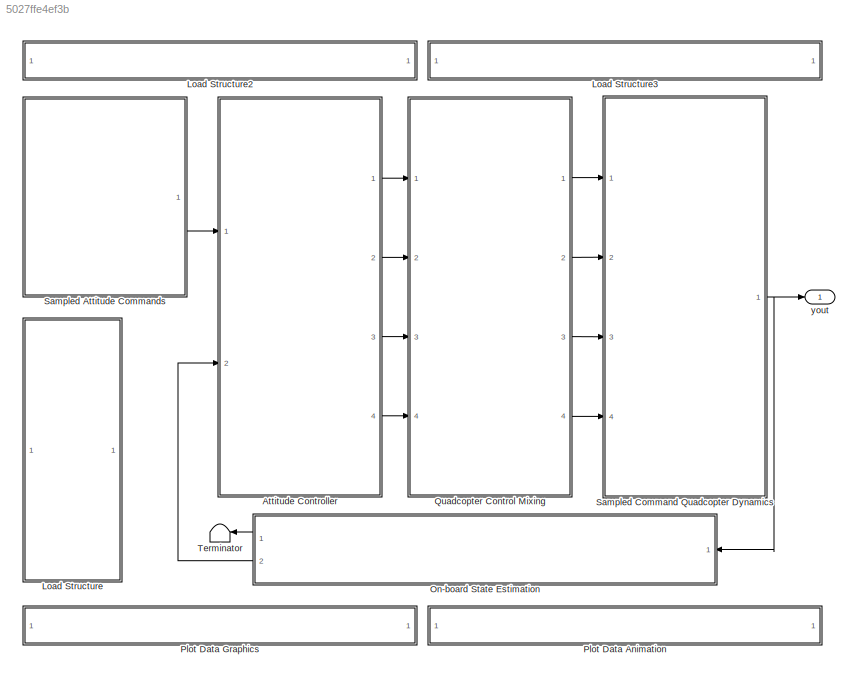
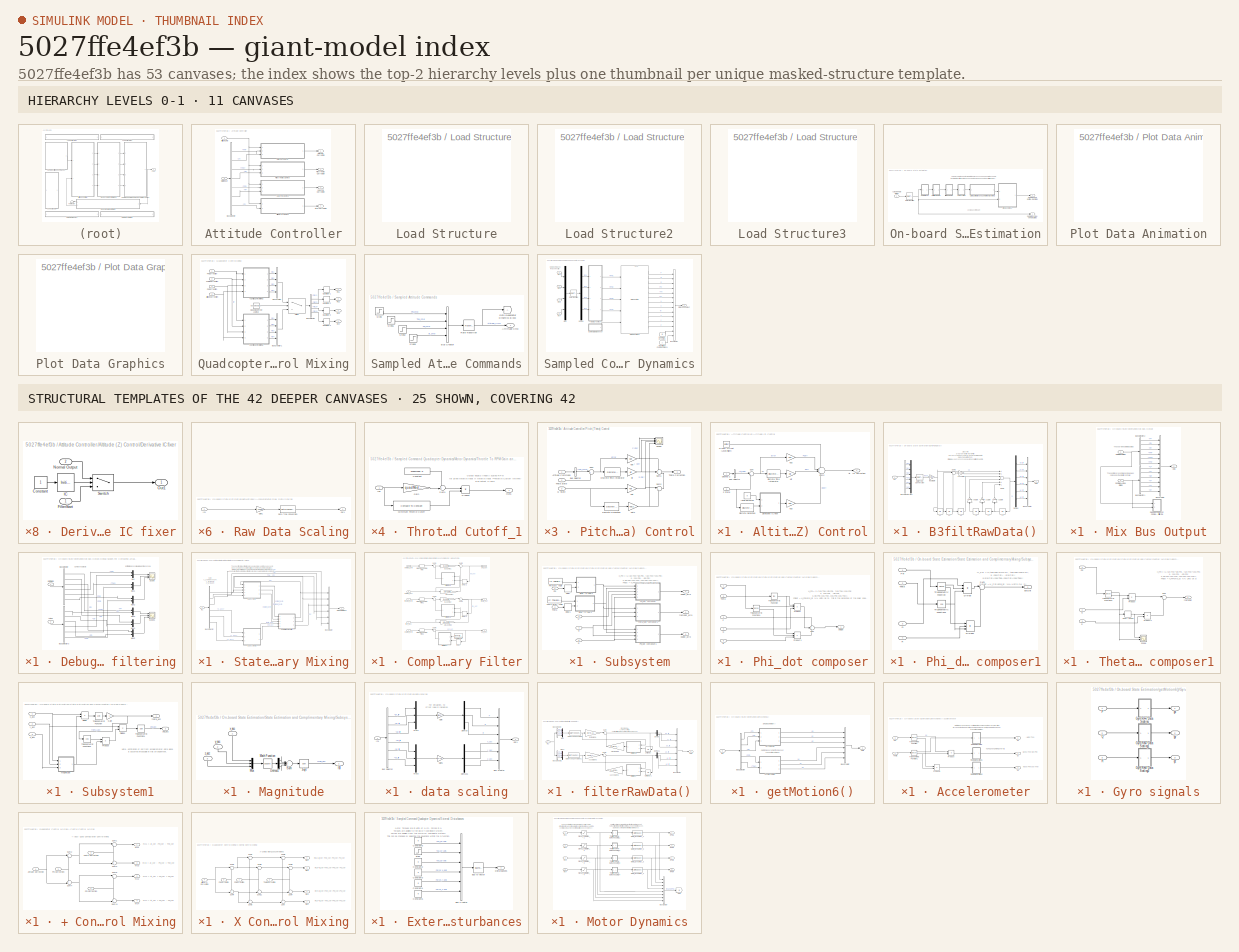
[diagram: thumbnail index - top-2 hierarchy levels (11 canvases) + 25 structural-template representatives of the remaining 42 canvases]
MODEL slx_5027ffe4ef3b
KIND model
WORKSPACE source: MAT-file member
WORKSPACE MCOS: class17 (value not decoded)
BLOCK [SubSystem] Attitude Controller
  FunctionWithSeparateData = off
  MaskHideContents = off
  MinAlgLoopOccurrences = off
  Opaque = off
  Ports = [2, 4]
  PropExecContextOutsideSubsystem = off
  RTWSystemCode = Auto
  RequestExecContextInheritance = off
BLOCK [Outport] Attitude Controller/Alt. (Z) Correction
  IconDisplay = Port number
  Port = 4
BLOCK [SubSystem] Attitude Controller/Altitude (Z) Control
  FunctionWithSeparateData = off
  MaskHideContents = off
  MinAlgLoopOccurrences = off
  Opaque = off
  Ports = [2, 1]
  PropExecContextOutsideSubsystem = off
  RTWSystemCode = Auto
  RequestExecContextInheritance = off
BLOCK [Outport] Attitude Controller/Altitude (Z) Control/Alt. (Z) Correction
  IconDisplay = Port number
BLOCK [BusSelector] Attitude Controller/Altitude (Z) Control/Bus Selector
  OutputSignals = Alt_cmd
  Ports = [1, 1]
BLOCK [SubSystem] Attitude Controller/Altitude (Z) Control/Derivative IC fixer
  FunctionWithSeparateData = off
  MaskHideContents = off
  MinAlgLoopOccurrences = off
  Opaque = off
  Ports = [2, 1]
  PropExecContextOutsideSubsystem = off
  RTWSystemCode = Auto
  RequestExecContextInheritance = off
BLOCK [Constant] Attitude Controller/Altitude (Z) Control/Derivative IC fixer/Constant
BLOCK [Inport] Attitude Controller/Altitude (Z) Control/Derivative IC fixer/FilterStart
  IconDisplay = Port number
BLOCK [InitialCondition] Attitude Controller/Altitude (Z) Control/Derivative IC fixer/IC
  Value = 0
BLOCK [Inport] Attitude Controller/Altitude (Z) Control/Derivative IC fixer/Normal Output
  IconDisplay = Port number
  Port = 2
BLOCK [Outport] Attitude Controller/Altitude (Z) Control/Derivative IC fixer/Out1
  IconDisplay = Port number
BLOCK [Switch] Attitude Controller/Altitude (Z) Control/Derivative IC fixer/Switch
  Criteria = u2 ~= 0
  InputSameDT = off
  SaturateOnIntegerOverflow = off
BLOCK [Inport] Attitude Controller/Altitude (Z) Control/Desired Z
  IconDisplay = Port number
BLOCK [Reference] Attitude Controller/Altitude (Z) Control/Discrete Derivative  REF=simulink/Discrete/Discrete Derivative
  DoSatur = off
  ICPrevScaledInput = 0.0
  InputProcessing = Inherited
  LockScale = off
  OutDataType = fixdt(1, 16)
  OutDataTypeStr = Inherit: Inherit via internal rule
  OutMax = []
  OutMin = []
  OutScaling = 2^-10
  OutputDataTypeScalingMode = Inherit via internal rule
  Ports = [1, 1]
  RndMeth = Floor
  SourceBlock = simulink/Discrete/Discrete Derivative
  SourceType = Discrete Derivative
  gainval = 1.0
BLOCK [DiscreteIntegrator] Attitude Controller/Altitude (Z) Control/Discrete-Time Integrator
  ICPrevOutput = DiscIntNeverNeededParam
  ICPrevScaledInput = DiscIntNeverNeededParam
  IntegratorMethod = Integration: Backward Euler
  LimitOutput = on
  LowerSaturationLimit = LSat
  Ports = [1, 1]
  SampleTime = -1
  UpperSaturationLimit = USat
BLOCK [Constant] Attitude Controller/Altitude (Z) Control/Gravity Offset (Level Flight)
  Value = GOffset
BLOCK [Constant] Attitude Controller/Altitude (Z) Control/Initial Derivative
  Value = 0
BLOCK [Gain] Attitude Controller/Altitude (Z) Control/Kdz
  Gain = Kdz
  OutDataTypeStr = Inherit: Inherit via internal rule
  ParamDataTypeStr = Inherit: Inherit via internal rule
  SaturateOnIntegerOverflow = off
BLOCK [Gain] Attitude Controller/Altitude (Z) Control/Kiz
  Gain = Kiz
  OutDataTypeStr = Inherit: Inherit via internal rule
  ParamDataTypeStr = Inherit: Inherit via internal rule
  SaturateOnIntegerOverflow = off
BLOCK [Gain] Attitude Controller/Altitude (Z) Control/Kpz
  Gain = Kpz
  OutDataTypeStr = Inherit: Inherit via internal rule
  ParamDataTypeStr = Inherit: Inherit via internal rule
  SaturateOnIntegerOverflow = off
BLOCK [Sum] Attitude Controller/Altitude (Z) Control/Sum
  IconShape = round
  InputSameDT = off
  Inputs = |+-
  OutDataTypeStr = Inherit: Inherit via internal rule
  Ports = [2, 1]
  SaturateOnIntegerOverflow = off
BLOCK [Sum] Attitude Controller/Altitude (Z) Control/Sum2
  IconShape = round
  InputSameDT = off
  Inputs = +++-
  OutDataTypeStr = Inherit: Inherit via internal rule
  Ports = [4, 1]
  SaturateOnIntegerOverflow = off
BLOCK [Inport] Attitude Controller/Altitude (Z) Control/Z State
  IconDisplay = Port number
  Port = 2
BLOCK [Inport] Attitude Controller/Attitude Cmd
  IconDisplay = Port number
BLOCK [BusSelector] Attitude Controller/Bus Selector
  OutputSignals = Phi,P,The,Q,Psi,R,Z
  Ports = [1, 7]
BLOCK [SubSystem] Attitude Controller/Pitch (Theta) Control
  FunctionWithSeparateData = off
  MaskHideContents = off
  MinAlgLoopOccurrences = off
  Opaque = off
  Ports = [3, 1]
  PropExecContextOutsideSubsystem = off
  RTWSystemCode = Auto
  RequestExecContextInheritance = off
BLOCK [Inport] Attitude Controller/Pitch (Theta) Control/Attitude Command
  IconDisplay = Port number
BLOCK [BusSelector] Attitude Controller/Pitch (Theta) Control/Bus Selector
  OutputSignals = The_cmd
  Ports = [1, 1]
BLOCK [Reference] Attitude Controller/Pitch (Theta) Control/Discrete Derivative  REF=simulink/Discrete/Discrete Derivative
  DoSatur = off
  ICPrevScaledInput = 0.0
  InputProcessing = Inherited
  LockScale = off
  OutDataType = fixdt(1, 16)
  OutDataTypeStr = Inherit: Inherit via internal rule
  OutMax = []
  OutMin = []
  OutScaling = 2^-10
  OutputDataTypeScalingMode = Inherit via internal rule
  Ports = [1, 1]
  RndMeth = Floor
  SourceBlock = simulink/Discrete/Discrete Derivative
  SourceType = Discrete Derivative
  gainval = 1.0
BLOCK [DiscreteIntegrator] Attitude Controller/Pitch (Theta) Control/Discrete-Time Integrator
  ICPrevOutput = DiscIntNeverNeededParam
  ICPrevScaledInput = DiscIntNeverNeededParam
  IntegratorMethod = Integration: Backward Euler
  LimitOutput = on
  LowerSaturationLimit = LSat
  Ports = [1, 1]
  SampleTime = -1
  UpperSaturationLimit = USat
BLOCK [Gain] Attitude Controller/Pitch (Theta) Control/Kdt
  Gain = Kdt
  OutDataTypeStr = Inherit: Inherit via internal rule
  ParamDataTypeStr = Inherit: Inherit via internal rule
  SaturateOnIntegerOverflow = off
BLOCK [Gain] Attitude Controller/Pitch (Theta) Control/Kdt2
  Gain = Kdt2
  OutDataTypeStr = Inherit: Inherit via internal rule
  ParamDataTypeStr = Inherit: Inherit via internal rule
  SaturateOnIntegerOverflow = off
BLOCK [Gain] Attitude Controller/Pitch (Theta) Control/Kit
  Gain = Kit
  OutDataTypeStr = Inherit: Inherit via internal rule
  ParamDataTypeStr = Inherit: Inherit via internal rule
  SaturateOnIntegerOverflow = off
BLOCK [Gain] Attitude Controller/Pitch (Theta) Control/Kpt
  Gain = Kpt
  OutDataTypeStr = Inherit: Inherit via internal rule
  ParamDataTypeStr = Inherit: Inherit via internal rule
  SaturateOnIntegerOverflow = off
BLOCK [Inport] Attitude Controller/Pitch (Theta) Control/Q State
  IconDisplay = Port number
  Port = 3
BLOCK [Scope] Attitude Controller/Pitch (Theta) Control/Scope
  DataFormat = StructureWithTime
  Floating = off
  LegendLocations = 0.92877     0.94234    0.051435    0.021852\n0.93155     0.70326    0.048657    0.021852\n0.92877      0.4654    0.051435    0.021852\n0.93363     0.22632    0.046574    0.021852
  LimitDataPoints = off
  NumInputPorts = 4
  Ports = [4]
  SampleTime = 0
  SaveName = ScopeData2
  ShowLegends = on
  YMax = -0.025~0.1075~0.25~0.3
  YMin = -0.12~0.0775~-0.125~-0.4
  ZoomMode = xonly
BLOCK [Sum] Attitude Controller/Pitch (Theta) Control/Sum
  IconShape = round
  InputSameDT = off
  Inputs = |+-
  OutDataTypeStr = Inherit: Inherit via internal rule
  Ports = [2, 1]
  SaturateOnIntegerOverflow = off
BLOCK [Sum] Attitude Controller/Pitch (Theta) Control/Sum1
  IconShape = round
  InputSameDT = off
  Inputs = ++-
  OutDataTypeStr = Inherit: Inherit via internal rule
  Ports = [3, 1]
  SaturateOnIntegerOverflow = off
BLOCK [Sum] Attitude Controller/Pitch (Theta) Control/Sum2
  IconShape = round
  InputSameDT = off
  Inputs = |++
  OutDataTypeStr = Inherit: Inherit via internal rule
  Ports = [2, 1]
  SaturateOnIntegerOverflow = off
BLOCK [Outport] Attitude Controller/Pitch (Theta) Control/Theta Correction
  IconDisplay = Port number
BLOCK [Inport] Attitude Controller/Pitch (Theta) Control/Theta State
  IconDisplay = Port number
  Port = 2
BLOCK [Outport] Attitude Controller/Pitch (Theta) Correction
  IconDisplay = Port number
  Port = 2
BLOCK [SubSystem] Attitude Controller/Roll (Phi) Control 
  FunctionWithSeparateData = off
  MaskHideContents = off
  MinAlgLoopOccurrences = off
  Opaque = off
  Ports = [3, 1]
  PropExecContextOutsideSubsystem = off
  RTWSystemCode = Auto
  RequestExecContextInheritance = off
BLOCK [Inport] Attitude Controller/Roll (Phi) Control /Attitude Command 
  IconDisplay = Port number
BLOCK [BusSelector] Attitude Controller/Roll (Phi) Control /Bus Selector
  OutputSignals = Phi_cmd
  Ports = [1, 1]
BLOCK [Reference] Attitude Controller/Roll (Phi) Control /Discrete Derivative  REF=simulink/Discrete/Discrete Derivative
  DoSatur = off
  ICPrevScaledInput = 0.0
  InputProcessing = Inherited
  LockScale = off
  OutDataType = fixdt(1, 16)
  OutDataTypeStr = Inherit: Inherit via internal rule
  OutMax = []
  OutMin = []
  OutScaling = 2^-10
  OutputDataTypeScalingMode = Inherit via internal rule
  Ports = [1, 1]
  RndMeth = Floor
  SourceBlock = simulink/Discrete/Discrete Derivative
  SourceType = Discrete Derivative
  gainval = 1.0
BLOCK [DiscreteIntegrator] Attitude Controller/Roll (Phi) Control /Discrete-Time Integrator
  ICPrevOutput = DiscIntNeverNeededParam
  ICPrevScaledInput = DiscIntNeverNeededParam
  IntegratorMethod = Integration: Backward Euler
  LimitOutput = on
  LowerSaturationLimit = LSat
  Ports = [1, 1]
  SampleTime = -1
  UpperSaturationLimit = USat
BLOCK [Gain] Attitude Controller/Roll (Phi) Control /Kdp
  Gain = Kdp
  OutDataTypeStr = Inherit: Inherit via internal rule
  ParamDataTypeStr = Inherit: Inherit via internal rule
  SaturateOnIntegerOverflow = off
BLOCK [Gain] Attitude Controller/Roll (Phi) Control /Kdp2
  Gain = Kdp2
  OutDataTypeStr = Inherit: Inherit via internal rule
  ParamDataTypeStr = Inherit: Inherit via internal rule
  SaturateOnIntegerOverflow = off
BLOCK [Gain] Attitude Controller/Roll (Phi) Control /Kip
  Gain = Kip
  OutDataTypeStr = Inherit: Inherit via internal rule
  ParamDataTypeStr = Inherit: Inherit via internal rule
  SaturateOnIntegerOverflow = off
BLOCK [Gain] Attitude Controller/Roll (Phi) Control /Kpp
  Gain = Kpp
  OutDataTypeStr = Inherit: Inherit via internal rule
  ParamDataTypeStr = Inherit: Inherit via internal rule
  SaturateOnIntegerOverflow = off
BLOCK [Inport] Attitude Controller/Roll (Phi) Control /P
  IconDisplay = Port number
  Port = 3
BLOCK [Outport] Attitude Controller/Roll (Phi) Control /Phi Correction
  IconDisplay = Port number
BLOCK [Inport] Attitude Controller/Roll (Phi) Control /Phi State
  IconDisplay = Port number
  Port = 2
BLOCK [Scope] Attitude Controller/Roll (Phi) Control /Scope
  DataFormat = StructureWithTime
  Floating = off
  LimitDataPoints = off
  NumInputPorts = 3
  Ports = [3]
  SampleTime = 0
  ShowLegends = on
  YMax = 5~5~5
  YMin = -5~-5~-5
BLOCK [Sum] Attitude Controller/Roll (Phi) Control /Sum
  IconShape = round
  InputSameDT = off
  Inputs = |+-
  OutDataTypeStr = Inherit: Inherit via internal rule
  Ports = [2, 1]
  SaturateOnIntegerOverflow = off
BLOCK [Sum] Attitude Controller/Roll (Phi) Control /Sum1
  IconShape = round
  InputSameDT = off
  Inputs = ++-
  OutDataTypeStr = Inherit: Inherit via internal rule
  Ports = [3, 1]
  SaturateOnIntegerOverflow = off
BLOCK [Sum] Attitude Controller/Roll (Phi) Control /Sum2
  IconShape = round
  InputSameDT = off
  Inputs = |++
  OutDataTypeStr = Inherit: Inherit via internal rule
  Ports = [2, 1]
  SaturateOnIntegerOverflow = off
BLOCK [Outport] Attitude Controller/Roll (Phi) Correction
  IconDisplay = Port number
BLOCK [Inport] Attitude Controller/State Input
  IconDisplay = Port number
  Port = 2
BLOCK [SubSystem] Attitude Controller/Yaw (Psi) Control
  FunctionWithSeparateData = off
  MaskHideContents = off
  MinAlgLoopOccurrences = off
  Opaque = off
  Ports = [3, 1]
  PropExecContextOutsideSubsystem = off
  RTWSystemCode = Auto
  RequestExecContextInheritance = off
BLOCK [Inport] Attitude Controller/Yaw (Psi) Control/Attitude Command
  IconDisplay = Port number
BLOCK [BusSelector] Attitude Controller/Yaw (Psi) Control/Bus Selector
  OutputSignals = Psi_cmd
  Ports = [1, 1]
BLOCK [Reference] Attitude Controller/Yaw (Psi) Control/Discrete Derivative  REF=simulink/Discrete/Discrete Derivative
  DoSatur = off
  ICPrevScaledInput = 0.0
  InputProcessing = Inherited
  LockScale = off
  OutDataType = fixdt(1, 16)
  OutDataTypeStr = Inherit: Inherit via internal rule
  OutMax = []
  OutMin = []
  OutScaling = 2^-10
  OutputDataTypeScalingMode = Inherit via internal rule
  Ports = [1, 1]
  RndMeth = Floor
  SourceBlock = simulink/Discrete/Discrete Derivative
  SourceType = Discrete Derivative
  gainval = 1.0
BLOCK [DiscreteIntegrator] Attitude Controller/Yaw (Psi) Control/Discrete-Time Integrator
  ICPrevOutput = DiscIntNeverNeededParam
  ICPrevScaledInput = DiscIntNeverNeededParam
  IntegratorMethod = Integration: Backward Euler
  LimitOutput = on
  LowerSaturationLimit = LSat
  Ports = [1, 1]
  SampleTime = -1
  UpperSaturationLimit = USat
BLOCK [Gain] Attitude Controller/Yaw (Psi) Control/Kds
  Gain = Kds
  OutDataTypeStr = Inherit: Inherit via internal rule
  ParamDataTypeStr = Inherit: Inherit via internal rule
  SaturateOnIntegerOverflow = off
BLOCK [Gain] Attitude Controller/Yaw (Psi) Control/Kds2
  Gain = Kds2
  OutDataTypeStr = Inherit: Inherit via internal rule
  ParamDataTypeStr = Inherit: Inherit via internal rule
  SaturateOnIntegerOverflow = off
BLOCK [Gain] Attitude Controller/Yaw (Psi) Control/Kit
  Gain = Kis
  OutDataTypeStr = Inherit: Inherit via internal rule
  ParamDataTypeStr = Inherit: Inherit via internal rule
  SaturateOnIntegerOverflow = off
BLOCK [Gain] Attitude Controller/Yaw (Psi) Control/Kps
  Gain = Kps
  OutDataTypeStr = Inherit: Inherit via internal rule
  ParamDataTypeStr = Inherit: Inherit via internal rule
  SaturateOnIntegerOverflow = off
BLOCK [Outport] Attitude Controller/Yaw (Psi) Control/Psi Correction
  IconDisplay = Port number
BLOCK [Inport] Attitude Controller/Yaw (Psi) Control/Psi State
  IconDisplay = Port number
  Port = 2
BLOCK [Inport] Attitude Controller/Yaw (Psi) Control/R State
  IconDisplay = Port number
  Port = 3
BLOCK [Scope] Attitude Controller/Yaw (Psi) Control/Scope
  DataFormat = StructureWithTime
  Floating = off
  LegendLocations = 0.92877     0.94234    0.051435    0.021852\n0.93155     0.70326    0.048657    0.021852\n0.93641      0.4654    0.043796    0.021852\n0.93224     0.22632    0.047963    0.021852
  LimitDataPoints = off
  NumInputPorts = 4
  Ports = [4]
  SampleTime = 0
  SaveName = ScopeData1
  ShowLegends = on
  YMax = 0.65~0.004~0.00045~0.006
  YMin = 0~0~0~0
BLOCK [Sum] Attitude Controller/Yaw (Psi) Control/Sum
  IconShape = round
  InputSameDT = off
  Inputs = |+-
  OutDataTypeStr = Inherit: Inherit via internal rule
  Ports = [2, 1]
  SaturateOnIntegerOverflow = off
BLOCK [Sum] Attitude Controller/Yaw (Psi) Control/Sum1
  IconShape = round
  InputSameDT = off
  Inputs = ++-
  OutDataTypeStr = Inherit: Inherit via internal rule
  Ports = [3, 1]
  SaturateOnIntegerOverflow = off
BLOCK [Sum] Attitude Controller/Yaw (Psi) Control/Sum2
  IconShape = round
  InputSameDT = off
  Inputs = ++|
  OutDataTypeStr = Inherit: Inherit via internal rule
  Ports = [2, 1]
  SaturateOnIntegerOverflow = off
BLOCK [Outport] Attitude Controller/Yaw (Psi) Correction
  IconDisplay = Port number
  Port = 3
BLOCK [SubSystem] Load Structure
  FunctionWithSeparateData = off
  MaskHideContents = off
  MinAlgLoopOccurrences = off
  Opaque = off
  OpenFcn = uiopen('load')                                  \nif (exist('IC')==1 && exist('quadModel')==1)    \nset_param(bdroot, 'SimulationCommand', 'update')\nend
  Ports = []
  PropExecContextOutsideSubsystem = off
  RTWSystemCode = Auto
  RequestExecContextInheritance = off
  ShowPortLabels = FromPortBlockName
BLOCK [SubSystem] Load Structure2
  FunctionWithSeparateData = off
  MaskHideContents = off
  MinAlgLoopOccurrences = off
  Opaque = off
  OpenFcn = if exist('GUI_Modeling') == 2,                                \nrun('GUI_Modeling')                                           \n                                                              \nelse                                                          \n                                                              \nmsgbox('The desired GUI must be first added to MATLABs path.')\n                      ...<+44ch>
  Ports = []
  PropExecContextOutsideSubsystem = off
  RTWSystemCode = Auto
  RequestExecContextInheritance = off
  ShowPortLabels = none
BLOCK [SubSystem] Load Structure3
  FunctionWithSeparateData = off
  MaskHideContents = off
  MinAlgLoopOccurrences = off
  Opaque = off
  OpenFcn = if exist('GUI_IC') == 2,                                      \nrun('GUI_IC')                                                 \n                                                              \nelse                                                          \n                                                              \nmsgbox('The desired GUI must be first added to MATLABs path.')\n                      ...<+44ch>
  Ports = []
  PropExecContextOutsideSubsystem = off
  RTWSystemCode = Auto
  RequestExecContextInheritance = off
  ShowPortLabels = none
BLOCK [SubSystem] On-board State Estimation
  FunctionWithSeparateData = off
  MaskHideContents = off
  MinAlgLoopOccurrences = off
  Opaque = off
  Ports = [1, 2]
  PropExecContextOutsideSubsystem = off
  RTWSystemCode = Auto
  RequestExecContextInheritance = off
BLOCK [Inport] On-board State Estimation/Actual Vehicle States
  IconDisplay = Port number
BLOCK [SubSystem] On-board State Estimation/B3filtRawData()
  FunctionWithSeparateData = off
  MaskHideContents = off
  MinAlgLoopOccurrences = off
  Opaque = off
  Ports = [1, 1]
  PropExecContextOutsideSubsystem = off
  RTWSystemCode = Auto
  RequestExecContextInheritance = off
BLOCK [BusCreator] On-board State Estimation/B3filtRawData()/Bus Creator
  DisplayOption = bar
  Inputs = 6
  Ports = [6, 1]
BLOCK [BusSelector] On-board State Estimation/B3filtRawData()/Bus Selector
  OutputSignals = gx,gy,gz,ax,ay,az
  Ports = [1, 6]
BLOCK [DataTypeConversion] On-board State Estimation/B3filtRawData()/Data Type Conversion
  OutDataTypeStr = double
  RndMeth = Nearest
  SaturateOnIntegerOverflow = off
BLOCK [Demux] On-board State Estimation/B3filtRawData()/Demux
  DisplayOption = bar
  Outputs = 6
  Ports = [1, 6]
BLOCK [Inport] On-board State Estimation/B3filtRawData()/In1
  IconDisplay = Port number
BLOCK [Gain] On-board State Estimation/B3filtRawData()/InputGain
  Gain = inputGain
  OutDataTypeStr = Inherit: Inherit via internal rule
  ParamDataTypeStr = Inherit: Inherit via internal rule
  SaturateOnIntegerOverflow = off
BLOCK [Mux] On-board State Estimation/B3filtRawData()/Mux
  DisplayOption = bar
  Inputs = 6
  Ports = [6, 1]
BLOCK [Outport] On-board State Estimation/B3filtRawData()/Out1
  IconDisplay = Port number
BLOCK [Sum] On-board State Estimation/B3filtRawData()/Sum1
  InputSameDT = off
  Inputs = ++++++
  OutDataTypeStr = Inherit: Inherit via internal rule
  Ports = [6, 1]
  SaturateOnIntegerOverflow = off
BLOCK [Sum] On-board State Estimation/B3filtRawData()/Sum2
  IconShape = round
  InputSameDT = off
  Inputs = |++
  OutDataTypeStr = Inherit: Inherit via internal rule
  Ports = [2, 1]
  SaturateOnIntegerOverflow = off
BLOCK [UnitDelay] On-board State Estimation/B3filtRawData()/x0
  SampleTime = -1
BLOCK [UnitDelay] On-board State Estimation/B3filtRawData()/x1
  SampleTime = -1
BLOCK [Gain] On-board State Estimation/B3filtRawData()/x1x2Gain
  Gain = x1x2Gain
  OutDataTypeStr = Inherit: Inherit via internal rule
  ParamDataTypeStr = Inherit: Inherit via internal rule
  SaturateOnIntegerOverflow = off
BLOCK [UnitDelay] On-board State Estimation/B3filtRawData()/x2
  SampleTime = -1
BLOCK [UnitDelay] On-board State Estimation/B3filtRawData()/y0
  SampleTime = -1
BLOCK [Gain] On-board State Estimation/B3filtRawData()/y0Gain
  Gain = y0Gain
  OutDataTypeStr = Inherit: Inherit via internal rule
  ParamDataTypeStr = Inherit: Inherit via internal rule
  SaturateOnIntegerOverflow = off
BLOCK [UnitDelay] On-board State Estimation/B3filtRawData()/y1
  SampleTime = -1
BLOCK [Gain] On-board State Estimation/B3filtRawData()/y1Gain
  Gain = y1Gain
  OutDataTypeStr = Inherit: Inherit via internal rule
  ParamDataTypeStr = Inherit: Inherit via internal rule
  SaturateOnIntegerOverflow = off
BLOCK [UnitDelay] On-board State Estimation/B3filtRawData()/y2
  SampleTime = -1
BLOCK [Gain] On-board State Estimation/B3filtRawData()/y2Gain
  Gain = y2Gain
  OutDataTypeStr = Inherit: Inherit via internal rule
  ParamDataTypeStr = Inherit: Inherit via internal rule
  SaturateOnIntegerOverflow = off
BLOCK [SubSystem] On-board State Estimation/Mix Bus Output
  FunctionWithSeparateData = off
  MaskHideContents = off
  MinAlgLoopOccurrences = off
  Opaque = off
  Ports = [2, 1]
  PropExecContextOutsideSubsystem = off
  RTWSystemCode = Auto
  RequestExecContextInheritance = off
BLOCK [BusCreator] On-board State Estimation/Mix Bus Output/Bus Creator
  DisplayOption = bar
  Inputs = 12
  Ports = [12, 1]
BLOCK [BusSelector] On-board State Estimation/Mix Bus Output/Bus Selector1
  OutputSignals = U,V,W,X,Y,Z
  Ports = [1, 6]
BLOCK [BusSelector] On-board State Estimation/Mix Bus Output/Bus Selector2
  OutputSignals = P,Q,R,Phi,The,Psi
  Ports = [1, 6]
BLOCK [SubSystem] On-board State Estimation/Mix Bus Output/Debug Scopes For Comparing Actual Versus Estimated Outputs This illustrates some of the effects from filtering
  FunctionWithSeparateData = off
  MaskHideContents = off
  MinAlgLoopOccurrences = off
  Opaque = off
  Ports = [2]
  PropExecContextOutsideSubsystem = off
  RTWSystemCode = Auto
  RequestExecContextInheritance = off
BLOCK [Inport] On-board State Estimation/Mix Bus Output/Debug Scopes For Comparing Actual Versus Estimated Outputs This illustrates some of the effects from filtering/Actual
  IconDisplay = Port number
  Port = 2
BLOCK [BusSelector] On-board State Estimation/Mix Bus Output/Debug Scopes For Comparing Actual Versus Estimated Outputs This illustrates some of the effects from filtering/Bus Selector
  OutputSignals = P,Q,R,Phi,The,Psi
  Ports = [1, 6]
BLOCK [BusSelector] On-board State Estimation/Mix Bus Output/Debug Scopes For Comparing Actual Versus Estimated Outputs This illustrates some of the effects from filtering/Bus Selector3
  OutputSignals = P,Q,R,Phi,The,Psi
  Ports = [1, 6]
BLOCK [Inport] On-board State Estimation/Mix Bus Output/Debug Scopes For Comparing Actual Versus Estimated Outputs This illustrates some of the effects from filtering/Estimated
  IconDisplay = Port number
BLOCK [Mux] On-board State Estimation/Mix Bus Output/Debug Scopes For Comparing Actual Versus Estimated Outputs This illustrates some of the effects from filtering/Mux
  DisplayOption = bar
  Inputs = 2
  Ports = [2, 1]
BLOCK [Mux] On-board State Estimation/Mix Bus Output/Debug Scopes For Comparing Actual Versus Estimated Outputs This illustrates some of the effects from filtering/Mux1
  DisplayOption = bar
  Inputs = 2
  Ports = [2, 1]
BLOCK [Mux] On-board State Estimation/Mix Bus Output/Debug Scopes For Comparing Actual Versus Estimated Outputs This illustrates some of the effects from filtering/Mux2
  DisplayOption = bar
  Inputs = 2
  Ports = [2, 1]
BLOCK [Mux] On-board State Estimation/Mix Bus Output/Debug Scopes For Comparing Actual Versus Estimated Outputs This illustrates some of the effects from filtering/Mux3
  DisplayOption = bar
  Inputs = 2
  Ports = [2, 1]
BLOCK [Mux] On-board State Estimation/Mix Bus Output/Debug Scopes For Comparing Actual Versus Estimated Outputs This illustrates some of the effects from filtering/Mux4
  DisplayOption = bar
  Inputs = 2
  Ports = [2, 1]
BLOCK [Mux] On-board State Estimation/Mix Bus Output/Debug Scopes For Comparing Actual Versus Estimated Outputs This illustrates some of the effects from filtering/Mux5
  DisplayOption = bar
  Inputs = 2
  Ports = [2, 1]
BLOCK [Scope] On-board State Estimation/Mix Bus Output/Debug Scopes For Comparing Actual Versus Estimated Outputs This illustrates some of the effects from filtering/Scope
  DataFormat = StructureWithTime
  Floating = off
  NumInputPorts = 3
  Ports = [3]
  SampleTime = 0
  SaveName = ScopeData13
  ShowLegends = on
  YMax = -0.11~-0.08~-0.089
  YMin = -0.25~-0.17~-0.103
  ZoomMode = yonly
BLOCK [Scope] On-board State Estimation/Mix Bus Output/Debug Scopes For Comparing Actual Versus Estimated Outputs This illustrates some of the effects from filtering/Scope1
  DataFormat = StructureWithTime
  Floating = off
  NumInputPorts = 3
  Ports = [3]
  SampleTime = 0
  SaveName = ScopeData15
  ShowLegends = on
  YMax = 5~5~5
  YMin = -5~-5~-5
  ZoomMode = yonly
BLOCK [Inport] On-board State Estimation/Mix Bus Output/Estimated States
  IconDisplay = Port number
BLOCK [Outport] On-board State Estimation/Mix Bus Output/Out1
  IconDisplay = Port number
BLOCK [Inport] On-board State Estimation/Mix Bus Output/Sampled Actual States
  IconDisplay = Port number
  Port = 2
BLOCK [RateTransition] On-board State Estimation/Rate Transition
  Deterministic = off
  OutPortSampleTime = ControllerSampleTime
BLOCK [Outport] On-board State Estimation/Sampled Actual Vehicle States
  IconDisplay = Port number
BLOCK [Outport] On-board State Estimation/Sampled and Estimated Vehicle States
  IconDisplay = Port number
  Port = 2
BLOCK [SubSystem] On-board State Estimation/State Estimation and Complimentary Mixing
  FunctionWithSeparateData = off
  MaskHideContents = off
  MinAlgLoopOccurrences = off
  Opaque = off
  Ports = [1, 1]
  PropExecContextOutsideSubsystem = off
  RTWSystemCode = Auto
  RequestExecContextInheritance = off
BLOCK [BusCreator] On-board State Estimation/State Estimation and Complimentary Mixing/Bus Creator
  DisplayOption = bar
  Inputs = 6
  Ports = [6, 1]
BLOCK [BusSelector] On-board State Estimation/State Estimation and Complimentary Mixing/Bus Selector
  OutputSignals = P,Q,R,x_acc,y_acc,z_acc
  Ports = [1, 6]
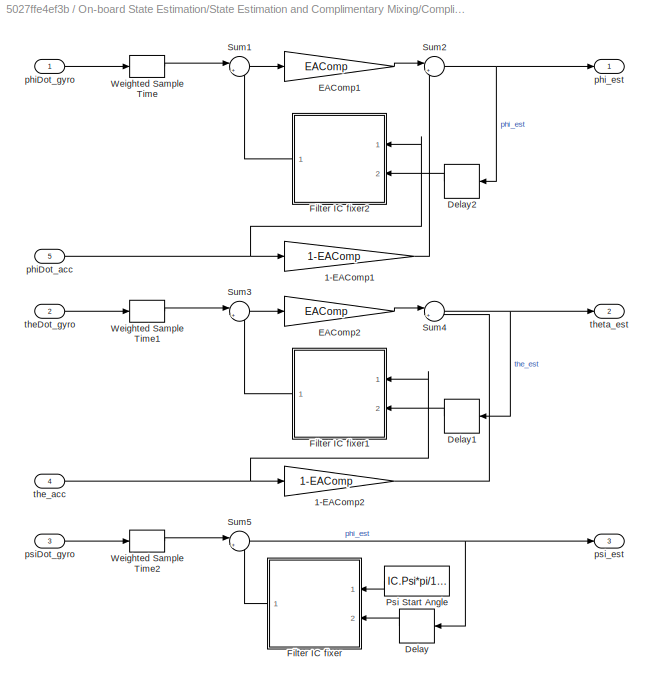
BLOCK [SubSystem] On-board State Estimation/State Estimation and Complimentary Mixing/Complimentary Filter
  FunctionWithSeparateData = off
  MaskHideContents = off
  MinAlgLoopOccurrences = off
  Opaque = off
  Ports = [5, 3]
  PropExecContextOutsideSubsystem = off
  RTWSystemCode = Auto
  RequestExecContextInheritance = off
BLOCK [Gain] On-board State Estimation/State Estimation and Complimentary Mixing/Complimentary Filter/1-EAComp1
  Gain = 1-EAComp
  OutDataTypeStr = Inherit: Inherit via internal rule
  ParamDataTypeStr = Inherit: Inherit via internal rule
  SaturateOnIntegerOverflow = off
BLOCK [Gain] On-board State Estimation/State Estimation and Complimentary Mixing/Complimentary Filter/1-EAComp2
  Gain = 1-EAComp
  OutDataTypeStr = Inherit: Inherit via internal rule
  ParamDataTypeStr = Inherit: Inherit via internal rule
  SaturateOnIntegerOverflow = off
BLOCK [Delay] On-board State Estimation/State Estimation and Complimentary Mixing/Complimentary Filter/Delay
  DelayLength = 1
  InitialCondition = 0
  InputPortMap = u0
  Ports = [1, 1]
BLOCK [Delay] On-board State Estimation/State Estimation and Complimentary Mixing/Complimentary Filter/Delay1
  DelayLength = 1
  InitialCondition = 0
  InputPortMap = u0
  Ports = [1, 1]
BLOCK [Delay] On-board State Estimation/State Estimation and Complimentary Mixing/Complimentary Filter/Delay2
  DelayLength = 1
  InitialCondition = 0
  InputPortMap = u0
  Ports = [1, 1]
BLOCK [Gain] On-board State Estimation/State Estimation and Complimentary Mixing/Complimentary Filter/EAComp1
  Gain = EAComp
  OutDataTypeStr = Inherit: Inherit via internal rule
  ParamDataTypeStr = Inherit: Inherit via internal rule
  SaturateOnIntegerOverflow = off
BLOCK [Gain] On-board State Estimation/State Estimation and Complimentary Mixing/Complimentary Filter/EAComp2
  Gain = EAComp
  OutDataTypeStr = Inherit: Inherit via internal rule
  ParamDataTypeStr = Inherit: Inherit via internal rule
  SaturateOnIntegerOverflow = off
BLOCK [SubSystem] On-board State Estimation/State Estimation and Complimentary Mixing/Complimentary Filter/Filter IC fixer
  FunctionWithSeparateData = off
  MaskHideContents = off
  MinAlgLoopOccurrences = off
  Opaque = off
  Ports = [2, 1]
  PropExecContextOutsideSubsystem = off
  RTWSystemCode = Auto
  RequestExecContextInheritance = off
BLOCK [Constant] On-board State Estimation/State Estimation and Complimentary Mixing/Complimentary Filter/Filter IC fixer/Constant
BLOCK [Inport] On-board State Estimation/State Estimation and Complimentary Mixing/Complimentary Filter/Filter IC fixer/FilterStart
  IconDisplay = Port number
BLOCK [InitialCondition] On-board State Estimation/State Estimation and Complimentary Mixing/Complimentary Filter/Filter IC fixer/IC
  Value = 0
BLOCK [Inport] On-board State Estimation/State Estimation and Complimentary Mixing/Complimentary Filter/Filter IC fixer/Normal Output
  IconDisplay = Port number
  Port = 2
BLOCK [Outport] On-board State Estimation/State Estimation and Complimentary Mixing/Complimentary Filter/Filter IC fixer/Out1
  IconDisplay = Port number
BLOCK [Switch] On-board State Estimation/State Estimation and Complimentary Mixing/Complimentary Filter/Filter IC fixer/Switch
  Criteria = u2 ~= 0
  InputSameDT = off
  SampleTime = ControllerSampleTime
  SaturateOnIntegerOverflow = off
BLOCK [SubSystem] On-board State Estimation/State Estimation and Complimentary Mixing/Complimentary Filter/Filter IC fixer1
  FunctionWithSeparateData = off
  MaskHideContents = off
  MinAlgLoopOccurrences = off
  Opaque = off
  Ports = [2, 1]
  PropExecContextOutsideSubsystem = off
  RTWSystemCode = Auto
  RequestExecContextInheritance = off
BLOCK [Constant] On-board State Estimation/State Estimation and Complimentary Mixing/Complimentary Filter/Filter IC fixer1/Constant
BLOCK [Inport] On-board State Estimation/State Estimation and Complimentary Mixing/Complimentary Filter/Filter IC fixer1/FilterStart
  IconDisplay = Port number
BLOCK [InitialCondition] On-board State Estimation/State Estimation and Complimentary Mixing/Complimentary Filter/Filter IC fixer1/IC
  Value = 0
BLOCK [Inport] On-board State Estimation/State Estimation and Complimentary Mixing/Complimentary Filter/Filter IC fixer1/Normal Output
  IconDisplay = Port number
  Port = 2
BLOCK [Outport] On-board State Estimation/State Estimation and Complimentary Mixing/Complimentary Filter/Filter IC fixer1/Out1
  IconDisplay = Port number
BLOCK [Switch] On-board State Estimation/State Estimation and Complimentary Mixing/Complimentary Filter/Filter IC fixer1/Switch
  Criteria = u2 ~= 0
  InputSameDT = off
  SampleTime = ControllerSampleTime
  SaturateOnIntegerOverflow = off
BLOCK [SubSystem] On-board State Estimation/State Estimation and Complimentary Mixing/Complimentary Filter/Filter IC fixer2
  FunctionWithSeparateData = off
  MaskHideContents = off
  MinAlgLoopOccurrences = off
  Opaque = off
  Ports = [2, 1]
  PropExecContextOutsideSubsystem = off
  RTWSystemCode = Auto
  RequestExecContextInheritance = off
BLOCK [Constant] On-board State Estimation/State Estimation and Complimentary Mixing/Complimentary Filter/Filter IC fixer2/Constant
BLOCK [Inport] On-board State Estimation/State Estimation and Complimentary Mixing/Complimentary Filter/Filter IC fixer2/FilterStart
  IconDisplay = Port number
BLOCK [InitialCondition] On-board State Estimation/State Estimation and Complimentary Mixing/Complimentary Filter/Filter IC fixer2/IC
  Value = 0
BLOCK [Inport] On-board State Estimation/State Estimation and Complimentary Mixing/Complimentary Filter/Filter IC fixer2/Normal Output
  IconDisplay = Port number
  Port = 2
BLOCK [Outport] On-board State Estimation/State Estimation and Complimentary Mixing/Complimentary Filter/Filter IC fixer2/Out1
  IconDisplay = Port number
BLOCK [Switch] On-board State Estimation/State Estimation and Complimentary Mixing/Complimentary Filter/Filter IC fixer2/Switch
  Criteria = u2 ~= 0
  InputSameDT = off
  SampleTime = ControllerSampleTime
  SaturateOnIntegerOverflow = off
BLOCK [Constant] On-board State Estimation/State Estimation and Complimentary Mixing/Complimentary Filter/Psi Start Angle
  Value = IC.Psi*pi/180
BLOCK [Sum] On-board State Estimation/State Estimation and Complimentary Mixing/Complimentary Filter/Sum1
  IconShape = round
  InputSameDT = off
  Inputs = |++
  OutDataTypeStr = Inherit: Inherit via internal rule
  Ports = [2, 1]
  SaturateOnIntegerOverflow = off
BLOCK [Sum] On-board State Estimation/State Estimation and Complimentary Mixing/Complimentary Filter/Sum2
  IconShape = round
  InputSameDT = off
  Inputs = |++
  OutDataTypeStr = Inherit: Inherit via internal rule
  Ports = [2, 1]
  SaturateOnIntegerOverflow = off
BLOCK [Sum] On-board State Estimation/State Estimation and Complimentary Mixing/Complimentary Filter/Sum3
  IconShape = round
  InputSameDT = off
  Inputs = |++
  OutDataTypeStr = Inherit: Inherit via internal rule
  Ports = [2, 1]
  SaturateOnIntegerOverflow = off
BLOCK [Sum] On-board State Estimation/State Estimation and Complimentary Mixing/Complimentary Filter/Sum4
  IconShape = round
  InputSameDT = off
  Inputs = |++
  OutDataTypeStr = Inherit: Inherit via internal rule
  Ports = [2, 1]
  SaturateOnIntegerOverflow = off
BLOCK [Sum] On-board State Estimation/State Estimation and Complimentary Mixing/Complimentary Filter/Sum5
  IconShape = round
  InputSameDT = off
  Inputs = |++
  OutDataTypeStr = Inherit: Inherit via internal rule
  Ports = [2, 1]
  SaturateOnIntegerOverflow = off
BLOCK [SampleTimeMath] On-board State Estimation/State Estimation and Complimentary Mixing/Complimentary Filter/Weighted Sample Time
  TsampMathOp = *
BLOCK [SampleTimeMath] On-board State Estimation/State Estimation and Complimentary Mixing/Complimentary Filter/Weighted Sample Time1
  TsampMathOp = *
BLOCK [SampleTimeMath] On-board State Estimation/State Estimation and Complimentary Mixing/Complimentary Filter/Weighted Sample Time2
  TsampMathOp = *
BLOCK [Inport] On-board State Estimation/State Estimation and Complimentary Mixing/Complimentary Filter/phiDot_acc
  IconDisplay = Port number
  Port = 5
BLOCK [Inport] On-board State Estimation/State Estimation and Complimentary Mixing/Complimentary Filter/phiDot_gyro
  IconDisplay = Port number
BLOCK [Outport] On-board State Estimation/State Estimation and Complimentary Mixing/Complimentary Filter/phi_est
  IconDisplay = Port number
BLOCK [Inport] On-board State Estimation/State Estimation and Complimentary Mixing/Complimentary Filter/psiDot_gyro
  IconDisplay = Port number
  Port = 3
BLOCK [Outport] On-board State Estimation/State Estimation and Complimentary Mixing/Complimentary Filter/psi_est
  IconDisplay = Port number
  Port = 3
BLOCK [Inport] On-board State Estimation/State Estimation and Complimentary Mixing/Complimentary Filter/theDot_gyro
  IconDisplay = Port number
  Port = 2
BLOCK [Inport] On-board State Estimation/State Estimation and Complimentary Mixing/Complimentary Filter/the_acc
  IconDisplay = Port number
  Port = 4
BLOCK [Outport] On-board State Estimation/State Estimation and Complimentary Mixing/Complimentary Filter/theta_est
  IconDisplay = Port number
  Port = 2
BLOCK [Inport] On-board State Estimation/State Estimation and Complimentary Mixing/In1
  IconDisplay = Port number
BLOCK [Outport] On-board State Estimation/State Estimation and Complimentary Mixing/State Estimations
  IconDisplay = Port number
BLOCK [SubSystem] On-board State Estimation/State Estimation and Complimentary Mixing/Subsystem
  FunctionWithSeparateData = off
  MaskHideContents = off
  MinAlgLoopOccurrences = off
  Opaque = off
  Ports = [5, 3]
  PropExecContextOutsideSubsystem = off
  RTWSystemCode = Auto
  RequestExecContextInheritance = off
BLOCK [Delay] On-board State Estimation/State Estimation and Complimentary Mixing/Subsystem/Delay
  DelayLength = 1
  InitialCondition = 0
  InputPortMap = u0
  Ports = [1, 1]
BLOCK [Delay] On-board State Estimation/State Estimation and Complimentary Mixing/Subsystem/Delay1
  DelayLength = 1
  InitialCondition = 0
  InputPortMap = u0
  Ports = [1, 1]
BLOCK [SubSystem] On-board State Estimation/State Estimation and Complimentary Mixing/Subsystem/Filter IC fixer1
  FunctionWithSeparateData = off
  MaskHideContents = off
  MinAlgLoopOccurrences = off
  Opaque = off
  Ports = [2, 1]
  PropExecContextOutsideSubsystem = off
  RTWSystemCode = Auto
  RequestExecContextInheritance = off
BLOCK [Constant] On-board State Estimation/State Estimation and Complimentary Mixing/Subsystem/Filter IC fixer1/Constant
BLOCK [Inport] On-board State Estimation/State Estimation and Complimentary Mixing/Subsystem/Filter IC fixer1/FilterStart
  IconDisplay = Port number
BLOCK [InitialCondition] On-board State Estimation/State Estimation and Complimentary Mixing/Subsystem/Filter IC fixer1/IC
  Value = 0
BLOCK [Inport] On-board State Estimation/State Estimation and Complimentary Mixing/Subsystem/Filter IC fixer1/Normal Output
  IconDisplay = Port number
  Port = 2
BLOCK [Outport] On-board State Estimation/State Estimation and Complimentary Mixing/Subsystem/Filter IC fixer1/Out1
  IconDisplay = Port number
BLOCK [Switch] On-board State Estimation/State Estimation and Complimentary Mixing/Subsystem/Filter IC fixer1/Switch
  Criteria = u2 ~= 0
  InputSameDT = off
  SampleTime = ControllerSampleTime
  SaturateOnIntegerOverflow = off
BLOCK [SubSystem] On-board State Estimation/State Estimation and Complimentary Mixing/Subsystem/Filter IC fixer2
  FunctionWithSeparateData = off
  MaskHideContents = off
  MinAlgLoopOccurrences = off
  Opaque = off
  Ports = [2, 1]
  PropExecContextOutsideSubsystem = off
  RTWSystemCode = Auto
  RequestExecContextInheritance = off
BLOCK [Constant] On-board State Estimation/State Estimation and Complimentary Mixing/Subsystem/Filter IC fixer2/Constant
BLOCK [Inport] On-board State Estimation/State Estimation and Complimentary Mixing/Subsystem/Filter IC fixer2/FilterStart
  IconDisplay = Port number
BLOCK [InitialCondition] On-board State Estimation/State Estimation and Complimentary Mixing/Subsystem/Filter IC fixer2/IC
  Value = 0
BLOCK [Inport] On-board State Estimation/State Estimation and Complimentary Mixing/Subsystem/Filter IC fixer2/Normal Output
  IconDisplay = Port number
  Port = 2
BLOCK [Outport] On-board State Estimation/State Estimation and Complimentary Mixing/Subsystem/Filter IC fixer2/Out1
  IconDisplay = Port number
BLOCK [Switch] On-board State Estimation/State Estimation and Complimentary Mixing/Subsystem/Filter IC fixer2/Switch
  Criteria = u2 ~= 0
  InputSameDT = off
  SampleTime = ControllerSampleTime
  SaturateOnIntegerOverflow = off
BLOCK [Inport] On-board State Estimation/State Estimation and Complimentary Mixing/Subsystem/P
  IconDisplay = Port number
  Port = 3
BLOCK [Inport] On-board State Estimation/State Estimation and Complimentary Mixing/Subsystem/Phi
  IconDisplay = Port number
BLOCK [Constant] On-board State Estimation/State Estimation and Complimentary Mixing/Subsystem/Phi Start Angle
  Value = IC.Phi*pi/180
BLOCK [SubSystem] On-board State Estimation/State Estimation and Complimentary Mixing/Subsystem/Phi_dot composer
  FunctionWithSeparateData = off
  MaskHideContents = off
  MinAlgLoopOccurrences = off
  Opaque = off
  Ports = [5, 1]
  PropExecContextOutsideSubsystem = off
  RTWSystemCode = Auto
  RequestExecContextInheritance = off
BLOCK [Inport] On-board State Estimation/State Estimation and Complimentary Mixing/Subsystem/Phi_dot composer/P
  IconDisplay = Port number
  Port = 3
BLOCK [Inport] On-board State Estimation/State Estimation and Complimentary Mixing/Subsystem/Phi_dot composer/Phi
  IconDisplay = Port number
BLOCK [Product] On-board State Estimation/State Estimation and Complimentary Mixing/Subsystem/Phi_dot composer/Product
  InputSameDT = off
  Inputs = 3
  OutDataTypeStr = Inherit: Inherit via internal rule
  Ports = [3, 1]
  RndMeth = Floor
  SaturateOnIntegerOverflow = off
BLOCK [Product] On-board State Estimation/State Estimation and Complimentary Mixing/Subsystem/Phi_dot composer/Product1
  InputSameDT = off
  Inputs = 3
  OutDataTypeStr = Inherit: Inherit via internal rule
  Ports = [3, 1]
  RndMeth = Floor
  SaturateOnIntegerOverflow = off
BLOCK [Inport] On-board State Estimation/State Estimation and Complimentary Mixing/Subsystem/Phi_dot composer/Q
  IconDisplay = Port number
  Port = 4
BLOCK [Inport] On-board State Estimation/State Estimation and Complimentary Mixing/Subsystem/Phi_dot composer/R
  IconDisplay = Port number
  Port = 5
BLOCK [Sum] On-board State Estimation/State Estimation and Complimentary Mixing/Subsystem/Phi_dot composer/Sum
  IconShape = round
  InputSameDT = off
  Inputs = +++
  OutDataTypeStr = Inherit: Inherit via internal rule
  Ports = [3, 1]
  SaturateOnIntegerOverflow = off
BLOCK [Inport] On-board State Estimation/State Estimation and Complimentary Mixing/Subsystem/Phi_dot composer/Theta
  IconDisplay = Port number
  Port = 2
BLOCK [Trigonometry] On-board State Estimation/State Estimation and Complimentary Mixing/Subsystem/Phi_dot composer/Trigonometric Function
  Operator = tan
  Ports = [1, 1]
BLOCK [Trigonometry] On-board State Estimation/State Estimation and Complimentary Mixing/Subsystem/Phi_dot composer/Trigonometric Function1
  Operator = sincos
  Ports = [1, 2]
BLOCK [Outport] On-board State Estimation/State Estimation and Complimentary Mixing/Subsystem/Phi_dot composer/phiDot
  IconDisplay = Port number
BLOCK [SubSystem] On-board State Estimation/State Estimation and Complimentary Mixing/Subsystem/Phi_dot composer1
  FunctionWithSeparateData = off
  MaskHideContents = off
  MinAlgLoopOccurrences = off
  Opaque = off
  Ports = [4, 1]
  PropExecContextOutsideSubsystem = off
  RTWSystemCode = Auto
  RequestExecContextInheritance = off
BLOCK [Product] On-board State Estimation/State Estimation and Complimentary Mixing/Subsystem/Phi_dot composer1/Divide
  InputSameDT = off
  Inputs = **/
  OutDataTypeStr = Inherit: Inherit via internal rule
  Ports = [3, 1]
  RndMeth = Floor
  SaturateOnIntegerOverflow = off
BLOCK [Product] On-board State Estimation/State Estimation and Complimentary Mixing/Subsystem/Phi_dot composer1/Divide1
  InputSameDT = off
  Inputs = **/
  OutDataTypeStr = Inherit: Inherit via internal rule
  Ports = [3, 1]
  RndMeth = Floor
  SaturateOnIntegerOverflow = off
BLOCK [Inport] On-board State Estimation/State Estimation and Complimentary Mixing/Subsystem/Phi_dot composer1/Phi
  IconDisplay = Port number
BLOCK [Inport] On-board State Estimation/State Estimation and Complimentary Mixing/Subsystem/Phi_dot composer1/Q
  IconDisplay = Port number
  Port = 3
BLOCK [Inport] On-board State Estimation/State Estimation and Complimentary Mixing/Subsystem/Phi_dot composer1/R
  IconDisplay = Port number
  Port = 4
BLOCK [Sum] On-board State Estimation/State Estimation and Complimentary Mixing/Subsystem/Phi_dot composer1/Sum
  IconShape = round
  InputSameDT = off
  Inputs = |++
  OutDataTypeStr = Inherit: Inherit via internal rule
  Ports = [2, 1]
  SaturateOnIntegerOverflow = off
BLOCK [Inport] On-board State Estimation/State Estimation and Complimentary Mixing/Subsystem/Phi_dot composer1/Theta
  IconDisplay = Port number
  Port = 2
BLOCK [Trigonometry] On-board State Estimation/State Estimation and Complimentary Mixing/Subsystem/Phi_dot composer1/Trigonometric Function
  Operator = sincos
  Ports = [1, 2]
BLOCK [Trigonometry] On-board State Estimation/State Estimation and Complimentary Mixing/Subsystem/Phi_dot composer1/Trigonometric Function1
  Operator = cos
  Ports = [1, 1]
BLOCK [Outport] On-board State Estimation/State Estimation and Complimentary Mixing/Subsystem/Phi_dot composer1/psiDot
  IconDisplay = Port number
BLOCK [Inport] On-board State Estimation/State Estimation and Complimentary Mixing/Subsystem/Q
  IconDisplay = Port number
  Port = 4
BLOCK [Inport] On-board State Estimation/State Estimation and Complimentary Mixing/Subsystem/R
  IconDisplay = Port number
  Port = 5
BLOCK [Inport] On-board State Estimation/State Estimation and Complimentary Mixing/Subsystem/Theta
  IconDisplay = Port number
  Port = 2
BLOCK [Constant] On-board State Estimation/State Estimation and Complimentary Mixing/Subsystem/Theta Start Angle
  Value = IC.The*pi/180
BLOCK [SubSystem] On-board State Estimation/State Estimation and Complimentary Mixing/Subsystem/Theta_dot composer1
  FunctionWithSeparateData = off
  MaskHideContents = off
  MinAlgLoopOccurrences = off
  Opaque = off
  Ports = [3, 1]
  PropExecContextOutsideSubsystem = off
  RTWSystemCode = Auto
  RequestExecContextInheritance = off
BLOCK [Inport] On-board State Estimation/State Estimation and Complimentary Mixing/Subsystem/Theta_dot composer1/Phi
  IconDisplay = Port number
BLOCK [Product] On-board State Estimation/State Estimation and Complimentary Mixing/Subsystem/Theta_dot composer1/Product
  InputSameDT = off
  OutDataTypeStr = Inherit: Inherit via internal rule
  Ports = [2, 1]
  RndMeth = Floor
  SaturateOnIntegerOverflow = off
BLOCK [Product] On-board State Estimation/State Estimation and Complimentary Mixing/Subsystem/Theta_dot composer1/Product1
  InputSameDT = off
  OutDataTypeStr = Inherit: Inherit via internal rule
  Ports = [2, 1]
  RndMeth = Floor
  SaturateOnIntegerOverflow = off
BLOCK [Inport] On-board State Estimation/State Estimation and Complimentary Mixing/Subsystem/Theta_dot composer1/Q
  IconDisplay = Port number
  Port = 2
BLOCK [Inport] On-board State Estimation/State Estimation and Complimentary Mixing/Subsystem/Theta_dot composer1/R
  IconDisplay = Port number
  Port = 3
BLOCK [Scope] On-board State Estimation/State Estimation and Complimentary Mixing/Subsystem/Theta_dot composer1/Scope
  DataFormat = StructureWithTime
  Floating = off
  NumInputPorts = 2
  Ports = [2]
  SampleTime = 0
  SaveName = ScopeData6
  ShowLegends = off
  YMax = 5~5
  YMin = -5~-5
BLOCK [Sum] On-board State Estimation/State Estimation and Complimentary Mixing/Subsystem/Theta_dot composer1/Sum
  IconShape = round
  InputSameDT = off
  Inputs = |++
  OutDataTypeStr = Inherit: Inherit via internal rule
  Ports = [2, 1]
  SaturateOnIntegerOverflow = off
BLOCK [Trigonometry] On-board State Estimation/State Estimation and Complimentary Mixing/Subsystem/Theta_dot composer1/Trigonometric Function2
  Operator = sincos
  Ports = [1, 2]
BLOCK [UnaryMinus] On-board State Estimation/State Estimation and Complimentary Mixing/Subsystem/Theta_dot composer1/Unary Minus
BLOCK [Outport] On-board State Estimation/State Estimation and Complimentary Mixing/Subsystem/Theta_dot composer1/thetaDot
  IconDisplay = Port number
BLOCK [Outport] On-board State Estimation/State Estimation and Complimentary Mixing/Subsystem/phiDot_gyro
  IconDisplay = Port number
BLOCK [Outport] On-board State Estimation/State Estimation and Complimentary Mixing/Subsystem/psiDot_gyro
  IconDisplay = Port number
  Port = 3
BLOCK [Outport] On-board State Estimation/State Estimation and Complimentary Mixing/Subsystem/thetaDot_gyro
  IconDisplay = Port number
  Port = 2
BLOCK [SubSystem] On-board State Estimation/State Estimation and Complimentary Mixing/Subsystem1
  FunctionWithSeparateData = off
  MaskHideContents = off
  MinAlgLoopOccurrences = off
  Opaque = off
  Ports = [3, 2]
  PropExecContextOutsideSubsystem = off
  RTWSystemCode = Auto
  RequestExecContextInheritance = off
BLOCK [Product] On-board State Estimation/State Estimation and Complimentary Mixing/Subsystem1/Divide
  InputSameDT = off
  Inputs = */
  OutDataTypeStr = Inherit: Inherit via internal rule
  Ports = [2, 1]
  RndMeth = Floor
  SaturateOnIntegerOverflow = off
BLOCK [Product] On-board State Estimation/State Estimation and Complimentary Mixing/Subsystem1/Divide1
  InputSameDT = off
  Inputs = */
  OutDataTypeStr = Inherit: Inherit via internal rule
  Ports = [2, 1]
  RndMeth = Floor
  SaturateOnIntegerOverflow = off
BLOCK [Gain] On-board State Estimation/State Estimation and Complimentary Mixing/Subsystem1/Gain
  Gain = -1
  OutDataTypeStr = Inherit: Inherit via internal rule
  ParamDataTypeStr = Inherit: Inherit via internal rule
  SaturateOnIntegerOverflow = off
BLOCK [SubSystem] On-board State Estimation/State Estimation and Complimentary Mixing/Subsystem1/Magnitude
  FunctionWithSeparateData = off
  MaskHideContents = off
  MinAlgLoopOccurrences = off
  Opaque = off
  Ports = [3, 1]
  PropExecContextOutsideSubsystem = off
  RTWSystemCode = Auto
  RequestExecContextInheritance = off
BLOCK [Demux] On-board State Estimation/State Estimation and Complimentary Mixing/Subsystem1/Magnitude/Demux1
  DisplayOption = bar
  Outputs = 3
  Ports = [1, 3]
BLOCK [Math] On-board State Estimation/State Estimation and Complimentary Mixing/Subsystem1/Magnitude/Math Function
  Operator = square
  Ports = [1, 1]
BLOCK [Mux] On-board State Estimation/State Estimation and Complimentary Mixing/Subsystem1/Magnitude/Mux
  DisplayOption = bar
  Inputs = 3
  Ports = [3, 1]
BLOCK [Sqrt] On-board State Estimation/State Estimation and Complimentary Mixing/Subsystem1/Magnitude/Sqrt
BLOCK [Sum] On-board State Estimation/State Estimation and Complimentary Mixing/Subsystem1/Magnitude/Sum
  IconShape = round
  InputSameDT = off
  Inputs = +++
  OutDataTypeStr = Inherit: Inherit via internal rule
  Ports = [3, 1]
  SaturateOnIntegerOverflow = off
BLOCK [Inport] On-board State Estimation/State Estimation and Complimentary Mixing/Subsystem1/Magnitude/x_acc
  IconDisplay = Port number
BLOCK [Inport] On-board State Estimation/State Estimation and Complimentary Mixing/Subsystem1/Magnitude/y_acc
  IconDisplay = Port number
  Port = 2
BLOCK [Inport] On-board State Estimation/State Estimation and Complimentary Mixing/Subsystem1/Magnitude/z_acc
  IconDisplay = Port number
  Port = 3
BLOCK [Outport] On-board State Estimation/State Estimation and Complimentary Mixing/Subsystem1/Magnitude/|g|
  IconDisplay = Port number
BLOCK [Product] On-board State Estimation/State Estimation and Complimentary Mixing/Subsystem1/Product
  InputSameDT = off
  OutDataTypeStr = Inherit: Inherit via internal rule
  Ports = [2, 1]
  RndMeth = Floor
  SaturateOnIntegerOverflow = off
BLOCK [Trigonometry] On-board State Estimation/State Estimation and Complimentary Mixing/Subsystem1/Trigonometric Function
  Operator = asin
  OutputSignalType = real
  Ports = [1, 1]
BLOCK [Trigonometry] On-board State Estimation/State Estimation and Complimentary Mixing/Subsystem1/Trigonometric Function1
  Operator = asin
  OutputSignalType = real
  Ports = [1, 1]
BLOCK [Trigonometry] On-board State Estimation/State Estimation and Complimentary Mixing/Subsystem1/Trigonometric Function2
  Operator = cos
  OutputSignalType = real
  Ports = [1, 1]
BLOCK [Outport] On-board State Estimation/State Estimation and Complimentary Mixing/Subsystem1/phi_acc
  IconDisplay = Port number
  Port = 2
BLOCK [Outport] On-board State Estimation/State Estimation and Complimentary Mixing/Subsystem1/theta_acc
  IconDisplay = Port number
BLOCK [Inport] On-board State Estimation/State Estimation and Complimentary Mixing/Subsystem1/x_acc
  IconDisplay = Port number
BLOCK [Inport] On-board State Estimation/State Estimation and Complimentary Mixing/Subsystem1/y_acc
  IconDisplay = Port number
  Port = 2
BLOCK [Inport] On-board State Estimation/State Estimation and Complimentary Mixing/Subsystem1/z_acc
  IconDisplay = Port number
  Port = 3
BLOCK [SubSystem] On-board State Estimation/data scaling
  FunctionWithSeparateData = off
  MaskHideContents = off
  MinAlgLoopOccurrences = off
  Opaque = off
  Ports = [1, 1]
  PropExecContextOutsideSubsystem = off
  RTWSystemCode = Auto
  RequestExecContextInheritance = off
BLOCK [BusCreator] On-board State Estimation/data scaling/Bus Creator
  DisplayOption = bar
  Inputs = 6
  Ports = [6, 1]
BLOCK [BusSelector] On-board State Estimation/data scaling/Bus Selector
  OutputSignals = gx_filt,gy_filt,gz_filt,ax_filt,ay_filt,az_filt
  Ports = [1, 6]
BLOCK [Demux] On-board State Estimation/data scaling/Demux
  DisplayOption = bar
  Outputs = 3
  Ports = [1, 3]
BLOCK [Demux] On-board State Estimation/data scaling/Demux1
  DisplayOption = bar
  Outputs = 3
  Ports = [1, 3]
BLOCK [Gain] On-board State Estimation/data scaling/Gain
  Gain = pi/(180*131)
  OutDataTypeStr = Inherit: Inherit via internal rule
  ParamDataTypeStr = Inherit: Inherit via internal rule
  SaturateOnIntegerOverflow = off
BLOCK [Gain] On-board State Estimation/data scaling/Gain1
  Gain = 9.81*16384
  OutDataTypeStr = Inherit: Inherit via internal rule
  ParamDataTypeStr = Inherit: Inherit via internal rule
  SaturateOnIntegerOverflow = off
BLOCK [Inport] On-board State Estimation/data scaling/In1
  IconDisplay = Port number
BLOCK [Mux] On-board State Estimation/data scaling/Mux1
  DisplayOption = bar
  Inputs = 3
  Ports = [3, 1]
BLOCK [Mux] On-board State Estimation/data scaling/Mux2
  DisplayOption = bar
  Inputs = 3
  Ports = [3, 1]
BLOCK [Outport] On-board State Estimation/data scaling/Out1
  IconDisplay = Port number
BLOCK [SubSystem] On-board State Estimation/filterRawData()
  FunctionWithSeparateData = off
  MaskHideContents = off
  MinAlgLoopOccurrences = off
  Opaque = off
  Ports = [1, 1]
  PropExecContextOutsideSubsystem = off
  RTWSystemCode = Auto
  RequestExecContextInheritance = off
BLOCK [Gain] On-board State Estimation/filterRawData()/1-Accel Alpha
  Gain = 1-Accel_Alpha
  OutDataTypeStr = Inherit: Inherit via internal rule
  ParamDataTypeStr = Inherit: Inherit via internal rule
  SaturateOnIntegerOverflow = off
BLOCK [Gain] On-board State Estimation/filterRawData()/1-Gyro aplha
  Gain = 1-Gyro_Alpha
  OutDataTypeStr = Inherit: Inherit via internal rule
  ParamDataTypeStr = Inherit: Inherit via internal rule
  SaturateOnIntegerOverflow = off
BLOCK [Gain] On-board State Estimation/filterRawData()/Accel alpha
  Gain = Accel_Alpha
  OutDataTypeStr = Inherit: Inherit via internal rule
  ParamDataTypeStr = Inherit: Inherit via internal rule
  SaturateOnIntegerOverflow = off
BLOCK [BusCreator] On-board State Estimation/filterRawData()/Bus Creator
  DisplayOption = bar
  Inputs = 6
  Ports = [6, 1]
BLOCK [BusSelector] On-board State Estimation/filterRawData()/Bus Selector
  OutputSignals = gx_filt,gy_filt,gz_filt
  Ports = [1, 3]
BLOCK [BusSelector] On-board State Estimation/filterRawData()/Bus Selector1
  OutputSignals = ax_filt,ay_filt,az_filt
  Ports = [1, 3]
BLOCK [DataTypeConversion] On-board State Estimation/filterRawData()/Data Type Conversion
  OutDataTypeStr = double
  RndMeth = Nearest
  SaturateOnIntegerOverflow = off
BLOCK [DataTypeConversion] On-board State Estimation/filterRawData()/Data Type Conversion1
  OutDataTypeStr = double
  RndMeth = Nearest
  SaturateOnIntegerOverflow = off
BLOCK [Demux] On-board State Estimation/filterRawData()/Demux
  DisplayOption = bar
  Outputs = 3
  Ports = [1, 3]
BLOCK [Demux] On-board State Estimation/filterRawData()/Demux1
  DisplayOption = bar
  Outputs = 3
  Ports = [1, 3]
BLOCK [SubSystem] On-board State Estimation/filterRawData()/Filter IC fixer
  FunctionWithSeparateData = off
  MaskHideContents = off
  MinAlgLoopOccurrences = off
  Opaque = off
  Ports = [2, 1]
  PropExecContextOutsideSubsystem = off
  RTWSystemCode = Auto
  RequestExecContextInheritance = off
BLOCK [Constant] On-board State Estimation/filterRawData()/Filter IC fixer/Constant
BLOCK [Inport] On-board State Estimation/filterRawData()/Filter IC fixer/FilterStart
  IconDisplay = Port number
BLOCK [InitialCondition] On-board State Estimation/filterRawData()/Filter IC fixer/IC
  Value = 0
BLOCK [Inport] On-board State Estimation/filterRawData()/Filter IC fixer/Normal Output
  IconDisplay = Port number
  Port = 2
BLOCK [Outport] On-board State Estimation/filterRawData()/Filter IC fixer/Out1
  IconDisplay = Port number
BLOCK [Switch] On-board State Estimation/filterRawData()/Filter IC fixer/Switch
  Criteria = u2 ~= 0
  InputSameDT = off
  SaturateOnIntegerOverflow = off
BLOCK [SubSystem] On-board State Estimation/filterRawData()/Filter IC fixer1
  FunctionWithSeparateData = off
  MaskHideContents = off
  MinAlgLoopOccurrences = off
  Opaque = off
  Ports = [2, 1]
  PropExecContextOutsideSubsystem = off
  RTWSystemCode = Auto
  RequestExecContextInheritance = off
BLOCK [Constant] On-board State Estimation/filterRawData()/Filter IC fixer1/Constant
BLOCK [Inport] On-board State Estimation/filterRawData()/Filter IC fixer1/FilterStart
  IconDisplay = Port number
BLOCK [InitialCondition] On-board State Estimation/filterRawData()/Filter IC fixer1/IC
  Value = 0
BLOCK [Inport] On-board State Estimation/filterRawData()/Filter IC fixer1/Normal Output
  IconDisplay = Port number
  Port = 2
BLOCK [Outport] On-board State Estimation/filterRawData()/Filter IC fixer1/Out1
  IconDisplay = Port number
BLOCK [Switch] On-board State Estimation/filterRawData()/Filter IC fixer1/Switch
  Criteria = u2 ~= 0
  InputSameDT = off
  SaturateOnIntegerOverflow = off
BLOCK [Gain] On-board State Estimation/filterRawData()/Gyro alpha
  Gain = Gyro_Alpha
  OutDataTypeStr = Inherit: Inherit via internal rule
  ParamDataTypeStr = Inherit: Inherit via internal rule
  SaturateOnIntegerOverflow = off
BLOCK [Inport] On-board State Estimation/filterRawData()/In1
  IconDisplay = Port number
BLOCK [Mux] On-board State Estimation/filterRawData()/Mux
  DisplayOption = bar
  Inputs = 3
  Ports = [3, 1]
BLOCK [Mux] On-board State Estimation/filterRawData()/Mux1
  DisplayOption = bar
  Inputs = 3
  Ports = [3, 1]
BLOCK [Outport] On-board State Estimation/filterRawData()/Out1
  IconDisplay = Port number
BLOCK [Sum] On-board State Estimation/filterRawData()/Sum
  IconShape = round
  InputSameDT = off
  Inputs = |++
  OutDataTypeStr = Inherit: Inherit via internal rule
  Ports = [2, 1]
  SaturateOnIntegerOverflow = off
BLOCK [Sum] On-board State Estimation/filterRawData()/Sum1
  IconShape = round
  InputSameDT = off
  Inputs = |++
  OutDataTypeStr = Inherit: Inherit via internal rule
  Ports = [2, 1]
  SaturateOnIntegerOverflow = off
BLOCK [UnitDelay] On-board State Estimation/filterRawData()/Unit Delay
  SampleTime = -1
BLOCK [UnitDelay] On-board State Estimation/filterRawData()/Unit Delay1
  InputProcessing = Elements as channels (sample based)
  SampleTime = -1
BLOCK [SubSystem] On-board State Estimation/getMotion6()
  FunctionWithSeparateData = off
  MaskHideContents = off
  MinAlgLoopOccurrences = off
  Opaque = off
  Ports = [1, 1]
  PropExecContextOutsideSubsystem = off
  RTWSystemCode = Auto
  RequestExecContextInheritance = off
BLOCK [SubSystem] On-board State Estimation/getMotion6()/Accelerometer
  FunctionWithSeparateData = off
  MaskHideContents = off
  MinAlgLoopOccurrences = off
  Opaque = off
  Ports = [2, 3]
  PropExecContextOutsideSubsystem = off
  RTWSystemCode = Auto
  RequestExecContextInheritance = off
BLOCK [Inport] On-board State Estimation/getMotion6()/Accelerometer/Phi
  IconDisplay = Port number
BLOCK [Product] On-board State Estimation/getMotion6()/Accelerometer/Product
  InputSameDT = off
  OutDataTypeStr = Inherit: Inherit via internal rule
  Ports = [2, 1]
  RndMeth = Floor
  SaturateOnIntegerOverflow = off
BLOCK [Product] On-board State Estimation/getMotion6()/Accelerometer/Product1
  InputSameDT = off
  OutDataTypeStr = Inherit: Inherit via internal rule
  Ports = [2, 1]
  RndMeth = Floor
  SaturateOnIntegerOverflow = off
BLOCK [SubSystem] On-board State Estimation/getMotion6()/Accelerometer/Raw Data Scaling
  FunctionWithSeparateData = off
  MaskHideContents = off
  MinAlgLoopOccurrences = off
  Opaque = off
  Ports = [1, 1]
  PropExecContextOutsideSubsystem = off
  RTWSystemCode = Auto
  RequestExecContextInheritance = off
BLOCK [DataTypeConversion] On-board State Estimation/getMotion6()/Accelerometer/Raw Data Scaling/Data Type Conversion
  OutDataTypeStr = int16
  RndMeth = Floor
BLOCK [Gain] On-board State Estimation/getMotion6()/Accelerometer/Raw Data Scaling/Gain1
  Gain = -16384
  OutDataTypeStr = Inherit: Inherit via internal rule
  ParamDataTypeStr = Inherit: Inherit via internal rule
  RndMeth = Round
BLOCK [Inport] On-board State Estimation/getMotion6()/Accelerometer/Raw Data Scaling/In1
  IconDisplay = Port number
BLOCK [Outport] On-board State Estimation/getMotion6()/Accelerometer/Raw Data Scaling/Out1
  IconDisplay = Port number
BLOCK [SubSystem] On-board State Estimation/getMotion6()/Accelerometer/Raw Data Scaling1
  FunctionWithSeparateData = off
  MaskHideContents = off
  MinAlgLoopOccurrences = off
  Opaque = off
  Ports = [1, 1]
  PropExecContextOutsideSubsystem = off
  RTWSystemCode = Auto
  RequestExecContextInheritance = off
BLOCK [DataTypeConversion] On-board State Estimation/getMotion6()/Accelerometer/Raw Data Scaling1/Data Type Conversion
  OutDataTypeStr = int16
  RndMeth = Floor
  SaturateOnIntegerOverflow = off
BLOCK [Gain] On-board State Estimation/getMotion6()/Accelerometer/Raw Data Scaling1/Gain1
  Gain = 16384
  OutDataTypeStr = Inherit: Inherit via internal rule
  ParamDataTypeStr = Inherit: Inherit via internal rule
  RndMeth = Round
BLOCK [Inport] On-board State Estimation/getMotion6()/Accelerometer/Raw Data Scaling1/In1
  IconDisplay = Port number
BLOCK [Outport] On-board State Estimation/getMotion6()/Accelerometer/Raw Data Scaling1/Out1
  IconDisplay = Port number
BLOCK [SubSystem] On-board State Estimation/getMotion6()/Accelerometer/Raw Data Scaling2
  FunctionWithSeparateData = off
  MaskHideContents = off
  MinAlgLoopOccurrences = off
  Opaque = off
  Ports = [1, 1]
  PropExecContextOutsideSubsystem = off
  RTWSystemCode = Auto
  RequestExecContextInheritance = off
BLOCK [DataTypeConversion] On-board State Estimation/getMotion6()/Accelerometer/Raw Data Scaling2/Data Type Conversion
  OutDataTypeStr = int16
  RndMeth = Floor
  SaturateOnIntegerOverflow = off
BLOCK [Gain] On-board State Estimation/getMotion6()/Accelerometer/Raw Data Scaling2/Gain1
  Gain = 16384
  OutDataTypeStr = Inherit: Inherit via internal rule
  ParamDataTypeStr = Inherit: Inherit via internal rule
  RndMeth = Round
BLOCK [Inport] On-board State Estimation/getMotion6()/Accelerometer/Raw Data Scaling2/In1
  IconDisplay = Port number
BLOCK [Outport] On-board State Estimation/getMotion6()/Accelerometer/Raw Data Scaling2/Out1
  IconDisplay = Port number
BLOCK [Inport] On-board State Estimation/getMotion6()/Accelerometer/Theta
  IconDisplay = Port number
  Port = 2
BLOCK [Trigonometry] On-board State Estimation/getMotion6()/Accelerometer/Trigonometric Function
  Operator = sincos
  OutputSignalType = real
  Ports = [1, 2]
BLOCK [Trigonometry] On-board State Estimation/getMotion6()/Accelerometer/Trigonometric Function1
  Operator = sincos
  OutputSignalType = real
  Ports = [1, 2]
BLOCK [Outport] On-board State Estimation/getMotion6()/Accelerometer/ax
  IconDisplay = Port number
BLOCK [Outport] On-board State Estimation/getMotion6()/Accelerometer/ay
  IconDisplay = Port number
  Port = 2
BLOCK [Outport] On-board State Estimation/getMotion6()/Accelerometer/az
  IconDisplay = Port number
  Port = 3
BLOCK [BusCreator] On-board State Estimation/getMotion6()/Bus Creator
  DisplayOption = bar
  Inputs = 6
  Ports = [6, 1]
BLOCK [BusSelector] On-board State Estimation/getMotion6()/Bus Selector
  OutputSignals = P,Q,R,Phi,The
  Ports = [1, 5]
BLOCK [SubSystem] On-board State Estimation/getMotion6()/Gyro signals
  FunctionWithSeparateData = off
  MaskHideContents = off
  MinAlgLoopOccurrences = off
  Opaque = off
  Ports = [3, 3]
  PropExecContextOutsideSubsystem = off
  RTWSystemCode = Auto
  RequestExecContextInheritance = off
BLOCK [SubSystem] On-board State Estimation/getMotion6()/Gyro signals/Gyro Raw Data Scaling
  FunctionWithSeparateData = off
  MaskHideContents = off
  MinAlgLoopOccurrences = off
  Opaque = off
  Ports = [1, 1]
  PropExecContextOutsideSubsystem = off
  RTWSystemCode = Auto
  RequestExecContextInheritance = off
BLOCK [DataTypeConversion] On-board State Estimation/getMotion6()/Gyro signals/Gyro Raw Data Scaling/Data Type Conversion
  OutDataTypeStr = int16
  RndMeth = Floor
BLOCK [Gain] On-board State Estimation/getMotion6()/Gyro signals/Gyro Raw Data Scaling/Gain1
  Gain = 180*131.1/pi
  OutDataTypeStr = Inherit: Inherit via internal rule
  ParamDataTypeStr = Inherit: Inherit via internal rule
  RndMeth = Round
BLOCK [Inport] On-board State Estimation/getMotion6()/Gyro signals/Gyro Raw Data Scaling/In1
  IconDisplay = Port number
BLOCK [Outport] On-board State Estimation/getMotion6()/Gyro signals/Gyro Raw Data Scaling/Out1
  IconDisplay = Port number
BLOCK [SubSystem] On-board State Estimation/getMotion6()/Gyro signals/Gyro Raw Data Scaling1
  FunctionWithSeparateData = off
  MaskHideContents = off
  MinAlgLoopOccurrences = off
  Opaque = off
  Ports = [1, 1]
  PropExecContextOutsideSubsystem = off
  RTWSystemCode = Auto
  RequestExecContextInheritance = off
BLOCK [DataTypeConversion] On-board State Estimation/getMotion6()/Gyro signals/Gyro Raw Data Scaling1/Data Type Conversion
  OutDataTypeStr = int16
  RndMeth = Floor
BLOCK [Gain] On-board State Estimation/getMotion6()/Gyro signals/Gyro Raw Data Scaling1/Gain1
  Gain = 180*131.1/pi
  OutDataTypeStr = Inherit: Inherit via internal rule
  ParamDataTypeStr = Inherit: Inherit via internal rule
  RndMeth = Round
BLOCK [Inport] On-board State Estimation/getMotion6()/Gyro signals/Gyro Raw Data Scaling1/In1
  IconDisplay = Port number
BLOCK [Outport] On-board State Estimation/getMotion6()/Gyro signals/Gyro Raw Data Scaling1/Out1
  IconDisplay = Port number
BLOCK [SubSystem] On-board State Estimation/getMotion6()/Gyro signals/Gyro Raw Data Scaling2
  FunctionWithSeparateData = off
  MaskHideContents = off
  MinAlgLoopOccurrences = off
  Opaque = off
  Ports = [1, 1]
  PropExecContextOutsideSubsystem = off
  RTWSystemCode = Auto
  RequestExecContextInheritance = off
BLOCK [DataTypeConversion] On-board State Estimation/getMotion6()/Gyro signals/Gyro Raw Data Scaling2/Data Type Conversion
  OutDataTypeStr = int16
  RndMeth = Floor
BLOCK [Gain] On-board State Estimation/getMotion6()/Gyro signals/Gyro Raw Data Scaling2/Gain1
  Gain = 180*131.1/pi
  OutDataTypeStr = Inherit: Inherit via internal rule
  ParamDataTypeStr = Inherit: Inherit via internal rule
  RndMeth = Round
BLOCK [Inport] On-board State Estimation/getMotion6()/Gyro signals/Gyro Raw Data Scaling2/In1
  IconDisplay = Port number
BLOCK [Outport] On-board State Estimation/getMotion6()/Gyro signals/Gyro Raw Data Scaling2/Out1
  IconDisplay = Port number
BLOCK [Inport] On-board State Estimation/getMotion6()/Gyro signals/P
  IconDisplay = Port number
BLOCK [Inport] On-board State Estimation/getMotion6()/Gyro signals/Q
  IconDisplay = Port number
  Port = 2
BLOCK [Inport] On-board State Estimation/getMotion6()/Gyro signals/R
  IconDisplay = Port number
  Port = 3
BLOCK [Outport] On-board State Estimation/getMotion6()/Gyro signals/gx
  IconDisplay = Port number
BLOCK [Outport] On-board State Estimation/getMotion6()/Gyro signals/gy
  IconDisplay = Port number
  Port = 2
BLOCK [Outport] On-board State Estimation/getMotion6()/Gyro signals/gz
  IconDisplay = Port number
  Port = 3
BLOCK [Inport] On-board State Estimation/getMotion6()/In1
  IconDisplay = Port number
BLOCK [Outport] On-board State Estimation/getMotion6()/Out1
  IconDisplay = Port number
BLOCK [SubSystem] Plot Data Animation
  FunctionWithSeparateData = off
  MaskHideContents = off
  MinAlgLoopOccurrences = off
  Opaque = off
  OpenFcn = if exist('QuadAnim4') == 2,                                                                                                                 \n    if exist('yout')                                                                                                                        \n	run('QuadAnim4');                                                                                                    ...<+590ch>
  Ports = []
  PropExecContextOutsideSubsystem = off
  RTWSystemCode = Auto
  RequestExecContextInheritance = off
  ShowPortLabels = FromPortBlockName
BLOCK [SubSystem] Plot Data Graphics
  FunctionWithSeparateData = off
  MaskHideContents = off
  MinAlgLoopOccurrences = off
  Opaque = off
  OpenFcn = if exist('yout')                                            \nyout = evalin('base', 'yout');                              \ntout = evalin('base', 'tout');                              \nquadPlots(yout, tout)                                       \nelse                                                        \nmsgbox('Simulation must be run before data can be plotted.')\nend
  Ports = []
  PropExecContextOutsideSubsystem = off
  RTWSystemCode = Auto
  RequestExecContextInheritance = off
  ShowPortLabels = FromPortBlockName
BLOCK [SubSystem] Quadcopter Control Mixing
  FunctionWithSeparateData = off
  MaskHideContents = off
  MinAlgLoopOccurrences = off
  Opaque = off
  Ports = [4, 4]
  PropExecContextOutsideSubsystem = off
  RTWSystemCode = Auto
  RequestExecContextInheritance = off
BLOCK [SubSystem] Quadcopter Control Mixing/+ Config Control Mixing
  FunctionWithSeparateData = off
  MaskHideContents = off
  MinAlgLoopOccurrences = off
  Opaque = off
  Ports = [4, 4]
  PropExecContextOutsideSubsystem = off
  RTWSystemCode = Auto
  RequestExecContextInheritance = off
BLOCK [Inport] Quadcopter Control Mixing/+ Config Control Mixing/Altitude Correction
  IconDisplay = Port number
  Port = 4
BLOCK [Inport] Quadcopter Control Mixing/+ Config Control Mixing/Phi Correction
  IconDisplay = Port number
BLOCK [Inport] Quadcopter Control Mixing/+ Config Control Mixing/Psi Correction
  IconDisplay = Port number
  Port = 3
BLOCK [Sum] Quadcopter Control Mixing/+ Config Control Mixing/Sum1
  IconShape = round
  InputSameDT = off
  Inputs = |+-
  OutDataTypeStr = Inherit: Inherit via internal rule
  Ports = [2, 1]
  SaturateOnIntegerOverflow = off
BLOCK [Sum] Quadcopter Control Mixing/+ Config Control Mixing/Sum11
  IconShape = round
  InputSameDT = off
  Inputs = -+|
  OutDataTypeStr = Inherit: Inherit via internal rule
  Ports = [2, 1]
  SaturateOnIntegerOverflow = off
BLOCK [Sum] Quadcopter Control Mixing/+ Config Control Mixing/Sum2
  IconShape = round
  InputSameDT = off
  Inputs = |+-
  OutDataTypeStr = Inherit: Inherit via internal rule
  Ports = [2, 1]
  SaturateOnIntegerOverflow = off
BLOCK [Sum] Quadcopter Control Mixing/+ Config Control Mixing/Sum3
  IconShape = round
  InputSameDT = off
  Inputs = ++|
  OutDataTypeStr = Inherit: Inherit via internal rule
  Ports = [2, 1]
  SaturateOnIntegerOverflow = off
BLOCK [Sum] Quadcopter Control Mixing/+ Config Control Mixing/Sum4
  IconShape = round
  InputSameDT = off
  Inputs = ++|
  OutDataTypeStr = Inherit: Inherit via internal rule
  Ports = [2, 1]
  SaturateOnIntegerOverflow = off
BLOCK [Sum] Quadcopter Control Mixing/+ Config Control Mixing/Sum8
  IconShape = round
  InputSameDT = off
  Inputs = |++
  OutDataTypeStr = Inherit: Inherit via internal rule
  Ports = [2, 1]
  SaturateOnIntegerOverflow = off
BLOCK [Inport] Quadcopter Control Mixing/+ Config Control Mixing/Theta Correction
  IconDisplay = Port number
  Port = 2
BLOCK [Outport] Quadcopter Control Mixing/+ Config Control Mixing/mc1
  IconDisplay = Port number
BLOCK [Outport] Quadcopter Control Mixing/+ Config Control Mixing/mc2
  IconDisplay = Port number
  Port = 2
BLOCK [Outport] Quadcopter Control Mixing/+ Config Control Mixing/mc3
  IconDisplay = Port number
  Port = 3
BLOCK [Outport] Quadcopter Control Mixing/+ Config Control Mixing/mc4
  IconDisplay = Port number
  Port = 4
BLOCK [Inport] Quadcopter Control Mixing/Altitude Correction
  IconDisplay = Port number
  Port = 4
BLOCK [BusCreator] Quadcopter Control Mixing/Bus Creator
  DisplayOption = bar
  Ports = [4, 1]
BLOCK [BusCreator] Quadcopter Control Mixing/Bus Creator1
  DisplayOption = bar
  Ports = [4, 1]
BLOCK [BusSelector] Quadcopter Control Mixing/Bus Selector
  OutputSignals = mc1,mc2,mc3,mc4
  Ports = [1, 4]
BLOCK [Inport] Quadcopter Control Mixing/Phi Correction
  IconDisplay = Port number
BLOCK [Inport] Quadcopter Control Mixing/Psi Correction
  IconDisplay = Port number
  Port = 3
BLOCK [Constant] Quadcopter Control Mixing/Quad Model Type Logical
  Value = quadModel.plusConfig
BLOCK [Quantizer] Quadcopter Control Mixing/Quantizer1 
  QuantizationInterval = QuantizationInterval
BLOCK [Quantizer] Quadcopter Control Mixing/Quantizer2 
  QuantizationInterval = QuantizationInterval
BLOCK [Quantizer] Quadcopter Control Mixing/Quantizer3 
  QuantizationInterval = QuantizationInterval
BLOCK [Quantizer] Quadcopter Control Mixing/Quantizer4
  QuantizationInterval = QuantizationInterval
BLOCK [Switch] Quadcopter Control Mixing/Switch
  Criteria = u2 ~= 0
  InputSameDT = off
  SaturateOnIntegerOverflow = off
BLOCK [Inport] Quadcopter Control Mixing/Theta Correction
  IconDisplay = Port number
  Port = 2
BLOCK [SubSystem] Quadcopter Control Mixing/X Config Control Mixing
  FunctionWithSeparateData = off
  MaskHideContents = off
  MinAlgLoopOccurrences = off
  Opaque = off
  Ports = [4, 4]
  PropExecContextOutsideSubsystem = off
  RTWSystemCode = Auto
  RequestExecContextInheritance = off
BLOCK [Inport] Quadcopter Control Mixing/X Config Control Mixing/Altitude (z) Correction
  IconDisplay = Port number
  Port = 4
BLOCK [Inport] Quadcopter Control Mixing/X Config Control Mixing/Phi Correction
  IconDisplay = Port number
BLOCK [Inport] Quadcopter Control Mixing/X Config Control Mixing/Psi Correction
  IconDisplay = Port number
  Port = 3
BLOCK [Sum] Quadcopter Control Mixing/X Config Control Mixing/Sum
  IconShape = round
  InputSameDT = off
  Inputs = -+|
  OutDataTypeStr = Inherit: Inherit via internal rule
  Ports = [2, 1]
  SaturateOnIntegerOverflow = off
BLOCK [Sum] Quadcopter Control Mixing/X Config Control Mixing/Sum1
  IconShape = round
  InputSameDT = off
  Inputs = |+-
  OutDataTypeStr = Inherit: Inherit via internal rule
  Ports = [2, 1]
  SaturateOnIntegerOverflow = off
BLOCK [Sum] Quadcopter Control Mixing/X Config Control Mixing/Sum11
  IconShape = round
  InputSameDT = off
  Inputs = -+|
  OutDataTypeStr = Inherit: Inherit via internal rule
  Ports = [2, 1]
  SaturateOnIntegerOverflow = off
BLOCK [Sum] Quadcopter Control Mixing/X Config Control Mixing/Sum2
  IconShape = round
  InputSameDT = off
  Inputs = |+-
  OutDataTypeStr = Inherit: Inherit via internal rule
  Ports = [2, 1]
  SaturateOnIntegerOverflow = off
BLOCK [Sum] Quadcopter Control Mixing/X Config Control Mixing/Sum3
  IconShape = round
  InputSameDT = off
  Inputs = ++|
  OutDataTypeStr = Inherit: Inherit via internal rule
  Ports = [2, 1]
  SaturateOnIntegerOverflow = off
BLOCK [Sum] Quadcopter Control Mixing/X Config Control Mixing/Sum4
  IconShape = round
  InputSameDT = off
  Inputs = ++|
  OutDataTypeStr = Inherit: Inherit via internal rule
  Ports = [2, 1]
  SaturateOnIntegerOverflow = off
BLOCK [Sum] Quadcopter Control Mixing/X Config Control Mixing/Sum5
  IconShape = round
  InputSameDT = off
  Inputs = |+-
  OutDataTypeStr = Inherit: Inherit via internal rule
  Ports = [2, 1]
  SaturateOnIntegerOverflow = off
BLOCK [Sum] Quadcopter Control Mixing/X Config Control Mixing/Sum6
  IconShape = round
  InputSameDT = off
  Inputs = |++
  OutDataTypeStr = Inherit: Inherit via internal rule
  Ports = [2, 1]
  SaturateOnIntegerOverflow = off
BLOCK [Sum] Quadcopter Control Mixing/X Config Control Mixing/Sum7
  IconShape = round
  InputSameDT = off
  Inputs = ++|
  OutDataTypeStr = Inherit: Inherit via internal rule
  Ports = [2, 1]
  SaturateOnIntegerOverflow = off
BLOCK [Sum] Quadcopter Control Mixing/X Config Control Mixing/Sum8
  IconShape = round
  InputSameDT = off
  Inputs = |++
  OutDataTypeStr = Inherit: Inherit via internal rule
  Ports = [2, 1]
  SaturateOnIntegerOverflow = off
BLOCK [Inport] Quadcopter Control Mixing/X Config Control Mixing/Theta Correction
  IconDisplay = Port number
  Port = 2
BLOCK [Outport] Quadcopter Control Mixing/X Config Control Mixing/mc1
  IconDisplay = Port number
BLOCK [Outport] Quadcopter Control Mixing/X Config Control Mixing/mc2
  IconDisplay = Port number
  Port = 2
BLOCK [Outport] Quadcopter Control Mixing/X Config Control Mixing/mc3
  IconDisplay = Port number
  Port = 3
BLOCK [Outport] Quadcopter Control Mixing/X Config Control Mixing/mc4
  IconDisplay = Port number
  Port = 4
BLOCK [Outport] Quadcopter Control Mixing/mc1
  IconDisplay = Port number
BLOCK [Outport] Quadcopter Control Mixing/mc2
  IconDisplay = Port number
  Port = 2
BLOCK [Outport] Quadcopter Control Mixing/mc3
  IconDisplay = Port number
  Port = 3
BLOCK [Outport] Quadcopter Control Mixing/mc4
  IconDisplay = Port number
  Port = 4
BLOCK [SubSystem] Sampled Attitude Commands
  FunctionWithSeparateData = off
  MaskHideContents = off
  MinAlgLoopOccurrences = off
  Opaque = off
  Ports = [0, 1]
  PropExecContextOutsideSubsystem = off
  RTWSystemCode = Auto
  RequestExecContextInheritance = off
BLOCK [Outport] Sampled Attitude Commands/Attittude Cmd
  IconDisplay = Port number
BLOCK [BusCreator] Sampled Attitude Commands/Bus Creator
  DisplayOption = bar
  Ports = [4, 1]
BLOCK [Goto] Sampled Attitude Commands/Goto Quadcopter Dynamics Block
  TagVisibility = global
BLOCK [RateTransition] Sampled Attitude Commands/Rate Transition
  OutPortSampleTime = CommandSampleTime
BLOCK [Step] Sampled Attitude Commands/Step
  After = 0
  SampleTime = 0
  Time = 2.0
BLOCK [Step] Sampled Attitude Commands/Step1
  After = 10*pi/180
  SampleTime = 0
  Time = 0
BLOCK [Step] Sampled Attitude Commands/Step2
  After = 0
  SampleTime = 0
  Time = 0
BLOCK [Step] Sampled Attitude Commands/Step3
  After = 10*0.3048
  Before = 10*0.3048
  SampleTime = 0
  Time = 7.5
BLOCK [SubSystem] Sampled Command Quadcopter Dynamics
  FunctionWithSeparateData = off
  MaskHideContents = off
  MinAlgLoopOccurrences = off
  Opaque = off
  Ports = [4, 1]
  PropExecContextOutsideSubsystem = off
  RTWSystemCode = Auto
  RequestExecContextInheritance = off
BLOCK [BusCreator] Sampled Command Quadcopter Dynamics/Bus Creator
  DisplayOption = bar
  Inputs = 'P','Q','R','Phi','The','Psi','U','V','W','X','Y','Z','mc and RPM','Attitude_Cmd'
  Ports = [14, 1]
BLOCK [Demux] Sampled Command Quadcopter Dynamics/Demux
  DisplayOption = bar
  Ports = [1, 4]
BLOCK [SubSystem] Sampled Command Quadcopter Dynamics/External Disturbances
  FunctionWithSeparateData = off
  MaskHideContents = off
  MinAlgLoopOccurrences = off
  Opaque = off
  Ports = [0, 1]
  PropExecContextOutsideSubsystem = off
  RTWSystemCode = Auto
  RequestExecContextInheritance = off
BLOCK [BusCreator] Sampled Command Quadcopter Dynamics/External Disturbances/Bus Creator
  DisplayOption = bar
  Inputs = 6
  Ports = [6, 1]
BLOCK [BusToVector] Sampled Command Quadcopter Dynamics/External Disturbances/Bus to Vector
BLOCK [Constant] Sampled Command Quadcopter Dynamics/External Disturbances/Constant2
  Value = 0
BLOCK [Constant] Sampled Command Quadcopter Dynamics/External Disturbances/Constant3
  Value = 0
BLOCK [Constant] Sampled Command Quadcopter Dynamics/External Disturbances/Constant4
  Value = 0
BLOCK [Constant] Sampled Command Quadcopter Dynamics/External Disturbances/Constant5
  Value = 0
BLOCK [Constant] Sampled Command Quadcopter Dynamics/External Disturbances/Constant6
  Value = 0
BLOCK [Outport] Sampled Command Quadcopter Dynamics/External Disturbances/Disturbances 
  IconDisplay = Port number
BLOCK [Step] Sampled Command Quadcopter Dynamics/External Disturbances/Step
  After = 0
  SampleTime = 0
BLOCK [From] Sampled Command Quadcopter Dynamics/From Attitude Command Block
  TagVisibility = global
BLOCK [From] Sampled Command Quadcopter Dynamics/From Motor Dynamics
  GotoTag = B
  TagVisibility = global
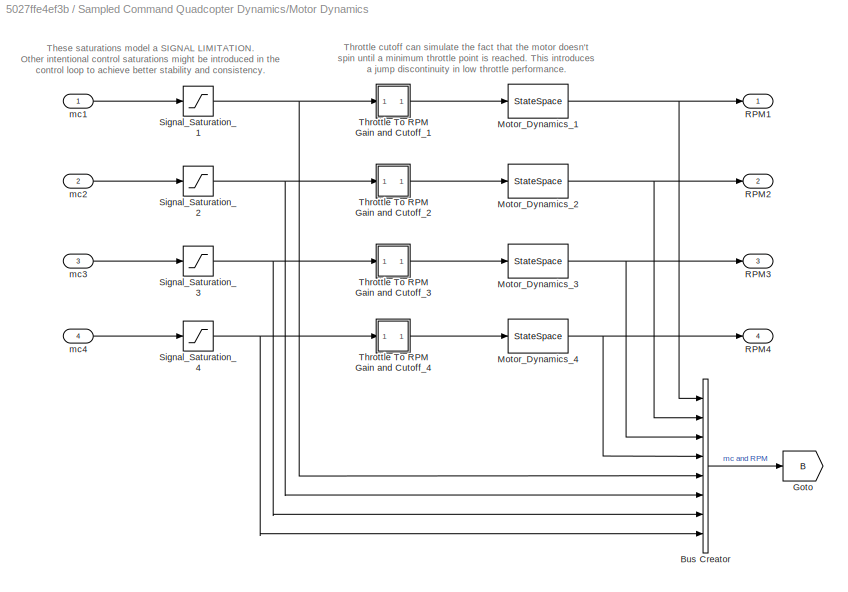
BLOCK [SubSystem] Sampled Command Quadcopter Dynamics/Motor Dynamics
  FunctionWithSeparateData = off
  MaskHideContents = off
  MinAlgLoopOccurrences = off
  Opaque = off
  Ports = [4, 4]
  PropExecContextOutsideSubsystem = off
  RTWSystemCode = Auto
  RequestExecContextInheritance = off
BLOCK [BusCreator] Sampled Command Quadcopter Dynamics/Motor Dynamics/Bus Creator
  DisplayOption = bar
  Inputs = 8
  Ports = [8, 1]
BLOCK [Goto] Sampled Command Quadcopter Dynamics/Motor Dynamics/Goto
  GotoTag = B
  TagVisibility = global
BLOCK [StateSpace] Sampled Command Quadcopter Dynamics/Motor Dynamics/Motor_Dynamics_1
  A = -1/quadModel.T
  C = 1/quadModel.T
  D = 0
  X0 = IC.w1*quadModel.T
BLOCK [StateSpace] Sampled Command Quadcopter Dynamics/Motor Dynamics/Motor_Dynamics_2
  A = -1/quadModel.T
  C = 1/quadModel.T
  D = 0
  X0 = IC.w2*quadModel.T
BLOCK [StateSpace] Sampled Command Quadcopter Dynamics/Motor Dynamics/Motor_Dynamics_3
  A = -1/quadModel.T
  C = 1/quadModel.T
  D = 0
  X0 = IC.w3*quadModel.T
BLOCK [StateSpace] Sampled Command Quadcopter Dynamics/Motor Dynamics/Motor_Dynamics_4
  A = -1/quadModel.T
  C = 1/quadModel.T
  D = 0
  X0 = IC.w4*quadModel.T
BLOCK [Outport] Sampled Command Quadcopter Dynamics/Motor Dynamics/RPM1
  IconDisplay = Port number
BLOCK [Outport] Sampled Command Quadcopter Dynamics/Motor Dynamics/RPM2
  IconDisplay = Port number
  Port = 2
BLOCK [Outport] Sampled Command Quadcopter Dynamics/Motor Dynamics/RPM3
  IconDisplay = Port number
  Port = 3
BLOCK [Outport] Sampled Command Quadcopter Dynamics/Motor Dynamics/RPM4
  IconDisplay = Port number
  Port = 4
BLOCK [Saturate] Sampled Command Quadcopter Dynamics/Motor Dynamics/Signal_Saturation_1
  InputPortMap = u0
  LowerLimit = 0
  Ports = [1, 1]
  UpperLimit = 100
BLOCK [Saturate] Sampled Command Quadcopter Dynamics/Motor Dynamics/Signal_Saturation_2
  InputPortMap = u0
  LowerLimit = 0
  Ports = [1, 1]
  UpperLimit = 100
BLOCK [Saturate] Sampled Command Quadcopter Dynamics/Motor Dynamics/Signal_Saturation_3
  InputPortMap = u0
  LowerLimit = 0
  Ports = [1, 1]
  UpperLimit = 100
BLOCK [Saturate] Sampled Command Quadcopter Dynamics/Motor Dynamics/Signal_Saturation_4
  InputPortMap = u0
  LowerLimit = 0
  Ports = [1, 1]
  UpperLimit = 100
BLOCK [SubSystem] Sampled Command Quadcopter Dynamics/Motor Dynamics/Throttle To RPM Gain and Cutoff_1
  FunctionWithSeparateData = off
  MaskHideContents = off
  MinAlgLoopOccurrences = off
  Opaque = off
  Ports = [1, 1]
  PropExecContextOutsideSubsystem = off
  RTWSystemCode = Auto
  RequestExecContextInheritance = off
  ShowPortLabels = none
BLOCK [Constant] Sampled Command Quadcopter Dynamics/Motor Dynamics/Throttle To RPM Gain and Cutoff_1/Constant
  Value = quadModel.b
BLOCK [Gain] Sampled Command Quadcopter Dynamics/Motor Dynamics/Throttle To RPM Gain and Cutoff_1/Gain
  Gain = quadModel.cr
  OutDataTypeStr = Inherit: Inherit via internal rule
  ParamDataTypeStr = Inherit: Inherit via internal rule
  SaturateOnIntegerOverflow = off
BLOCK [Inport] Sampled Command Quadcopter Dynamics/Motor Dynamics/Throttle To RPM Gain and Cutoff_1/In5
  IconDisplay = Port number
BLOCK [Reference] Sampled Command Quadcopter Dynamics/Motor Dynamics/Throttle To RPM Gain and Cutoff_1/Minimum Throttle Cutoff  REF=simulink/Logic and Bit
Operations/Compare
To Constant
  OutDataTypeStr = uint8
  Ports = [1, 1]
  SourceBlock = simulink/Logic and Bit\nOperations/Compare\nTo Constant
  SourceType = Compare To Constant
  ZeroCross = on
  const = quadModel.minThr
  relop = >=
BLOCK [Outport] Sampled Command Quadcopter Dynamics/Motor Dynamics/Throttle To RPM Gain and Cutoff_1/Out5
  IconDisplay = Port number
BLOCK [Product] Sampled Command Quadcopter Dynamics/Motor Dynamics/Throttle To RPM Gain and Cutoff_1/Product
  InputSameDT = off
  OutDataTypeStr = Inherit: Inherit via internal rule
  Ports = [2, 1]
  RndMeth = Floor
  SaturateOnIntegerOverflow = off
BLOCK [Sum] Sampled Command Quadcopter Dynamics/Motor Dynamics/Throttle To RPM Gain and Cutoff_1/Sum1
  IconShape = round
  InputSameDT = off
  Inputs = ++|
  OutDataTypeStr = Inherit: Inherit via internal rule
  Ports = [2, 1]
  SaturateOnIntegerOverflow = off
BLOCK [SubSystem] Sampled Command Quadcopter Dynamics/Motor Dynamics/Throttle To RPM Gain and Cutoff_2
  FunctionWithSeparateData = off
  MaskHideContents = off
  MinAlgLoopOccurrences = off
  Opaque = off
  Ports = [1, 1]
  PropExecContextOutsideSubsystem = off
  RTWSystemCode = Auto
  RequestExecContextInheritance = off
  ShowPortLabels = none
BLOCK [Constant] Sampled Command Quadcopter Dynamics/Motor Dynamics/Throttle To RPM Gain and Cutoff_2/Constant
  Value = quadModel.b
BLOCK [Gain] Sampled Command Quadcopter Dynamics/Motor Dynamics/Throttle To RPM Gain and Cutoff_2/Gain
  Gain = quadModel.cr
  OutDataTypeStr = Inherit: Inherit via internal rule
  ParamDataTypeStr = Inherit: Inherit via internal rule
  SaturateOnIntegerOverflow = off
BLOCK [Inport] Sampled Command Quadcopter Dynamics/Motor Dynamics/Throttle To RPM Gain and Cutoff_2/In5
  IconDisplay = Port number
BLOCK [Reference] Sampled Command Quadcopter Dynamics/Motor Dynamics/Throttle To RPM Gain and Cutoff_2/Minimum Throttle Cutoff  REF=simulink/Logic and Bit
Operations/Compare
To Constant
  OutDataTypeStr = uint8
  Ports = [1, 1]
  SourceBlock = simulink/Logic and Bit\nOperations/Compare\nTo Constant
  SourceType = Compare To Constant
  ZeroCross = on
  const = quadModel.minThr
  relop = >=
BLOCK [Outport] Sampled Command Quadcopter Dynamics/Motor Dynamics/Throttle To RPM Gain and Cutoff_2/Out5
  IconDisplay = Port number
BLOCK [Product] Sampled Command Quadcopter Dynamics/Motor Dynamics/Throttle To RPM Gain and Cutoff_2/Product
  InputSameDT = off
  OutDataTypeStr = Inherit: Inherit via internal rule
  Ports = [2, 1]
  RndMeth = Floor
  SaturateOnIntegerOverflow = off
BLOCK [Sum] Sampled Command Quadcopter Dynamics/Motor Dynamics/Throttle To RPM Gain and Cutoff_2/Sum1
  IconShape = round
  InputSameDT = off
  Inputs = ++|
  OutDataTypeStr = Inherit: Inherit via internal rule
  Ports = [2, 1]
  SaturateOnIntegerOverflow = off
BLOCK [SubSystem] Sampled Command Quadcopter Dynamics/Motor Dynamics/Throttle To RPM Gain and Cutoff_3
  FunctionWithSeparateData = off
  MaskHideContents = off
  MinAlgLoopOccurrences = off
  Opaque = off
  Ports = [1, 1]
  PropExecContextOutsideSubsystem = off
  RTWSystemCode = Auto
  RequestExecContextInheritance = off
  ShowPortLabels = none
BLOCK [Constant] Sampled Command Quadcopter Dynamics/Motor Dynamics/Throttle To RPM Gain and Cutoff_3/Constant
  Value = quadModel.b
BLOCK [Gain] Sampled Command Quadcopter Dynamics/Motor Dynamics/Throttle To RPM Gain and Cutoff_3/Gain
  Gain = quadModel.cr
  OutDataTypeStr = Inherit: Inherit via internal rule
  ParamDataTypeStr = Inherit: Inherit via internal rule
  SaturateOnIntegerOverflow = off
BLOCK [Inport] Sampled Command Quadcopter Dynamics/Motor Dynamics/Throttle To RPM Gain and Cutoff_3/In5
  IconDisplay = Port number
BLOCK [Reference] Sampled Command Quadcopter Dynamics/Motor Dynamics/Throttle To RPM Gain and Cutoff_3/Minimum Throttle Cutoff  REF=simulink/Logic and Bit
Operations/Compare
To Constant
  OutDataTypeStr = uint8
  Ports = [1, 1]
  SourceBlock = simulink/Logic and Bit\nOperations/Compare\nTo Constant
  SourceType = Compare To Constant
  ZeroCross = on
  const = quadModel.minThr
  relop = >=
BLOCK [Outport] Sampled Command Quadcopter Dynamics/Motor Dynamics/Throttle To RPM Gain and Cutoff_3/Out5
  IconDisplay = Port number
BLOCK [Product] Sampled Command Quadcopter Dynamics/Motor Dynamics/Throttle To RPM Gain and Cutoff_3/Product
  InputSameDT = off
  OutDataTypeStr = Inherit: Inherit via internal rule
  Ports = [2, 1]
  RndMeth = Floor
  SaturateOnIntegerOverflow = off
BLOCK [Sum] Sampled Command Quadcopter Dynamics/Motor Dynamics/Throttle To RPM Gain and Cutoff_3/Sum1
  IconShape = round
  InputSameDT = off
  Inputs = ++|
  OutDataTypeStr = Inherit: Inherit via internal rule
  Ports = [2, 1]
  SaturateOnIntegerOverflow = off
BLOCK [SubSystem] Sampled Command Quadcopter Dynamics/Motor Dynamics/Throttle To RPM Gain and Cutoff_4
  FunctionWithSeparateData = off
  MaskHideContents = off
  MinAlgLoopOccurrences = off
  Opaque = off
  Ports = [1, 1]
  PropExecContextOutsideSubsystem = off
  RTWSystemCode = Auto
  RequestExecContextInheritance = off
  ShowPortLabels = none
BLOCK [Constant] Sampled Command Quadcopter Dynamics/Motor Dynamics/Throttle To RPM Gain and Cutoff_4/Constant
  Value = quadModel.b
BLOCK [Gain] Sampled Command Quadcopter Dynamics/Motor Dynamics/Throttle To RPM Gain and Cutoff_4/Gain
  Gain = quadModel.cr
  OutDataTypeStr = Inherit: Inherit via internal rule
  ParamDataTypeStr = Inherit: Inherit via internal rule
  SaturateOnIntegerOverflow = off
BLOCK [Inport] Sampled Command Quadcopter Dynamics/Motor Dynamics/Throttle To RPM Gain and Cutoff_4/In5
  IconDisplay = Port number
BLOCK [Reference] Sampled Command Quadcopter Dynamics/Motor Dynamics/Throttle To RPM Gain and Cutoff_4/Minimum Throttle Cutoff  REF=simulink/Logic and Bit
Operations/Compare
To Constant
  OutDataTypeStr = uint8
  Ports = [1, 1]
  SourceBlock = simulink/Logic and Bit\nOperations/Compare\nTo Constant
  SourceType = Compare To Constant
  ZeroCross = on
  const = quadModel.minThr
  relop = >=
BLOCK [Outport] Sampled Command Quadcopter Dynamics/Motor Dynamics/Throttle To RPM Gain and Cutoff_4/Out5
  IconDisplay = Port number
BLOCK [Product] Sampled Command Quadcopter Dynamics/Motor Dynamics/Throttle To RPM Gain and Cutoff_4/Product
  InputSameDT = off
  OutDataTypeStr = Inherit: Inherit via internal rule
  Ports = [2, 1]
  RndMeth = Floor
  SaturateOnIntegerOverflow = off
BLOCK [Sum] Sampled Command Quadcopter Dynamics/Motor Dynamics/Throttle To RPM Gain and Cutoff_4/Sum1
  IconShape = round
  InputSameDT = off
  Inputs = ++|
  OutDataTypeStr = Inherit: Inherit via internal rule
  Ports = [2, 1]
  SaturateOnIntegerOverflow = off
BLOCK [Inport] Sampled Command Quadcopter Dynamics/Motor Dynamics/mc1
  IconDisplay = Port number
BLOCK [Inport] Sampled Command Quadcopter Dynamics/Motor Dynamics/mc2
  IconDisplay = Port number
  Port = 2
BLOCK [Inport] Sampled Command Quadcopter Dynamics/Motor Dynamics/mc3
  IconDisplay = Port number
  Port = 3
BLOCK [Inport] Sampled Command Quadcopter Dynamics/Motor Dynamics/mc4
  IconDisplay = Port number
  Port = 4
BLOCK [Mux] Sampled Command Quadcopter Dynamics/Mux
  DisplayOption = bar
  Ports = [4, 1]
BLOCK [RateTransition] Sampled Command Quadcopter Dynamics/Rate Transition
  Deterministic = off
  OutPortSampleTime = ESCSampleTime
BLOCK [M-S-Function] Sampled Command Quadcopter Dynamics/State Equations
  FunctionName = quadcopterDynamicsSFunction
  Parameters = quadModel, IC
  Ports = [5, 12]
BLOCK [Outport] Sampled Command Quadcopter Dynamics/States and Output
  IconDisplay = Port number
BLOCK [Inport] Sampled Command Quadcopter Dynamics/mc1
  IconDisplay = Port number
BLOCK [Inport] Sampled Command Quadcopter Dynamics/mc2
  IconDisplay = Port number
  Port = 2
BLOCK [Inport] Sampled Command Quadcopter Dynamics/mc3
  IconDisplay = Port number
  Port = 3
BLOCK [Inport] Sampled Command Quadcopter Dynamics/mc4
  IconDisplay = Port number
  Port = 4
BLOCK [Terminator] Terminator
BLOCK [Outport] yout
  IconDisplay = Port number
ANNOTATION Attitude Controller/Altitude (Z) Control: ez
ANNOTATION On-board State Estimation: Just a pass through
ANNOTATION On-board State Estimation: This block is intended to simulate the process used onboard the vehicle to estimate the attitude of the quad using the MPU-6050 data and filtering algorithms.
ANNOTATION On-board State Estimation/B3filtRawData(): Discrete 3rd Order Butterworth Filter Corner Frequency 8 Hz @ 350 Hz Sampling Rate Gains Calculated from http://www-users.cs.york.ac.uk/~fisher/mkfilter/trad.html
ANNOTATION On-board State Estimation/Mix Bus Output: These are the estimated states
ANNOTATION On-board State Estimation/Mix Bus Output: These states are sampled actual values not used by the stability controller
ANNOTATION On-board State Estimation/Mix Bus Output/Debug Scopes For Comparing Actual Versus Estimated Outputs This illustrates some of the effects from filtering: Compare Outputs
ANNOTATION On-board State Estimation/Mix Bus Output/Debug Scopes For Comparing Actual Versus Estimated Outputs This illustrates some of the effects from filtering: Estimated are yellow, magenta are real
ANNOTATION On-board State Estimation/State Estimation and Complimentary Mixing: Note: x_gyro is taken as P, y_gyro as Q, z_gyro ad R.
ANNOTATION On-board State Estimation/State Estimation and Complimentary Mixing: The specific state estimation procedure employed in these bocks is to be considered experimental (like everything else in this simulation). While functional within the context of our application, this is not to be taken as a "correct" method for state estimation or gyro/accelerometer data combination.
ANNOTATION On-board State Estimation/State Estimation and Complimentary Mixing/Subsystem: H_Phi = [1,tan(The)*sin(Phi), tan(The)*cos(Phi); 0, cos(Phi), -sin(Phi); 0,sin(Phi)/cos(The),cos(Phi)/cos(The)]; Phidot = H_Phi*omb_bi; %% Units OK SI
ANNOTATION On-board State Estimation/State Estimation and Complimentary Mixing/Subsystem/Phi_dot composer: H_Phi = [1,tan(The)*sin(Phi), tan(The)*cos(Phi); 0, cos(Phi), -sin(Phi); 0,sin(Phi)/cos(The),cos(Phi)/cos(The)]; Phidot = H_Phi*omb_bi; %% Units OK SI, this is the derivative of the Euler angles
ANNOTATION On-board State Estimation/State Estimation and Complimentary Mixing/Subsystem/Phi_dot composer1: H_Phi = [1,tan(The)*sin(Phi), tan(The)*cos(Phi); 0, cos(Phi), -sin(Phi); 0,sin(Phi)/cos(The),cos(Phi)/cos(The)]; Phidot = H_Phi*omb_bi; %% Units OK SI
ANNOTATION On-board State Estimation/State Estimation and Complimentary Mixing/Subsystem/Theta_dot composer1: H_Phi = [1,tan(The)*sin(Phi), tan(The)*cos(Phi); 0, cos(Phi), -sin(Phi); 0,sin(Phi)/cos(The),cos(Phi)/cos(The)]; Phidot = H_Phi*omb_bi; %% Units OK SI
ANNOTATION On-board State Estimation/State Estimation and Complimentary Mixing/Subsystem1: Note, estimation of psi from accelerometer data alone is assumed impossible in this arrangement.
ANNOTATION On-board State Estimation/data scaling: For simulation, no offset value is calculated.
ANNOTATION On-board State Estimation/filterRawData(): Discrete EMA Low Pass Filters Additinal filtering for experimentation purposes
ANNOTATION On-board State Estimation/getMotion6(): Get std measurement from sensor connect to front mask
ANNOTATION On-board State Estimation/getMotion6(): Simulate getMotion()
ANNOTATION On-board State Estimation/getMotion6()/Accelerometer: -M sin(The)
ANNOTATION On-board State Estimation/getMotion6()/Accelerometer: M cos(Phi) cos(The)
ANNOTATION On-board State Estimation/getMotion6()/Accelerometer: M cos(The) sin(Phi)
ANNOTATION On-board State Estimation/getMotion6()/Accelerometer: NOTE: Change to int16 here!!!
ANNOTATION On-board State Estimation/getMotion6()/Accelerometer: Note: this process is very artificial as it assumes no other acceleration forces act on the body of the vehicle besides gravity, including those from translational motion...
ANNOTATION Quadcopter Control Mixing/+ Config Control Mixing: + (plus) Quad Configuration Control Mixing
ANNOTATION Quadcopter Control Mixing/+ Config Control Mixing: mc1 = Alt_cor -Psi_cor - The_cor
ANNOTATION Quadcopter Control Mixing/+ Config Control Mixing: mc2 = Alt_cor + Psi_cor + Phi_cor
ANNOTATION Quadcopter Control Mixing/+ Config Control Mixing: mc3 = Alt_cor - Psi_cor + The_cor
ANNOTATION Quadcopter Control Mixing/+ Config Control Mixing: mc4 = Alt_cor + Psi_cor - Phi_cor
ANNOTATION Quadcopter Control Mixing/X Config Control Mixing: X - Configuration Quad Control Mixing
ANNOTATION Quadcopter Control Mixing/X Config Control Mixing: mc1 = Alt_cor - The_cor - Phi_cor - Psi_cor
ANNOTATION Quadcopter Control Mixing/X Config Control Mixing: mc2 = Alt_cor - The_cor + Phi_cor + Psi_cor
ANNOTATION Quadcopter Control Mixing/X Config Control Mixing: mc3 = Alt_cor + The_cor + Phi_cor - Psi_cor
ANNOTATION Quadcopter Control Mixing/X Config Control Mixing: mc4 = Alt_cor + The_cor - Phi_cor + Psi_cor
ANNOTATION Sampled Command Quadcopter Dynamics: Motor Commands (Percent Thottle)
ANNOTATION Sampled Command Quadcopter Dynamics: RPM
ANNOTATION Sampled Command Quadcopter Dynamics/External Disturbances: Note: Torques are in units of N*m, Forces in N Torques are applied to the BODY coordinate system. Forces are applied from the WORLD coordinate system! This can be changed by adjusting the equations within the S-function.
ANNOTATION Sampled Command Quadcopter Dynamics/Motor Dynamics: These saturations model a SIGNAL LIMITATION. Other intentional control saturations might be introduced in the control loop to achieve better stability and consistency.
ANNOTATION Sampled Command Quadcopter Dynamics/Motor Dynamics: Throttle cutoff can simulate the fact that the motor doesn't spin until a minimum throttle point is reached. This introduces a jump discontinuity in low throttle performance.
ANNOTATION Sampled Command Quadcopter Dynamics/Motor Dynamics/Throttle To RPM Gain and Cutoff_1: Output equals linearly scaled RPM for given throttle input if throttle input >=Throttle Cuttoff (minThr) else output is zero.
ANNOTATION Sampled Command Quadcopter Dynamics/Motor Dynamics/Throttle To RPM Gain and Cutoff_2: Output equals linearly scaled RPM for given throttle input if throttle input >=Throttle Cuttoff (minThr) else output is zero.
ANNOTATION Sampled Command Quadcopter Dynamics/Motor Dynamics/Throttle To RPM Gain and Cutoff_3: Output equals linearly scaled RPM for given throttle input if throttle input >=Throttle Cuttoff (minThr) else output is zero.
ANNOTATION Sampled Command Quadcopter Dynamics/Motor Dynamics/Throttle To RPM Gain and Cutoff_4: Output equals linearly scaled RPM for given throttle input if throttle input >=Throttle Cuttoff (minThr) else output is zero.
LINE Attitude Controller/Altitude (Z) Control/Bus Selector:1 -> Attitude Controller/Altitude (Z) Control/Sum:1
LINE Attitude Controller/Altitude (Z) Control/Derivative IC fixer/Constant:1 -> Attitude Controller/Altitude (Z) Control/Derivative IC fixer/IC:1
LINE Attitude Controller/Altitude (Z) Control/Derivative IC fixer/FilterStart:1 -> Attitude Controller/Altitude (Z) Control/Derivative IC fixer/Switch:3
LINE Attitude Controller/Altitude (Z) Control/Derivative IC fixer/IC:1 -> Attitude Controller/Altitude (Z) Control/Derivative IC fixer/Switch:2
LINE Attitude Controller/Altitude (Z) Control/Derivative IC fixer/Normal Output:1 -> Attitude Controller/Altitude (Z) Control/Derivative IC fixer/Switch:1
LINE Attitude Controller/Altitude (Z) Control/Derivative IC fixer/Switch:1 -> Attitude Controller/Altitude (Z) Control/Derivative IC fixer/Out1:1
LINE Attitude Controller/Altitude (Z) Control/Derivative IC fixer:1 -> Attitude Controller/Altitude (Z) Control/Kdz:1
LINE Attitude Controller/Altitude (Z) Control/Desired Z:1 -> Attitude Controller/Altitude (Z) Control/Bus Selector:1
LINE Attitude Controller/Altitude (Z) Control/Discrete Derivative:1 -> Attitude Controller/Altitude (Z) Control/Derivative IC fixer:2
LINE Attitude Controller/Altitude (Z) Control/Discrete-Time Integrator:1 -> Attitude Controller/Altitude (Z) Control/Kiz:1
LINE Attitude Controller/Altitude (Z) Control/Gravity Offset (Level Flight):1 -> Attitude Controller/Altitude (Z) Control/Sum2:1
LINE Attitude Controller/Altitude (Z) Control/Initial Derivative:1 -> Attitude Controller/Altitude (Z) Control/Derivative IC fixer:1
LINE Attitude Controller/Altitude (Z) Control/Kdz:1 -> Attitude Controller/Altitude (Z) Control/Sum2:4
LINE Attitude Controller/Altitude (Z) Control/Kiz:1 -> Attitude Controller/Altitude (Z) Control/Sum2:3
LINE Attitude Controller/Altitude (Z) Control/Kpz:1 -> Attitude Controller/Altitude (Z) Control/Sum2:2
LINE Attitude Controller/Altitude (Z) Control/Sum2:1 -> Attitude Controller/Altitude (Z) Control/Alt. (Z) Correction:1
NET Attitude Controller/Altitude (Z) Control/Sum:1 -> Attitude Controller/Altitude (Z) Control/Discrete-Time Integrator:1, Attitude Controller/Altitude (Z) Control/Kpz:1
NET Attitude Controller/Altitude (Z) Control/Z State:1 -> Attitude Controller/Altitude (Z) Control/Discrete Derivative:1, Attitude Controller/Altitude (Z) Control/Sum:2
LINE Attitude Controller/Altitude (Z) Control:1 -> Attitude Controller/Alt. (Z) Correction:1
NET Attitude Controller/Attitude Cmd:1 -> Attitude Controller/Altitude (Z) Control:1, Attitude Controller/Pitch (Theta) Control:1, Attitude Controller/Roll (Phi) Control :1, Attitude Controller/Yaw (Psi) Control:1
LINE Attitude Controller/Bus Selector:1 -> Attitude Controller/Roll (Phi) Control :2
LINE Attitude Controller/Bus Selector:2 -> Attitude Controller/Roll (Phi) Control :3
LINE Attitude Controller/Bus Selector:3 -> Attitude Controller/Pitch (Theta) Control:2
LINE Attitude Controller/Bus Selector:4 -> Attitude Controller/Pitch (Theta) Control:3
LINE Attitude Controller/Bus Selector:5 -> Attitude Controller/Yaw (Psi) Control:2
LINE Attitude Controller/Bus Selector:6 -> Attitude Controller/Yaw (Psi) Control:3
LINE Attitude Controller/Bus Selector:7 -> Attitude Controller/Altitude (Z) Control:2
LINE Attitude Controller/Pitch (Theta) Control/Attitude Command:1 -> Attitude Controller/Pitch (Theta) Control/Bus Selector:1
LINE Attitude Controller/Pitch (Theta) Control/Bus Selector:1 -> Attitude Controller/Pitch (Theta) Control/Sum:1
LINE Attitude Controller/Pitch (Theta) Control/Discrete Derivative:1 -> Attitude Controller/Pitch (Theta) Control/Kdt2:1
LINE Attitude Controller/Pitch (Theta) Control/Discrete-Time Integrator:1 -> Attitude Controller/Pitch (Theta) Control/Kit:1
NET Attitude Controller/Pitch (Theta) Control/Kdt2:1 -> Attitude Controller/Pitch (Theta) Control/Scope:4, Attitude Controller/Pitch (Theta) Control/Sum2:2
NET Attitude Controller/Pitch (Theta) Control/Kdt:1 -> Attitude Controller/Pitch (Theta) Control/Scope:3, Attitude Controller/Pitch (Theta) Control/Sum2:1
NET Attitude Controller/Pitch (Theta) Control/Kit:1 -> Attitude Controller/Pitch (Theta) Control/Scope:2, Attitude Controller/Pitch (Theta) Control/Sum1:2
NET Attitude Controller/Pitch (Theta) Control/Kpt:1 -> Attitude Controller/Pitch (Theta) Control/Scope:1, Attitude Controller/Pitch (Theta) Control/Sum1:1
NET Attitude Controller/Pitch (Theta) Control/Q State:1 -> Attitude Controller/Pitch (Theta) Control/Discrete Derivative:1, Attitude Controller/Pitch (Theta) Control/Kdt:1
LINE Attitude Controller/Pitch (Theta) Control/Sum1:1 -> Attitude Controller/Pitch (Theta) Control/Theta Correction:1
LINE Attitude Controller/Pitch (Theta) Control/Sum2:1 -> Attitude Controller/Pitch (Theta) Control/Sum1:3
NET Attitude Controller/Pitch (Theta) Control/Sum:1 -> Attitude Controller/Pitch (Theta) Control/Discrete-Time Integrator:1, Attitude Controller/Pitch (Theta) Control/Kpt:1
LINE Attitude Controller/Pitch (Theta) Control/Theta State:1 -> Attitude Controller/Pitch (Theta) Control/Sum:2
LINE Attitude Controller/Pitch (Theta) Control:1 -> Attitude Controller/Pitch (Theta) Correction:1
LINE Attitude Controller/Roll (Phi) Control /Attitude Command :1 -> Attitude Controller/Roll (Phi) Control /Bus Selector:1
LINE Attitude Controller/Roll (Phi) Control /Bus Selector:1 -> Attitude Controller/Roll (Phi) Control /Sum:1
LINE Attitude Controller/Roll (Phi) Control /Discrete Derivative:1 -> Attitude Controller/Roll (Phi) Control /Kdp2:1
LINE Attitude Controller/Roll (Phi) Control /Discrete-Time Integrator:1 -> Attitude Controller/Roll (Phi) Control /Kip:1
LINE Attitude Controller/Roll (Phi) Control /Kdp2:1 -> Attitude Controller/Roll (Phi) Control /Sum2:2
NET Attitude Controller/Roll (Phi) Control /Kdp:1 -> Attitude Controller/Roll (Phi) Control /Scope:3, Attitude Controller/Roll (Phi) Control /Sum2:1
NET Attitude Controller/Roll (Phi) Control /Kip:1 -> Attitude Controller/Roll (Phi) Control /Scope:2, Attitude Controller/Roll (Phi) Control /Sum1:2
NET Attitude Controller/Roll (Phi) Control /Kpp:1 -> Attitude Controller/Roll (Phi) Control /Scope:1, Attitude Controller/Roll (Phi) Control /Sum1:1
NET Attitude Controller/Roll (Phi) Control /P:1 -> Attitude Controller/Roll (Phi) Control /Discrete Derivative:1, Attitude Controller/Roll (Phi) Control /Kdp:1
LINE Attitude Controller/Roll (Phi) Control /Phi State:1 -> Attitude Controller/Roll (Phi) Control /Sum:2
LINE Attitude Controller/Roll (Phi) Control /Sum1:1 -> Attitude Controller/Roll (Phi) Control /Phi Correction:1
LINE Attitude Controller/Roll (Phi) Control /Sum2:1 -> Attitude Controller/Roll (Phi) Control /Sum1:3
NET Attitude Controller/Roll (Phi) Control /Sum:1 -> Attitude Controller/Roll (Phi) Control /Discrete-Time Integrator:1, Attitude Controller/Roll (Phi) Control /Kpp:1
LINE Attitude Controller/Roll (Phi) Control :1 -> Attitude Controller/Roll (Phi) Correction:1
LINE Attitude Controller/State Input:1 -> Attitude Controller/Bus Selector:1
LINE Attitude Controller/Yaw (Psi) Control/Attitude Command:1 -> Attitude Controller/Yaw (Psi) Control/Bus Selector:1
LINE Attitude Controller/Yaw (Psi) Control/Bus Selector:1 -> Attitude Controller/Yaw (Psi) Control/Sum:1
LINE Attitude Controller/Yaw (Psi) Control/Discrete Derivative:1 -> Attitude Controller/Yaw (Psi) Control/Kds2:1
LINE Attitude Controller/Yaw (Psi) Control/Discrete-Time Integrator:1 -> Attitude Controller/Yaw (Psi) Control/Kit:1
NET Attitude Controller/Yaw (Psi) Control/Kds2:1 -> Attitude Controller/Yaw (Psi) Control/Scope:4, Attitude Controller/Yaw (Psi) Control/Sum2:2
NET Attitude Controller/Yaw (Psi) Control/Kds:1 -> Attitude Controller/Yaw (Psi) Control/Scope:3, Attitude Controller/Yaw (Psi) Control/Sum2:1
NET Attitude Controller/Yaw (Psi) Control/Kit:1 -> Attitude Controller/Yaw (Psi) Control/Scope:2, Attitude Controller/Yaw (Psi) Control/Sum1:2
NET Attitude Controller/Yaw (Psi) Control/Kps:1 -> Attitude Controller/Yaw (Psi) Control/Scope:1, Attitude Controller/Yaw (Psi) Control/Sum1:1
LINE Attitude Controller/Yaw (Psi) Control/Psi State:1 -> Attitude Controller/Yaw (Psi) Control/Sum:2
NET Attitude Controller/Yaw (Psi) Control/R State:1 -> Attitude Controller/Yaw (Psi) Control/Discrete Derivative:1, Attitude Controller/Yaw (Psi) Control/Kds:1
LINE Attitude Controller/Yaw (Psi) Control/Sum1:1 -> Attitude Controller/Yaw (Psi) Control/Psi Correction:1
LINE Attitude Controller/Yaw (Psi) Control/Sum2:1 -> Attitude Controller/Yaw (Psi) Control/Sum1:3
NET Attitude Controller/Yaw (Psi) Control/Sum:1 -> Attitude Controller/Yaw (Psi) Control/Discrete-Time Integrator:1, Attitude Controller/Yaw (Psi) Control/Kps:1
LINE Attitude Controller/Yaw (Psi) Control:1 -> Attitude Controller/Yaw (Psi) Correction:1
LINE Attitude Controller:1 -> Quadcopter Control Mixing:1
LINE Attitude Controller:2 -> Quadcopter Control Mixing:2
LINE Attitude Controller:3 -> Quadcopter Control Mixing:3
LINE Attitude Controller:4 -> Quadcopter Control Mixing:4
LINE On-board State Estimation/Actual Vehicle States:1 -> On-board State Estimation/Rate Transition:1
LINE On-board State Estimation/B3filtRawData()/Bus Creator:1 -> On-board State Estimation/B3filtRawData()/Out1:1
LINE On-board State Estimation/B3filtRawData()/Bus Selector:1 -> On-board State Estimation/B3filtRawData()/Mux:1
LINE On-board State Estimation/B3filtRawData()/Bus Selector:2 -> On-board State Estimation/B3filtRawData()/Mux:2
LINE On-board State Estimation/B3filtRawData()/Bus Selector:3 -> On-board State Estimation/B3filtRawData()/Mux:3
LINE On-board State Estimation/B3filtRawData()/Bus Selector:4 -> On-board State Estimation/B3filtRawData()/Mux:4
LINE On-board State Estimation/B3filtRawData()/Bus Selector:5 -> On-board State Estimation/B3filtRawData()/Mux:5
LINE On-board State Estimation/B3filtRawData()/Bus Selector:6 -> On-board State Estimation/B3filtRawData()/Mux:6
LINE On-board State Estimation/B3filtRawData()/Data Type Conversion:1 -> On-board State Estimation/B3filtRawData()/InputGain:1
LINE On-board State Estimation/B3filtRawData()/Demux:1 -> On-board State Estimation/B3filtRawData()/Bus Creator:1
LINE On-board State Estimation/B3filtRawData()/Demux:2 -> On-board State Estimation/B3filtRawData()/Bus Creator:2
LINE On-board State Estimation/B3filtRawData()/Demux:3 -> On-board State Estimation/B3filtRawData()/Bus Creator:3
LINE On-board State Estimation/B3filtRawData()/Demux:4 -> On-board State Estimation/B3filtRawData()/Bus Creator:4
LINE On-board State Estimation/B3filtRawData()/Demux:5 -> On-board State Estimation/B3filtRawData()/Bus Creator:5
LINE On-board State Estimation/B3filtRawData()/Demux:6 -> On-board State Estimation/B3filtRawData()/Bus Creator:6
LINE On-board State Estimation/B3filtRawData()/In1:1 -> On-board State Estimation/B3filtRawData()/Bus Selector:1
NET On-board State Estimation/B3filtRawData()/InputGain:1 -> On-board State Estimation/B3filtRawData()/Sum1:1, On-board State Estimation/B3filtRawData()/x2:1
LINE On-board State Estimation/B3filtRawData()/Mux:1 -> On-board State Estimation/B3filtRawData()/Data Type Conversion:1
NET On-board State Estimation/B3filtRawData()/Sum1:1 -> On-board State Estimation/B3filtRawData()/Demux:1, On-board State Estimation/B3filtRawData()/y2:1
LINE On-board State Estimation/B3filtRawData()/Sum2:1 -> On-board State Estimation/B3filtRawData()/x1x2Gain:1
LINE On-board State Estimation/B3filtRawData()/x0:1 -> On-board State Estimation/B3filtRawData()/Sum1:3
NET On-board State Estimation/B3filtRawData()/x1:1 -> On-board State Estimation/B3filtRawData()/Sum2:2, On-board State Estimation/B3filtRawData()/x0:1
LINE On-board State Estimation/B3filtRawData()/x1x2Gain:1 -> On-board State Estimation/B3filtRawData()/Sum1:2
NET On-board State Estimation/B3filtRawData()/x2:1 -> On-board State Estimation/B3filtRawData()/Sum2:1, On-board State Estimation/B3filtRawData()/x1:1
LINE On-board State Estimation/B3filtRawData()/y0:1 -> On-board State Estimation/B3filtRawData()/y0Gain:1
LINE On-board State Estimation/B3filtRawData()/y0Gain:1 -> On-board State Estimation/B3filtRawData()/Sum1:4
NET On-board State Estimation/B3filtRawData()/y1:1 -> On-board State Estimation/B3filtRawData()/y0:1, On-board State Estimation/B3filtRawData()/y1Gain:1
LINE On-board State Estimation/B3filtRawData()/y1Gain:1 -> On-board State Estimation/B3filtRawData()/Sum1:5
NET On-board State Estimation/B3filtRawData()/y2:1 -> On-board State Estimation/B3filtRawData()/y1:1, On-board State Estimation/B3filtRawData()/y2Gain:1
LINE On-board State Estimation/B3filtRawData()/y2Gain:1 -> On-board State Estimation/B3filtRawData()/Sum1:6
LINE On-board State Estimation/B3filtRawData():1 -> On-board State Estimation/filterRawData():1
LINE On-board State Estimation/Mix Bus Output/Bus Creator:1 -> On-board State Estimation/Mix Bus Output/Out1:1
LINE On-board State Estimation/Mix Bus Output/Bus Selector1:1 -> On-board State Estimation/Mix Bus Output/Bus Creator:7
LINE On-board State Estimation/Mix Bus Output/Bus Selector1:2 -> On-board State Estimation/Mix Bus Output/Bus Creator:8
LINE On-board State Estimation/Mix Bus Output/Bus Selector1:3 -> On-board State Estimation/Mix Bus Output/Bus Creator:9
LINE On-board State Estimation/Mix Bus Output/Bus Selector1:4 -> On-board State Estimation/Mix Bus Output/Bus Creator:10
LINE On-board State Estimation/Mix Bus Output/Bus Selector1:5 -> On-board State Estimation/Mix Bus Output/Bus Creator:11
LINE On-board State Estimation/Mix Bus Output/Bus Selector1:6 -> On-board State Estimation/Mix Bus Output/Bus Creator:12
LINE On-board State Estimation/Mix Bus Output/Bus Selector2:1 -> On-board State Estimation/Mix Bus Output/Bus Creator:1
LINE On-board State Estimation/Mix Bus Output/Bus Selector2:2 -> On-board State Estimation/Mix Bus Output/Bus Creator:2
LINE On-board State Estimation/Mix Bus Output/Bus Selector2:3 -> On-board State Estimation/Mix Bus Output/Bus Creator:3
LINE On-board State Estimation/Mix Bus Output/Bus Selector2:4 -> On-board State Estimation/Mix Bus Output/Bus Creator:4
LINE On-board State Estimation/Mix Bus Output/Bus Selector2:5 -> On-board State Estimation/Mix Bus Output/Bus Creator:5
LINE On-board State Estimation/Mix Bus Output/Bus Selector2:6 -> On-board State Estimation/Mix Bus Output/Bus Creator:6
LINE On-board State Estimation/Mix Bus Output/Debug Scopes For Comparing Actual Versus Estimated Outputs This illustrates some of the effects from filtering/Actual:1 -> On-board State Estimation/Mix Bus Output/Debug Scopes For Comparing Actual Versus Estimated Outputs This illustrates some of the effects from filtering/Bus Selector3:1
LINE On-board State Estimation/Mix Bus Output/Debug Scopes For Comparing Actual Versus Estimated Outputs This illustrates some of the effects from filtering/Bus Selector3:1 -> On-board State Estimation/Mix Bus Output/Debug Scopes For Comparing Actual Versus Estimated Outputs This illustrates some of the effects from filtering/Mux3:2
LINE On-board State Estimation/Mix Bus Output/Debug Scopes For Comparing Actual Versus Estimated Outputs This illustrates some of the effects from filtering/Bus Selector3:2 -> On-board State Estimation/Mix Bus Output/Debug Scopes For Comparing Actual Versus Estimated Outputs This illustrates some of the effects from filtering/Mux4:2
LINE On-board State Estimation/Mix Bus Output/Debug Scopes For Comparing Actual Versus Estimated Outputs This illustrates some of the effects from filtering/Bus Selector3:3 -> On-board State Estimation/Mix Bus Output/Debug Scopes For Comparing Actual Versus Estimated Outputs This illustrates some of the effects from filtering/Mux5:2
LINE On-board State Estimation/Mix Bus Output/Debug Scopes For Comparing Actual Versus Estimated Outputs This illustrates some of the effects from filtering/Bus Selector3:4 -> On-board State Estimation/Mix Bus Output/Debug Scopes For Comparing Actual Versus Estimated Outputs This illustrates some of the effects from filtering/Mux:2
LINE On-board State Estimation/Mix Bus Output/Debug Scopes For Comparing Actual Versus Estimated Outputs This illustrates some of the effects from filtering/Bus Selector3:5 -> On-board State Estimation/Mix Bus Output/Debug Scopes For Comparing Actual Versus Estimated Outputs This illustrates some of the effects from filtering/Mux1:2
LINE On-board State Estimation/Mix Bus Output/Debug Scopes For Comparing Actual Versus Estimated Outputs This illustrates some of the effects from filtering/Bus Selector3:6 -> On-board State Estimation/Mix Bus Output/Debug Scopes For Comparing Actual Versus Estimated Outputs This illustrates some of the effects from filtering/Mux2:2
LINE On-board State Estimation/Mix Bus Output/Debug Scopes For Comparing Actual Versus Estimated Outputs This illustrates some of the effects from filtering/Bus Selector:1 -> On-board State Estimation/Mix Bus Output/Debug Scopes For Comparing Actual Versus Estimated Outputs This illustrates some of the effects from filtering/Mux3:1
LINE On-board State Estimation/Mix Bus Output/Debug Scopes For Comparing Actual Versus Estimated Outputs This illustrates some of the effects from filtering/Bus Selector:2 -> On-board State Estimation/Mix Bus Output/Debug Scopes For Comparing Actual Versus Estimated Outputs This illustrates some of the effects from filtering/Mux4:1
LINE On-board State Estimation/Mix Bus Output/Debug Scopes For Comparing Actual Versus Estimated Outputs This illustrates some of the effects from filtering/Bus Selector:3 -> On-board State Estimation/Mix Bus Output/Debug Scopes For Comparing Actual Versus Estimated Outputs This illustrates some of the effects from filtering/Mux5:1
LINE On-board State Estimation/Mix Bus Output/Debug Scopes For Comparing Actual Versus Estimated Outputs This illustrates some of the effects from filtering/Bus Selector:4 -> On-board State Estimation/Mix Bus Output/Debug Scopes For Comparing Actual Versus Estimated Outputs This illustrates some of the effects from filtering/Mux:1
LINE On-board State Estimation/Mix Bus Output/Debug Scopes For Comparing Actual Versus Estimated Outputs This illustrates some of the effects from filtering/Bus Selector:5 -> On-board State Estimation/Mix Bus Output/Debug Scopes For Comparing Actual Versus Estimated Outputs This illustrates some of the effects from filtering/Mux1:1
LINE On-board State Estimation/Mix Bus Output/Debug Scopes For Comparing Actual Versus Estimated Outputs This illustrates some of the effects from filtering/Bus Selector:6 -> On-board State Estimation/Mix Bus Output/Debug Scopes For Comparing Actual Versus Estimated Outputs This illustrates some of the effects from filtering/Mux2:1
LINE On-board State Estimation/Mix Bus Output/Debug Scopes For Comparing Actual Versus Estimated Outputs This illustrates some of the effects from filtering/Estimated:1 -> On-board State Estimation/Mix Bus Output/Debug Scopes For Comparing Actual Versus Estimated Outputs This illustrates some of the effects from filtering/Bus Selector:1
LINE On-board State Estimation/Mix Bus Output/Debug Scopes For Comparing Actual Versus Estimated Outputs This illustrates some of the effects from filtering/Mux1:1 -> On-board State Estimation/Mix Bus Output/Debug Scopes For Comparing Actual Versus Estimated Outputs This illustrates some of the effects from filtering/Scope:2
LINE On-board State Estimation/Mix Bus Output/Debug Scopes For Comparing Actual Versus Estimated Outputs This illustrates some of the effects from filtering/Mux2:1 -> On-board State Estimation/Mix Bus Output/Debug Scopes For Comparing Actual Versus Estimated Outputs This illustrates some of the effects from filtering/Scope:3
LINE On-board State Estimation/Mix Bus Output/Debug Scopes For Comparing Actual Versus Estimated Outputs This illustrates some of the effects from filtering/Mux3:1 -> On-board State Estimation/Mix Bus Output/Debug Scopes For Comparing Actual Versus Estimated Outputs This illustrates some of the effects from filtering/Scope1:1
LINE On-board State Estimation/Mix Bus Output/Debug Scopes For Comparing Actual Versus Estimated Outputs This illustrates some of the effects from filtering/Mux4:1 -> On-board State Estimation/Mix Bus Output/Debug Scopes For Comparing Actual Versus Estimated Outputs This illustrates some of the effects from filtering/Scope1:2
LINE On-board State Estimation/Mix Bus Output/Debug Scopes For Comparing Actual Versus Estimated Outputs This illustrates some of the effects from filtering/Mux5:1 -> On-board State Estimation/Mix Bus Output/Debug Scopes For Comparing Actual Versus Estimated Outputs This illustrates some of the effects from filtering/Scope1:3
LINE On-board State Estimation/Mix Bus Output/Debug Scopes For Comparing Actual Versus Estimated Outputs This illustrates some of the effects from filtering/Mux:1 -> On-board State Estimation/Mix Bus Output/Debug Scopes For Comparing Actual Versus Estimated Outputs This illustrates some of the effects from filtering/Scope:1
NET On-board State Estimation/Mix Bus Output/Estimated States:1 -> On-board State Estimation/Mix Bus Output/Bus Selector2:1, On-board State Estimation/Mix Bus Output/Debug Scopes For Comparing Actual Versus Estimated Outputs This illustrates some of the effects from filtering:1
NET On-board State Estimation/Mix Bus Output/Sampled Actual States:1 -> On-board State Estimation/Mix Bus Output/Bus Selector1:1, On-board State Estimation/Mix Bus Output/Debug Scopes For Comparing Actual Versus Estimated Outputs This illustrates some of the effects from filtering:2
LINE On-board State Estimation/Mix Bus Output:1 -> On-board State Estimation/Sampled and Estimated Vehicle States:1
NET On-board State Estimation/Rate Transition:1 -> On-board State Estimation/Mix Bus Output:2, On-board State Estimation/Sampled Actual Vehicle States:1, On-board State Estimation/getMotion6():1
LINE On-board State Estimation/State Estimation and Complimentary Mixing/Bus Creator:1 -> On-board State Estimation/State Estimation and Complimentary Mixing/State Estimations:1
NET On-board State Estimation/State Estimation and Complimentary Mixing/Bus Selector:1 -> On-board State Estimation/State Estimation and Complimentary Mixing/Bus Creator:4, On-board State Estimation/State Estimation and Complimentary Mixing/Subsystem:3
NET On-board State Estimation/State Estimation and Complimentary Mixing/Bus Selector:2 -> On-board State Estimation/State Estimation and Complimentary Mixing/Bus Creator:5, On-board State Estimation/State Estimation and Complimentary Mixing/Subsystem:4
NET On-board State Estimation/State Estimation and Complimentary Mixing/Bus Selector:3 -> On-board State Estimation/State Estimation and Complimentary Mixing/Bus Creator:6, On-board State Estimation/State Estimation and Complimentary Mixing/Subsystem:5
LINE On-board State Estimation/State Estimation and Complimentary Mixing/Bus Selector:4 -> On-board State Estimation/State Estimation and Complimentary Mixing/Subsystem1:1
LINE On-board State Estimation/State Estimation and Complimentary Mixing/Bus Selector:5 -> On-board State Estimation/State Estimation and Complimentary Mixing/Subsystem1:2
LINE On-board State Estimation/State Estimation and Complimentary Mixing/Bus Selector:6 -> On-board State Estimation/State Estimation and Complimentary Mixing/Subsystem1:3
LINE On-board State Estimation/State Estimation and Complimentary Mixing/Complimentary Filter/1-EAComp1:1 -> On-board State Estimation/State Estimation and Complimentary Mixing/Complimentary Filter/Sum2:2
LINE On-board State Estimation/State Estimation and Complimentary Mixing/Complimentary Filter/1-EAComp2:1 -> On-board State Estimation/State Estimation and Complimentary Mixing/Complimentary Filter/Sum4:2
LINE On-board State Estimation/State Estimation and Complimentary Mixing/Complimentary Filter/Delay1:1 -> On-board State Estimation/State Estimation and Complimentary Mixing/Complimentary Filter/Filter IC fixer1:2
LINE On-board State Estimation/State Estimation and Complimentary Mixing/Complimentary Filter/Delay2:1 -> On-board State Estimation/State Estimation and Complimentary Mixing/Complimentary Filter/Filter IC fixer2:2
LINE On-board State Estimation/State Estimation and Complimentary Mixing/Complimentary Filter/Delay:1 -> On-board State Estimation/State Estimation and Complimentary Mixing/Complimentary Filter/Filter IC fixer:2
LINE On-board State Estimation/State Estimation and Complimentary Mixing/Complimentary Filter/EAComp1:1 -> On-board State Estimation/State Estimation and Complimentary Mixing/Complimentary Filter/Sum2:1
LINE On-board State Estimation/State Estimation and Complimentary Mixing/Complimentary Filter/EAComp2:1 -> On-board State Estimation/State Estimation and Complimentary Mixing/Complimentary Filter/Sum4:1
LINE On-board State Estimation/State Estimation and Complimentary Mixing/Complimentary Filter/Filter IC fixer/Constant:1 -> On-board State Estimation/State Estimation and Complimentary Mixing/Complimentary Filter/Filter IC fixer/IC:1
LINE On-board State Estimation/State Estimation and Complimentary Mixing/Complimentary Filter/Filter IC fixer/FilterStart:1 -> On-board State Estimation/State Estimation and Complimentary Mixing/Complimentary Filter/Filter IC fixer/Switch:3
LINE On-board State Estimation/State Estimation and Complimentary Mixing/Complimentary Filter/Filter IC fixer/IC:1 -> On-board State Estimation/State Estimation and Complimentary Mixing/Complimentary Filter/Filter IC fixer/Switch:2
LINE On-board State Estimation/State Estimation and Complimentary Mixing/Complimentary Filter/Filter IC fixer/Normal Output:1 -> On-board State Estimation/State Estimation and Complimentary Mixing/Complimentary Filter/Filter IC fixer/Switch:1
LINE On-board State Estimation/State Estimation and Complimentary Mixing/Complimentary Filter/Filter IC fixer/Switch:1 -> On-board State Estimation/State Estimation and Complimentary Mixing/Complimentary Filter/Filter IC fixer/Out1:1
LINE On-board State Estimation/State Estimation and Complimentary Mixing/Complimentary Filter/Filter IC fixer1/Constant:1 -> On-board State Estimation/State Estimation and Complimentary Mixing/Complimentary Filter/Filter IC fixer1/IC:1
LINE On-board State Estimation/State Estimation and Complimentary Mixing/Complimentary Filter/Filter IC fixer1/FilterStart:1 -> On-board State Estimation/State Estimation and Complimentary Mixing/Complimentary Filter/Filter IC fixer1/Switch:3
LINE On-board State Estimation/State Estimation and Complimentary Mixing/Complimentary Filter/Filter IC fixer1/IC:1 -> On-board State Estimation/State Estimation and Complimentary Mixing/Complimentary Filter/Filter IC fixer1/Switch:2
LINE On-board State Estimation/State Estimation and Complimentary Mixing/Complimentary Filter/Filter IC fixer1/Normal Output:1 -> On-board State Estimation/State Estimation and Complimentary Mixing/Complimentary Filter/Filter IC fixer1/Switch:1
LINE On-board State Estimation/State Estimation and Complimentary Mixing/Complimentary Filter/Filter IC fixer1/Switch:1 -> On-board State Estimation/State Estimation and Complimentary Mixing/Complimentary Filter/Filter IC fixer1/Out1:1
LINE On-board State Estimation/State Estimation and Complimentary Mixing/Complimentary Filter/Filter IC fixer1:1 -> On-board State Estimation/State Estimation and Complimentary Mixing/Complimentary Filter/Sum3:2
LINE On-board State Estimation/State Estimation and Complimentary Mixing/Complimentary Filter/Filter IC fixer2/Constant:1 -> On-board State Estimation/State Estimation and Complimentary Mixing/Complimentary Filter/Filter IC fixer2/IC:1
LINE On-board State Estimation/State Estimation and Complimentary Mixing/Complimentary Filter/Filter IC fixer2/FilterStart:1 -> On-board State Estimation/State Estimation and Complimentary Mixing/Complimentary Filter/Filter IC fixer2/Switch:3
LINE On-board State Estimation/State Estimation and Complimentary Mixing/Complimentary Filter/Filter IC fixer2/IC:1 -> On-board State Estimation/State Estimation and Complimentary Mixing/Complimentary Filter/Filter IC fixer2/Switch:2
LINE On-board State Estimation/State Estimation and Complimentary Mixing/Complimentary Filter/Filter IC fixer2/Normal Output:1 -> On-board State Estimation/State Estimation and Complimentary Mixing/Complimentary Filter/Filter IC fixer2/Switch:1
LINE On-board State Estimation/State Estimation and Complimentary Mixing/Complimentary Filter/Filter IC fixer2/Switch:1 -> On-board State Estimation/State Estimation and Complimentary Mixing/Complimentary Filter/Filter IC fixer2/Out1:1
LINE On-board State Estimation/State Estimation and Complimentary Mixing/Complimentary Filter/Filter IC fixer2:1 -> On-board State Estimation/State Estimation and Complimentary Mixing/Complimentary Filter/Sum1:2
LINE On-board State Estimation/State Estimation and Complimentary Mixing/Complimentary Filter/Filter IC fixer:1 -> On-board State Estimation/State Estimation and Complimentary Mixing/Complimentary Filter/Sum5:2
LINE On-board State Estimation/State Estimation and Complimentary Mixing/Complimentary Filter/Psi Start Angle:1 -> On-board State Estimation/State Estimation and Complimentary Mixing/Complimentary Filter/Filter IC fixer:1
LINE On-board State Estimation/State Estimation and Complimentary Mixing/Complimentary Filter/Sum1:1 -> On-board State Estimation/State Estimation and Complimentary Mixing/Complimentary Filter/EAComp1:1
NET On-board State Estimation/State Estimation and Complimentary Mixing/Complimentary Filter/Sum2:1 -> On-board State Estimation/State Estimation and Complimentary Mixing/Complimentary Filter/Delay2:1, On-board State Estimation/State Estimation and Complimentary Mixing/Complimentary Filter/phi_est:1
LINE On-board State Estimation/State Estimation and Complimentary Mixing/Complimentary Filter/Sum3:1 -> On-board State Estimation/State Estimation and Complimentary Mixing/Complimentary Filter/EAComp2:1
NET On-board State Estimation/State Estimation and Complimentary Mixing/Complimentary Filter/Sum4:1 -> On-board State Estimation/State Estimation and Complimentary Mixing/Complimentary Filter/Delay1:1, On-board State Estimation/State Estimation and Complimentary Mixing/Complimentary Filter/theta_est:1
NET On-board State Estimation/State Estimation and Complimentary Mixing/Complimentary Filter/Sum5:1 -> On-board State Estimation/State Estimation and Complimentary Mixing/Complimentary Filter/Delay:1, On-board State Estimation/State Estimation and Complimentary Mixing/Complimentary Filter/psi_est:1
LINE On-board State Estimation/State Estimation and Complimentary Mixing/Complimentary Filter/Weighted Sample Time1:1 -> On-board State Estimation/State Estimation and Complimentary Mixing/Complimentary Filter/Sum3:1
LINE On-board State Estimation/State Estimation and Complimentary Mixing/Complimentary Filter/Weighted Sample Time2:1 -> On-board State Estimation/State Estimation and Complimentary Mixing/Complimentary Filter/Sum5:1
LINE On-board State Estimation/State Estimation and Complimentary Mixing/Complimentary Filter/Weighted Sample Time:1 -> On-board State Estimation/State Estimation and Complimentary Mixing/Complimentary Filter/Sum1:1
NET On-board State Estimation/State Estimation and Complimentary Mixing/Complimentary Filter/phiDot_acc:1 -> On-board State Estimation/State Estimation and Complimentary Mixing/Complimentary Filter/1-EAComp1:1, On-board State Estimation/State Estimation and Complimentary Mixing/Complimentary Filter/Filter IC fixer2:1
LINE On-board State Estimation/State Estimation and Complimentary Mixing/Complimentary Filter/phiDot_gyro:1 -> On-board State Estimation/State Estimation and Complimentary Mixing/Complimentary Filter/Weighted Sample Time:1
LINE On-board State Estimation/State Estimation and Complimentary Mixing/Complimentary Filter/psiDot_gyro:1 -> On-board State Estimation/State Estimation and Complimentary Mixing/Complimentary Filter/Weighted Sample Time2:1
LINE On-board State Estimation/State Estimation and Complimentary Mixing/Complimentary Filter/theDot_gyro:1 -> On-board State Estimation/State Estimation and Complimentary Mixing/Complimentary Filter/Weighted Sample Time1:1
NET On-board State Estimation/State Estimation and Complimentary Mixing/Complimentary Filter/the_acc:1 -> On-board State Estimation/State Estimation and Complimentary Mixing/Complimentary Filter/1-EAComp2:1, On-board State Estimation/State Estimation and Complimentary Mixing/Complimentary Filter/Filter IC fixer1:1
NET On-board State Estimation/State Estimation and Complimentary Mixing/Complimentary Filter:1 -> On-board State Estimation/State Estimation and Complimentary Mixing/Bus Creator:1, On-board State Estimation/State Estimation and Complimentary Mixing/Subsystem:1
NET On-board State Estimation/State Estimation and Complimentary Mixing/Complimentary Filter:2 -> On-board State Estimation/State Estimation and Complimentary Mixing/Bus Creator:2, On-board State Estimation/State Estimation and Complimentary Mixing/Subsystem:2
LINE On-board State Estimation/State Estimation and Complimentary Mixing/Complimentary Filter:3 -> On-board State Estimation/State Estimation and Complimentary Mixing/Bus Creator:3
LINE On-board State Estimation/State Estimation and Complimentary Mixing/In1:1 -> On-board State Estimation/State Estimation and Complimentary Mixing/Bus Selector:1
LINE On-board State Estimation/State Estimation and Complimentary Mixing/Subsystem/Delay1:1 -> On-board State Estimation/State Estimation and Complimentary Mixing/Subsystem/Filter IC fixer2:2
LINE On-board State Estimation/State Estimation and Complimentary Mixing/Subsystem/Delay:1 -> On-board State Estimation/State Estimation and Complimentary Mixing/Subsystem/Filter IC fixer1:2
LINE On-board State Estimation/State Estimation and Complimentary Mixing/Subsystem/Filter IC fixer1/Constant:1 -> On-board State Estimation/State Estimation and Complimentary Mixing/Subsystem/Filter IC fixer1/IC:1
LINE On-board State Estimation/State Estimation and Complimentary Mixing/Subsystem/Filter IC fixer1/FilterStart:1 -> On-board State Estimation/State Estimation and Complimentary Mixing/Subsystem/Filter IC fixer1/Switch:3
LINE On-board State Estimation/State Estimation and Complimentary Mixing/Subsystem/Filter IC fixer1/IC:1 -> On-board State Estimation/State Estimation and Complimentary Mixing/Subsystem/Filter IC fixer1/Switch:2
LINE On-board State Estimation/State Estimation and Complimentary Mixing/Subsystem/Filter IC fixer1/Normal Output:1 -> On-board State Estimation/State Estimation and Complimentary Mixing/Subsystem/Filter IC fixer1/Switch:1
LINE On-board State Estimation/State Estimation and Complimentary Mixing/Subsystem/Filter IC fixer1/Switch:1 -> On-board State Estimation/State Estimation and Complimentary Mixing/Subsystem/Filter IC fixer1/Out1:1
NET On-board State Estimation/State Estimation and Complimentary Mixing/Subsystem/Filter IC fixer1:1 -> On-board State Estimation/State Estimation and Complimentary Mixing/Subsystem/Phi_dot composer1:1, On-board State Estimation/State Estimation and Complimentary Mixing/Subsystem/Phi_dot composer:1, On-board State Estimation/State Estimation and Complimentary Mixing/Subsystem/Theta_dot composer1:1
LINE On-board State Estimation/State Estimation and Complimentary Mixing/Subsystem/Filter IC fixer2/Constant:1 -> On-board State Estimation/State Estimation and Complimentary Mixing/Subsystem/Filter IC fixer2/IC:1
LINE On-board State Estimation/State Estimation and Complimentary Mixing/Subsystem/Filter IC fixer2/FilterStart:1 -> On-board State Estimation/State Estimation and Complimentary Mixing/Subsystem/Filter IC fixer2/Switch:3
LINE On-board State Estimation/State Estimation and Complimentary Mixing/Subsystem/Filter IC fixer2/IC:1 -> On-board State Estimation/State Estimation and Complimentary Mixing/Subsystem/Filter IC fixer2/Switch:2
LINE On-board State Estimation/State Estimation and Complimentary Mixing/Subsystem/Filter IC fixer2/Normal Output:1 -> On-board State Estimation/State Estimation and Complimentary Mixing/Subsystem/Filter IC fixer2/Switch:1
LINE On-board State Estimation/State Estimation and Complimentary Mixing/Subsystem/Filter IC fixer2/Switch:1 -> On-board State Estimation/State Estimation and Complimentary Mixing/Subsystem/Filter IC fixer2/Out1:1
NET On-board State Estimation/State Estimation and Complimentary Mixing/Subsystem/Filter IC fixer2:1 -> On-board State Estimation/State Estimation and Complimentary Mixing/Subsystem/Phi_dot composer1:2, On-board State Estimation/State Estimation and Complimentary Mixing/Subsystem/Phi_dot composer:2
LINE On-board State Estimation/State Estimation and Complimentary Mixing/Subsystem/P:1 -> On-board State Estimation/State Estimation and Complimentary Mixing/Subsystem/Phi_dot composer:3
LINE On-board State Estimation/State Estimation and Complimentary Mixing/Subsystem/Phi Start Angle:1 -> On-board State Estimation/State Estimation and Complimentary Mixing/Subsystem/Filter IC fixer1:1
LINE On-board State Estimation/State Estimation and Complimentary Mixing/Subsystem/Phi:1 -> On-board State Estimation/State Estimation and Complimentary Mixing/Subsystem/Delay:1
LINE On-board State Estimation/State Estimation and Complimentary Mixing/Subsystem/Phi_dot composer/P:1 -> On-board State Estimation/State Estimation and Complimentary Mixing/Subsystem/Phi_dot composer/Sum:1
LINE On-board State Estimation/State Estimation and Complimentary Mixing/Subsystem/Phi_dot composer/Phi:1 -> On-board State Estimation/State Estimation and Complimentary Mixing/Subsystem/Phi_dot composer/Trigonometric Function1:1
LINE On-board State Estimation/State Estimation and Complimentary Mixing/Subsystem/Phi_dot composer/Product1:1 -> On-board State Estimation/State Estimation and Complimentary Mixing/Subsystem/Phi_dot composer/Sum:3
LINE On-board State Estimation/State Estimation and Complimentary Mixing/Subsystem/Phi_dot composer/Product:1 -> On-board State Estimation/State Estimation and Complimentary Mixing/Subsystem/Phi_dot composer/Sum:2
LINE On-board State Estimation/State Estimation and Complimentary Mixing/Subsystem/Phi_dot composer/Q:1 -> On-board State Estimation/State Estimation and Complimentary Mixing/Subsystem/Phi_dot composer/Product:3
LINE On-board State Estimation/State Estimation and Complimentary Mixing/Subsystem/Phi_dot composer/R:1 -> On-board State Estimation/State Estimation and Complimentary Mixing/Subsystem/Phi_dot composer/Product1:3
LINE On-board State Estimation/State Estimation and Complimentary Mixing/Subsystem/Phi_dot composer/Sum:1 -> On-board State Estimation/State Estimation and Complimentary Mixing/Subsystem/Phi_dot composer/phiDot:1
LINE On-board State Estimation/State Estimation and Complimentary Mixing/Subsystem/Phi_dot composer/Theta:1 -> On-board State Estimation/State Estimation and Complimentary Mixing/Subsystem/Phi_dot composer/Trigonometric Function:1
LINE On-board State Estimation/State Estimation and Complimentary Mixing/Subsystem/Phi_dot composer/Trigonometric Function1:1 -> On-board State Estimation/State Estimation and Complimentary Mixing/Subsystem/Phi_dot composer/Product:2
LINE On-board State Estimation/State Estimation and Complimentary Mixing/Subsystem/Phi_dot composer/Trigonometric Function1:2 -> On-board State Estimation/State Estimation and Complimentary Mixing/Subsystem/Phi_dot composer/Product1:2
NET On-board State Estimation/State Estimation and Complimentary Mixing/Subsystem/Phi_dot composer/Trigonometric Function:1 -> On-board State Estimation/State Estimation and Complimentary Mixing/Subsystem/Phi_dot composer/Product1:1, On-board State Estimation/State Estimation and Complimentary Mixing/Subsystem/Phi_dot composer/Product:1
LINE On-board State Estimation/State Estimation and Complimentary Mixing/Subsystem/Phi_dot composer1/Divide1:1 -> On-board State Estimation/State Estimation and Complimentary Mixing/Subsystem/Phi_dot composer1/Sum:2
LINE On-board State Estimation/State Estimation and Complimentary Mixing/Subsystem/Phi_dot composer1/Divide:1 -> On-board State Estimation/State Estimation and Complimentary Mixing/Subsystem/Phi_dot composer1/Sum:1
LINE On-board State Estimation/State Estimation and Complimentary Mixing/Subsystem/Phi_dot composer1/Phi:1 -> On-board State Estimation/State Estimation and Complimentary Mixing/Subsystem/Phi_dot composer1/Trigonometric Function:1
LINE On-board State Estimation/State Estimation and Complimentary Mixing/Subsystem/Phi_dot composer1/Q:1 -> On-board State Estimation/State Estimation and Complimentary Mixing/Subsystem/Phi_dot composer1/Divide:1
LINE On-board State Estimation/State Estimation and Complimentary Mixing/Subsystem/Phi_dot composer1/R:1 -> On-board State Estimation/State Estimation and Complimentary Mixing/Subsystem/Phi_dot composer1/Divide1:2
LINE On-board State Estimation/State Estimation and Complimentary Mixing/Subsystem/Phi_dot composer1/Sum:1 -> On-board State Estimation/State Estimation and Complimentary Mixing/Subsystem/Phi_dot composer1/psiDot:1
LINE On-board State Estimation/State Estimation and Complimentary Mixing/Subsystem/Phi_dot composer1/Theta:1 -> On-board State Estimation/State Estimation and Complimentary Mixing/Subsystem/Phi_dot composer1/Trigonometric Function1:1
NET On-board State Estimation/State Estimation and Complimentary Mixing/Subsystem/Phi_dot composer1/Trigonometric Function1:1 -> On-board State Estimation/State Estimation and Complimentary Mixing/Subsystem/Phi_dot composer1/Divide1:3, On-board State Estimation/State Estimation and Complimentary Mixing/Subsystem/Phi_dot composer1/Divide:3
LINE On-board State Estimation/State Estimation and Complimentary Mixing/Subsystem/Phi_dot composer1/Trigonometric Function:1 -> On-board State Estimation/State Estimation and Complimentary Mixing/Subsystem/Phi_dot composer1/Divide:2
LINE On-board State Estimation/State Estimation and Complimentary Mixing/Subsystem/Phi_dot composer1/Trigonometric Function:2 -> On-board State Estimation/State Estimation and Complimentary Mixing/Subsystem/Phi_dot composer1/Divide1:1
LINE On-board State Estimation/State Estimation and Complimentary Mixing/Subsystem/Phi_dot composer1:1 -> On-board State Estimation/State Estimation and Complimentary Mixing/Subsystem/psiDot_gyro:1
LINE On-board State Estimation/State Estimation and Complimentary Mixing/Subsystem/Phi_dot composer:1 -> On-board State Estimation/State Estimation and Complimentary Mixing/Subsystem/phiDot_gyro:1
NET On-board State Estimation/State Estimation and Complimentary Mixing/Subsystem/Q:1 -> On-board State Estimation/State Estimation and Complimentary Mixing/Subsystem/Phi_dot composer1:3, On-board State Estimation/State Estimation and Complimentary Mixing/Subsystem/Phi_dot composer:4, On-board State Estimation/State Estimation and Complimentary Mixing/Subsystem/Theta_dot composer1:2
NET On-board State Estimation/State Estimation and Complimentary Mixing/Subsystem/R:1 -> On-board State Estimation/State Estimation and Complimentary Mixing/Subsystem/Phi_dot composer1:4, On-board State Estimation/State Estimation and Complimentary Mixing/Subsystem/Phi_dot composer:5, On-board State Estimation/State Estimation and Complimentary Mixing/Subsystem/Theta_dot composer1:3
LINE On-board State Estimation/State Estimation and Complimentary Mixing/Subsystem/Theta Start Angle:1 -> On-board State Estimation/State Estimation and Complimentary Mixing/Subsystem/Filter IC fixer2:1
LINE On-board State Estimation/State Estimation and Complimentary Mixing/Subsystem/Theta:1 -> On-board State Estimation/State Estimation and Complimentary Mixing/Subsystem/Delay1:1
LINE On-board State Estimation/State Estimation and Complimentary Mixing/Subsystem/Theta_dot composer1/Phi:1 -> On-board State Estimation/State Estimation and Complimentary Mixing/Subsystem/Theta_dot composer1/Trigonometric Function2:1
LINE On-board State Estimation/State Estimation and Complimentary Mixing/Subsystem/Theta_dot composer1/Product1:1 -> On-board State Estimation/State Estimation and Complimentary Mixing/Subsystem/Theta_dot composer1/Sum:2
LINE On-board State Estimation/State Estimation and Complimentary Mixing/Subsystem/Theta_dot composer1/Product:1 -> On-board State Estimation/State Estimation and Complimentary Mixing/Subsystem/Theta_dot composer1/Sum:1
LINE On-board State Estimation/State Estimation and Complimentary Mixing/Subsystem/Theta_dot composer1/Q:1 -> On-board State Estimation/State Estimation and Complimentary Mixing/Subsystem/Theta_dot composer1/Product:2
LINE On-board State Estimation/State Estimation and Complimentary Mixing/Subsystem/Theta_dot composer1/R:1 -> On-board State Estimation/State Estimation and Complimentary Mixing/Subsystem/Theta_dot composer1/Product1:2
LINE On-board State Estimation/State Estimation and Complimentary Mixing/Subsystem/Theta_dot composer1/Sum:1 -> On-board State Estimation/State Estimation and Complimentary Mixing/Subsystem/Theta_dot composer1/thetaDot:1
NET On-board State Estimation/State Estimation and Complimentary Mixing/Subsystem/Theta_dot composer1/Trigonometric Function2:1 -> On-board State Estimation/State Estimation and Complimentary Mixing/Subsystem/Theta_dot composer1/Scope:2, On-board State Estimation/State Estimation and Complimentary Mixing/Subsystem/Theta_dot composer1/Unary Minus:1
LINE On-board State Estimation/State Estimation and Complimentary Mixing/Subsystem/Theta_dot composer1/Trigonometric Function2:2 -> On-board State Estimation/State Estimation and Complimentary Mixing/Subsystem/Theta_dot composer1/Product:1
NET On-board State Estimation/State Estimation and Complimentary Mixing/Subsystem/Theta_dot composer1/Unary Minus:1 -> On-board State Estimation/State Estimation and Complimentary Mixing/Subsystem/Theta_dot composer1/Product1:1, On-board State Estimation/State Estimation and Complimentary Mixing/Subsystem/Theta_dot composer1/Scope:1
LINE On-board State Estimation/State Estimation and Complimentary Mixing/Subsystem/Theta_dot composer1:1 -> On-board State Estimation/State Estimation and Complimentary Mixing/Subsystem/thetaDot_gyro:1
LINE On-board State Estimation/State Estimation and Complimentary Mixing/Subsystem1/Divide1:1 -> On-board State Estimation/State Estimation and Complimentary Mixing/Subsystem1/Trigonometric Function1:1
LINE On-board State Estimation/State Estimation and Complimentary Mixing/Subsystem1/Divide:1 -> On-board State Estimation/State Estimation and Complimentary Mixing/Subsystem1/Trigonometric Function:1
NET On-board State Estimation/State Estimation and Complimentary Mixing/Subsystem1/Gain:1 -> On-board State Estimation/State Estimation and Complimentary Mixing/Subsystem1/Trigonometric Function2:1, On-board State Estimation/State Estimation and Complimentary Mixing/Subsystem1/theta_acc:1
LINE On-board State Estimation/State Estimation and Complimentary Mixing/Subsystem1/Magnitude/Demux1:1 -> On-board State Estimation/State Estimation and Complimentary Mixing/Subsystem1/Magnitude/Sum:1
LINE On-board State Estimation/State Estimation and Complimentary Mixing/Subsystem1/Magnitude/Demux1:2 -> On-board State Estimation/State Estimation and Complimentary Mixing/Subsystem1/Magnitude/Sum:2
LINE On-board State Estimation/State Estimation and Complimentary Mixing/Subsystem1/Magnitude/Demux1:3 -> On-board State Estimation/State Estimation and Complimentary Mixing/Subsystem1/Magnitude/Sum:3
LINE On-board State Estimation/State Estimation and Complimentary Mixing/Subsystem1/Magnitude/Math Function:1 -> On-board State Estimation/State Estimation and Complimentary Mixing/Subsystem1/Magnitude/Demux1:1
LINE On-board State Estimation/State Estimation and Complimentary Mixing/Subsystem1/Magnitude/Mux:1 -> On-board State Estimation/State Estimation and Complimentary Mixing/Subsystem1/Magnitude/Math Function:1
LINE On-board State Estimation/State Estimation and Complimentary Mixing/Subsystem1/Magnitude/Sqrt:1 -> On-board State Estimation/State Estimation and Complimentary Mixing/Subsystem1/Magnitude/|g|:1
LINE On-board State Estimation/State Estimation and Complimentary Mixing/Subsystem1/Magnitude/Sum:1 -> On-board State Estimation/State Estimation and Complimentary Mixing/Subsystem1/Magnitude/Sqrt:1
LINE On-board State Estimation/State Estimation and Complimentary Mixing/Subsystem1/Magnitude/x_acc:1 -> On-board State Estimation/State Estimation and Complimentary Mixing/Subsystem1/Magnitude/Mux:1
LINE On-board State Estimation/State Estimation and Complimentary Mixing/Subsystem1/Magnitude/y_acc:1 -> On-board State Estimation/State Estimation and Complimentary Mixing/Subsystem1/Magnitude/Mux:2
LINE On-board State Estimation/State Estimation and Complimentary Mixing/Subsystem1/Magnitude/z_acc:1 -> On-board State Estimation/State Estimation and Complimentary Mixing/Subsystem1/Magnitude/Mux:3
NET On-board State Estimation/State Estimation and Complimentary Mixing/Subsystem1/Magnitude:1 -> On-board State Estimation/State Estimation and Complimentary Mixing/Subsystem1/Divide:2, On-board State Estimation/State Estimation and Complimentary Mixing/Subsystem1/Product:2
LINE On-board State Estimation/State Estimation and Complimentary Mixing/Subsystem1/Product:1 -> On-board State Estimation/State Estimation and Complimentary Mixing/Subsystem1/Divide1:2
LINE On-board State Estimation/State Estimation and Complimentary Mixing/Subsystem1/Trigonometric Function1:1 -> On-board State Estimation/State Estimation and Complimentary Mixing/Subsystem1/phi_acc:1
LINE On-board State Estimation/State Estimation and Complimentary Mixing/Subsystem1/Trigonometric Function2:1 -> On-board State Estimation/State Estimation and Complimentary Mixing/Subsystem1/Product:1
LINE On-board State Estimation/State Estimation and Complimentary Mixing/Subsystem1/Trigonometric Function:1 -> On-board State Estimation/State Estimation and Complimentary Mixing/Subsystem1/Gain:1
NET On-board State Estimation/State Estimation and Complimentary Mixing/Subsystem1/x_acc:1 -> On-board State Estimation/State Estimation and Complimentary Mixing/Subsystem1/Divide:1, On-board State Estimation/State Estimation and Complimentary Mixing/Subsystem1/Magnitude:1
NET On-board State Estimation/State Estimation and Complimentary Mixing/Subsystem1/y_acc:1 -> On-board State Estimation/State Estimation and Complimentary Mixing/Subsystem1/Divide1:1, On-board State Estimation/State Estimation and Complimentary Mixing/Subsystem1/Magnitude:2
LINE On-board State Estimation/State Estimation and Complimentary Mixing/Subsystem1/z_acc:1 -> On-board State Estimation/State Estimation and Complimentary Mixing/Subsystem1/Magnitude:3
LINE On-board State Estimation/State Estimation and Complimentary Mixing/Subsystem1:1 -> On-board State Estimation/State Estimation and Complimentary Mixing/Complimentary Filter:4
LINE On-board State Estimation/State Estimation and Complimentary Mixing/Subsystem1:2 -> On-board State Estimation/State Estimation and Complimentary Mixing/Complimentary Filter:5
LINE On-board State Estimation/State Estimation and Complimentary Mixing/Subsystem:1 -> On-board State Estimation/State Estimation and Complimentary Mixing/Complimentary Filter:1
LINE On-board State Estimation/State Estimation and Complimentary Mixing/Subsystem:2 -> On-board State Estimation/State Estimation and Complimentary Mixing/Complimentary Filter:2
LINE On-board State Estimation/State Estimation and Complimentary Mixing/Subsystem:3 -> On-board State Estimation/State Estimation and Complimentary Mixing/Complimentary Filter:3
LINE On-board State Estimation/State Estimation and Complimentary Mixing:1 -> On-board State Estimation/Mix Bus Output:1
LINE On-board State Estimation/data scaling/Bus Creator:1 -> On-board State Estimation/data scaling/Out1:1
LINE On-board State Estimation/data scaling/Bus Selector:1 -> On-board State Estimation/data scaling/Mux1:1
LINE On-board State Estimation/data scaling/Bus Selector:2 -> On-board State Estimation/data scaling/Mux1:2
LINE On-board State Estimation/data scaling/Bus Selector:3 -> On-board State Estimation/data scaling/Mux1:3
LINE On-board State Estimation/data scaling/Bus Selector:4 -> On-board State Estimation/data scaling/Mux2:1
LINE On-board State Estimation/data scaling/Bus Selector:5 -> On-board State Estimation/data scaling/Mux2:2
LINE On-board State Estimation/data scaling/Bus Selector:6 -> On-board State Estimation/data scaling/Mux2:3
LINE On-board State Estimation/data scaling/Demux1:1 -> On-board State Estimation/data scaling/Bus Creator:4
LINE On-board State Estimation/data scaling/Demux1:2 -> On-board State Estimation/data scaling/Bus Creator:5
LINE On-board State Estimation/data scaling/Demux1:3 -> On-board State Estimation/data scaling/Bus Creator:6
LINE On-board State Estimation/data scaling/Demux:1 -> On-board State Estimation/data scaling/Bus Creator:1
LINE On-board State Estimation/data scaling/Demux:2 -> On-board State Estimation/data scaling/Bus Creator:2
LINE On-board State Estimation/data scaling/Demux:3 -> On-board State Estimation/data scaling/Bus Creator:3
LINE On-board State Estimation/data scaling/Gain1:1 -> On-board State Estimation/data scaling/Demux1:1
LINE On-board State Estimation/data scaling/Gain:1 -> On-board State Estimation/data scaling/Demux:1
LINE On-board State Estimation/data scaling/In1:1 -> On-board State Estimation/data scaling/Bus Selector:1
LINE On-board State Estimation/data scaling/Mux1:1 -> On-board State Estimation/data scaling/Gain:1
LINE On-board State Estimation/data scaling/Mux2:1 -> On-board State Estimation/data scaling/Gain1:1
LINE On-board State Estimation/data scaling:1 -> On-board State Estimation/State Estimation and Complimentary Mixing:1
LINE On-board State Estimation/filterRawData()/1-Accel Alpha:1 -> On-board State Estimation/filterRawData()/Sum1:2
LINE On-board State Estimation/filterRawData()/1-Gyro aplha:1 -> On-board State Estimation/filterRawData()/Sum:2
LINE On-board State Estimation/filterRawData()/Accel alpha:1 -> On-board State Estimation/filterRawData()/Sum1:1
LINE On-board State Estimation/filterRawData()/Bus Creator:1 -> On-board State Estimation/filterRawData()/Out1:1
LINE On-board State Estimation/filterRawData()/Bus Selector1:1 -> On-board State Estimation/filterRawData()/Mux1:1
LINE On-board State Estimation/filterRawData()/Bus Selector1:2 -> On-board State Estimation/filterRawData()/Mux1:2
LINE On-board State Estimation/filterRawData()/Bus Selector1:3 -> On-board State Estimation/filterRawData()/Mux1:3
LINE On-board State Estimation/filterRawData()/Bus Selector:1 -> On-board State Estimation/filterRawData()/Mux:1
LINE On-board State Estimation/filterRawData()/Bus Selector:2 -> On-board State Estimation/filterRawData()/Mux:2
LINE On-board State Estimation/filterRawData()/Bus Selector:3 -> On-board State Estimation/filterRawData()/Mux:3
NET On-board State Estimation/filterRawData()/Data Type Conversion1:1 -> On-board State Estimation/filterRawData()/Accel alpha:1, On-board State Estimation/filterRawData()/Filter IC fixer:1
NET On-board State Estimation/filterRawData()/Data Type Conversion:1 -> On-board State Estimation/filterRawData()/Filter IC fixer1:1, On-board State Estimation/filterRawData()/Gyro alpha:1
LINE On-board State Estimation/filterRawData()/Demux1:1 -> On-board State Estimation/filterRawData()/Bus Creator:4
LINE On-board State Estimation/filterRawData()/Demux1:2 -> On-board State Estimation/filterRawData()/Bus Creator:5
LINE On-board State Estimation/filterRawData()/Demux1:3 -> On-board State Estimation/filterRawData()/Bus Creator:6
LINE On-board State Estimation/filterRawData()/Demux:1 -> On-board State Estimation/filterRawData()/Bus Creator:1
LINE On-board State Estimation/filterRawData()/Demux:2 -> On-board State Estimation/filterRawData()/Bus Creator:2
LINE On-board State Estimation/filterRawData()/Demux:3 -> On-board State Estimation/filterRawData()/Bus Creator:3
LINE On-board State Estimation/filterRawData()/Filter IC fixer/Constant:1 -> On-board State Estimation/filterRawData()/Filter IC fixer/IC:1
LINE On-board State Estimation/filterRawData()/Filter IC fixer/FilterStart:1 -> On-board State Estimation/filterRawData()/Filter IC fixer/Switch:3
LINE On-board State Estimation/filterRawData()/Filter IC fixer/IC:1 -> On-board State Estimation/filterRawData()/Filter IC fixer/Switch:2
LINE On-board State Estimation/filterRawData()/Filter IC fixer/Normal Output:1 -> On-board State Estimation/filterRawData()/Filter IC fixer/Switch:1
LINE On-board State Estimation/filterRawData()/Filter IC fixer/Switch:1 -> On-board State Estimation/filterRawData()/Filter IC fixer/Out1:1
LINE On-board State Estimation/filterRawData()/Filter IC fixer1/Constant:1 -> On-board State Estimation/filterRawData()/Filter IC fixer1/IC:1
LINE On-board State Estimation/filterRawData()/Filter IC fixer1/FilterStart:1 -> On-board State Estimation/filterRawData()/Filter IC fixer1/Switch:3
LINE On-board State Estimation/filterRawData()/Filter IC fixer1/IC:1 -> On-board State Estimation/filterRawData()/Filter IC fixer1/Switch:2
LINE On-board State Estimation/filterRawData()/Filter IC fixer1/Normal Output:1 -> On-board State Estimation/filterRawData()/Filter IC fixer1/Switch:1
LINE On-board State Estimation/filterRawData()/Filter IC fixer1/Switch:1 -> On-board State Estimation/filterRawData()/Filter IC fixer1/Out1:1
LINE On-board State Estimation/filterRawData()/Filter IC fixer1:1 -> On-board State Estimation/filterRawData()/1-Gyro aplha:1
LINE On-board State Estimation/filterRawData()/Filter IC fixer:1 -> On-board State Estimation/filterRawData()/1-Accel Alpha:1
LINE On-board State Estimation/filterRawData()/Gyro alpha:1 -> On-board State Estimation/filterRawData()/Sum:1
NET On-board State Estimation/filterRawData()/In1:1 -> On-board State Estimation/filterRawData()/Bus Selector1:1, On-board State Estimation/filterRawData()/Bus Selector:1
LINE On-board State Estimation/filterRawData()/Mux1:1 -> On-board State Estimation/filterRawData()/Data Type Conversion1:1
LINE On-board State Estimation/filterRawData()/Mux:1 -> On-board State Estimation/filterRawData()/Data Type Conversion:1
NET On-board State Estimation/filterRawData()/Sum1:1 -> On-board State Estimation/filterRawData()/Demux1:1, On-board State Estimation/filterRawData()/Unit Delay1:1
NET On-board State Estimation/filterRawData()/Sum:1 -> On-board State Estimation/filterRawData()/Demux:1, On-board State Estimation/filterRawData()/Unit Delay:1
LINE On-board State Estimation/filterRawData()/Unit Delay1:1 -> On-board State Estimation/filterRawData()/Filter IC fixer:2
LINE On-board State Estimation/filterRawData()/Unit Delay:1 -> On-board State Estimation/filterRawData()/Filter IC fixer1:2
LINE On-board State Estimation/filterRawData():1 -> On-board State Estimation/data scaling:1
LINE On-board State Estimation/getMotion6()/Accelerometer/Phi:1 -> On-board State Estimation/getMotion6()/Accelerometer/Trigonometric Function:1
LINE On-board State Estimation/getMotion6()/Accelerometer/Product1:1 -> On-board State Estimation/getMotion6()/Accelerometer/Raw Data Scaling2:1
LINE On-board State Estimation/getMotion6()/Accelerometer/Product:1 -> On-board State Estimation/getMotion6()/Accelerometer/Raw Data Scaling1:1
LINE On-board State Estimation/getMotion6()/Accelerometer/Raw Data Scaling/Data Type Conversion:1 -> On-board State Estimation/getMotion6()/Accelerometer/Raw Data Scaling/Out1:1
LINE On-board State Estimation/getMotion6()/Accelerometer/Raw Data Scaling/Gain1:1 -> On-board State Estimation/getMotion6()/Accelerometer/Raw Data Scaling/Data Type Conversion:1
LINE On-board State Estimation/getMotion6()/Accelerometer/Raw Data Scaling/In1:1 -> On-board State Estimation/getMotion6()/Accelerometer/Raw Data Scaling/Gain1:1
LINE On-board State Estimation/getMotion6()/Accelerometer/Raw Data Scaling1/Data Type Conversion:1 -> On-board State Estimation/getMotion6()/Accelerometer/Raw Data Scaling1/Out1:1
LINE On-board State Estimation/getMotion6()/Accelerometer/Raw Data Scaling1/Gain1:1 -> On-board State Estimation/getMotion6()/Accelerometer/Raw Data Scaling1/Data Type Conversion:1
LINE On-board State Estimation/getMotion6()/Accelerometer/Raw Data Scaling1/In1:1 -> On-board State Estimation/getMotion6()/Accelerometer/Raw Data Scaling1/Gain1:1
LINE On-board State Estimation/getMotion6()/Accelerometer/Raw Data Scaling1:1 -> On-board State Estimation/getMotion6()/Accelerometer/ay:1
LINE On-board State Estimation/getMotion6()/Accelerometer/Raw Data Scaling2/Data Type Conversion:1 -> On-board State Estimation/getMotion6()/Accelerometer/Raw Data Scaling2/Out1:1
LINE On-board State Estimation/getMotion6()/Accelerometer/Raw Data Scaling2/Gain1:1 -> On-board State Estimation/getMotion6()/Accelerometer/Raw Data Scaling2/Data Type Conversion:1
LINE On-board State Estimation/getMotion6()/Accelerometer/Raw Data Scaling2/In1:1 -> On-board State Estimation/getMotion6()/Accelerometer/Raw Data Scaling2/Gain1:1
LINE On-board State Estimation/getMotion6()/Accelerometer/Raw Data Scaling2:1 -> On-board State Estimation/getMotion6()/Accelerometer/az:1
LINE On-board State Estimation/getMotion6()/Accelerometer/Raw Data Scaling:1 -> On-board State Estimation/getMotion6()/Accelerometer/ax:1
LINE On-board State Estimation/getMotion6()/Accelerometer/Theta:1 -> On-board State Estimation/getMotion6()/Accelerometer/Trigonometric Function1:1
LINE On-board State Estimation/getMotion6()/Accelerometer/Trigonometric Function1:1 -> On-board State Estimation/getMotion6()/Accelerometer/Raw Data Scaling:1
NET On-board State Estimation/getMotion6()/Accelerometer/Trigonometric Function1:2 -> On-board State Estimation/getMotion6()/Accelerometer/Product1:2, On-board State Estimation/getMotion6()/Accelerometer/Product:2
LINE On-board State Estimation/getMotion6()/Accelerometer/Trigonometric Function:1 -> On-board State Estimation/getMotion6()/Accelerometer/Product:1
LINE On-board State Estimation/getMotion6()/Accelerometer/Trigonometric Function:2 -> On-board State Estimation/getMotion6()/Accelerometer/Product1:1
LINE On-board State Estimation/getMotion6()/Accelerometer:1 -> On-board State Estimation/getMotion6()/Bus Creator:4
LINE On-board State Estimation/getMotion6()/Accelerometer:2 -> On-board State Estimation/getMotion6()/Bus Creator:5
LINE On-board State Estimation/getMotion6()/Accelerometer:3 -> On-board State Estimation/getMotion6()/Bus Creator:6
LINE On-board State Estimation/getMotion6()/Bus Creator:1 -> On-board State Estimation/getMotion6()/Out1:1
LINE On-board State Estimation/getMotion6()/Bus Selector:1 -> On-board State Estimation/getMotion6()/Gyro signals:1
LINE On-board State Estimation/getMotion6()/Bus Selector:2 -> On-board State Estimation/getMotion6()/Gyro signals:2
LINE On-board State Estimation/getMotion6()/Bus Selector:3 -> On-board State Estimation/getMotion6()/Gyro signals:3
LINE On-board State Estimation/getMotion6()/Bus Selector:4 -> On-board State Estimation/getMotion6()/Accelerometer:1
LINE On-board State Estimation/getMotion6()/Bus Selector:5 -> On-board State Estimation/getMotion6()/Accelerometer:2
LINE On-board State Estimation/getMotion6()/Gyro signals/Gyro Raw Data Scaling/Data Type Conversion:1 -> On-board State Estimation/getMotion6()/Gyro signals/Gyro Raw Data Scaling/Out1:1
LINE On-board State Estimation/getMotion6()/Gyro signals/Gyro Raw Data Scaling/Gain1:1 -> On-board State Estimation/getMotion6()/Gyro signals/Gyro Raw Data Scaling/Data Type Conversion:1
LINE On-board State Estimation/getMotion6()/Gyro signals/Gyro Raw Data Scaling/In1:1 -> On-board State Estimation/getMotion6()/Gyro signals/Gyro Raw Data Scaling/Gain1:1
LINE On-board State Estimation/getMotion6()/Gyro signals/Gyro Raw Data Scaling1/Data Type Conversion:1 -> On-board State Estimation/getMotion6()/Gyro signals/Gyro Raw Data Scaling1/Out1:1
LINE On-board State Estimation/getMotion6()/Gyro signals/Gyro Raw Data Scaling1/Gain1:1 -> On-board State Estimation/getMotion6()/Gyro signals/Gyro Raw Data Scaling1/Data Type Conversion:1
LINE On-board State Estimation/getMotion6()/Gyro signals/Gyro Raw Data Scaling1/In1:1 -> On-board State Estimation/getMotion6()/Gyro signals/Gyro Raw Data Scaling1/Gain1:1
LINE On-board State Estimation/getMotion6()/Gyro signals/Gyro Raw Data Scaling1:1 -> On-board State Estimation/getMotion6()/Gyro signals/gy:1
LINE On-board State Estimation/getMotion6()/Gyro signals/Gyro Raw Data Scaling2/Data Type Conversion:1 -> On-board State Estimation/getMotion6()/Gyro signals/Gyro Raw Data Scaling2/Out1:1
LINE On-board State Estimation/getMotion6()/Gyro signals/Gyro Raw Data Scaling2/Gain1:1 -> On-board State Estimation/getMotion6()/Gyro signals/Gyro Raw Data Scaling2/Data Type Conversion:1
LINE On-board State Estimation/getMotion6()/Gyro signals/Gyro Raw Data Scaling2/In1:1 -> On-board State Estimation/getMotion6()/Gyro signals/Gyro Raw Data Scaling2/Gain1:1
LINE On-board State Estimation/getMotion6()/Gyro signals/Gyro Raw Data Scaling2:1 -> On-board State Estimation/getMotion6()/Gyro signals/gz:1
LINE On-board State Estimation/getMotion6()/Gyro signals/Gyro Raw Data Scaling:1 -> On-board State Estimation/getMotion6()/Gyro signals/gx:1
LINE On-board State Estimation/getMotion6()/Gyro signals/P:1 -> On-board State Estimation/getMotion6()/Gyro signals/Gyro Raw Data Scaling:1
LINE On-board State Estimation/getMotion6()/Gyro signals/Q:1 -> On-board State Estimation/getMotion6()/Gyro signals/Gyro Raw Data Scaling1:1
LINE On-board State Estimation/getMotion6()/Gyro signals/R:1 -> On-board State Estimation/getMotion6()/Gyro signals/Gyro Raw Data Scaling2:1
LINE On-board State Estimation/getMotion6()/Gyro signals:1 -> On-board State Estimation/getMotion6()/Bus Creator:1
LINE On-board State Estimation/getMotion6()/Gyro signals:2 -> On-board State Estimation/getMotion6()/Bus Creator:2
LINE On-board State Estimation/getMotion6()/Gyro signals:3 -> On-board State Estimation/getMotion6()/Bus Creator:3
LINE On-board State Estimation/getMotion6()/In1:1 -> On-board State Estimation/getMotion6()/Bus Selector:1
LINE On-board State Estimation/getMotion6():1 -> On-board State Estimation/B3filtRawData():1
LINE On-board State Estimation:1 -> Terminator:1
LINE On-board State Estimation:2 -> Attitude Controller:2
NET Quadcopter Control Mixing/+ Config Control Mixing/Altitude Correction:1 -> Quadcopter Control Mixing/+ Config Control Mixing/Sum2:1, Quadcopter Control Mixing/+ Config Control Mixing/Sum4:2
NET Quadcopter Control Mixing/+ Config Control Mixing/Phi Correction:1 -> Quadcopter Control Mixing/+ Config Control Mixing/Sum11:1, Quadcopter Control Mixing/+ Config Control Mixing/Sum8:2
NET Quadcopter Control Mixing/+ Config Control Mixing/Psi Correction:1 -> Quadcopter Control Mixing/+ Config Control Mixing/Sum2:2, Quadcopter Control Mixing/+ Config Control Mixing/Sum4:1
LINE Quadcopter Control Mixing/+ Config Control Mixing/Sum11:1 -> Quadcopter Control Mixing/+ Config Control Mixing/mc4:1
LINE Quadcopter Control Mixing/+ Config Control Mixing/Sum1:1 -> Quadcopter Control Mixing/+ Config Control Mixing/mc1:1
NET Quadcopter Control Mixing/+ Config Control Mixing/Sum2:1 -> Quadcopter Control Mixing/+ Config Control Mixing/Sum1:1, Quadcopter Control Mixing/+ Config Control Mixing/Sum3:2
LINE Quadcopter Control Mixing/+ Config Control Mixing/Sum3:1 -> Quadcopter Control Mixing/+ Config Control Mixing/mc3:1
NET Quadcopter Control Mixing/+ Config Control Mixing/Sum4:1 -> Quadcopter Control Mixing/+ Config Control Mixing/Sum11:2, Quadcopter Control Mixing/+ Config Control Mixing/Sum8:1
LINE Quadcopter Control Mixing/+ Config Control Mixing/Sum8:1 -> Quadcopter Control Mixing/+ Config Control Mixing/mc2:1
NET Quadcopter Control Mixing/+ Config Control Mixing/Theta Correction:1 -> Quadcopter Control Mixing/+ Config Control Mixing/Sum1:2, Quadcopter Control Mixing/+ Config Control Mixing/Sum3:1
LINE Quadcopter Control Mixing/+ Config Control Mixing:1 -> Quadcopter Control Mixing/Bus Creator:1
LINE Quadcopter Control Mixing/+ Config Control Mixing:2 -> Quadcopter Control Mixing/Bus Creator:2
LINE Quadcopter Control Mixing/+ Config Control Mixing:3 -> Quadcopter Control Mixing/Bus Creator:3
LINE Quadcopter Control Mixing/+ Config Control Mixing:4 -> Quadcopter Control Mixing/Bus Creator:4
NET Quadcopter Control Mixing/Altitude Correction:1 -> Quadcopter Control Mixing/+ Config Control Mixing:4, Quadcopter Control Mixing/X Config Control Mixing:4
LINE Quadcopter Control Mixing/Bus Creator1:1 -> Quadcopter Control Mixing/Switch:3
LINE Quadcopter Control Mixing/Bus Creator:1 -> Quadcopter Control Mixing/Switch:1
LINE Quadcopter Control Mixing/Bus Selector:1 -> Quadcopter Control Mixing/Quantizer1 :1
LINE Quadcopter Control Mixing/Bus Selector:2 -> Quadcopter Control Mixing/Quantizer2 :1
LINE Quadcopter Control Mixing/Bus Selector:3 -> Quadcopter Control Mixing/Quantizer3 :1
LINE Quadcopter Control Mixing/Bus Selector:4 -> Quadcopter Control Mixing/Quantizer4:1
NET Quadcopter Control Mixing/Phi Correction:1 -> Quadcopter Control Mixing/+ Config Control Mixing:1, Quadcopter Control Mixing/X Config Control Mixing:1
NET Quadcopter Control Mixing/Psi Correction:1 -> Quadcopter Control Mixing/+ Config Control Mixing:3, Quadcopter Control Mixing/X Config Control Mixing:3
LINE Quadcopter Control Mixing/Quad Model Type Logical:1 -> Quadcopter Control Mixing/Switch:2
LINE Quadcopter Control Mixing/Quantizer1 :1 -> Quadcopter Control Mixing/mc1:1
LINE Quadcopter Control Mixing/Quantizer2 :1 -> Quadcopter Control Mixing/mc2:1
LINE Quadcopter Control Mixing/Quantizer3 :1 -> Quadcopter Control Mixing/mc3:1
LINE Quadcopter Control Mixing/Quantizer4:1 -> Quadcopter Control Mixing/mc4:1
LINE Quadcopter Control Mixing/Switch:1 -> Quadcopter Control Mixing/Bus Selector:1
NET Quadcopter Control Mixing/Theta Correction:1 -> Quadcopter Control Mixing/+ Config Control Mixing:2, Quadcopter Control Mixing/X Config Control Mixing:2
NET Quadcopter Control Mixing/X Config Control Mixing/Altitude (z) Correction:1 -> Quadcopter Control Mixing/X Config Control Mixing/Sum2:1, Quadcopter Control Mixing/X Config Control Mixing/Sum4:2
NET Quadcopter Control Mixing/X Config Control Mixing/Phi Correction:1 -> Quadcopter Control Mixing/X Config Control Mixing/Sum11:1, Quadcopter Control Mixing/X Config Control Mixing/Sum1:2, Quadcopter Control Mixing/X Config Control Mixing/Sum3:1, Quadcopter Control Mixing/X Config Control Mixing/Sum8:2
NET Quadcopter Control Mixing/X Config Control Mixing/Psi Correction:1 -> Quadcopter Control Mixing/X Config Control Mixing/Sum2:2, Quadcopter Control Mixing/X Config Control Mixing/Sum4:1
LINE Quadcopter Control Mixing/X Config Control Mixing/Sum11:1 -> Quadcopter Control Mixing/X Config Control Mixing/Sum7:2
LINE Quadcopter Control Mixing/X Config Control Mixing/Sum1:1 -> Quadcopter Control Mixing/X Config Control Mixing/Sum5:1
NET Quadcopter Control Mixing/X Config Control Mixing/Sum2:1 -> Quadcopter Control Mixing/X Config Control Mixing/Sum1:1, Quadcopter Control Mixing/X Config Control Mixing/Sum8:1
LINE Quadcopter Control Mixing/X Config Control Mixing/Sum3:1 -> Quadcopter Control Mixing/X Config Control Mixing/Sum:2
NET Quadcopter Control Mixing/X Config Control Mixing/Sum4:1 -> Quadcopter Control Mixing/X Config Control Mixing/Sum11:2, Quadcopter Control Mixing/X Config Control Mixing/Sum3:2
LINE Quadcopter Control Mixing/X Config Control Mixing/Sum5:1 -> Quadcopter Control Mixing/X Config Control Mixing/mc1:1
LINE Quadcopter Control Mixing/X Config Control Mixing/Sum6:1 -> Quadcopter Control Mixing/X Config Control Mixing/mc3:1
LINE Quadcopter Control Mixing/X Config Control Mixing/Sum7:1 -> Quadcopter Control Mixing/X Config Control Mixing/mc4:1
LINE Quadcopter Control Mixing/X Config Control Mixing/Sum8:1 -> Quadcopter Control Mixing/X Config Control Mixing/Sum6:1
LINE Quadcopter Control Mixing/X Config Control Mixing/Sum:1 -> Quadcopter Control Mixing/X Config Control Mixing/mc2:1
NET Quadcopter Control Mixing/X Config Control Mixing/Theta Correction:1 -> Quadcopter Control Mixing/X Config Control Mixing/Sum5:2, Quadcopter Control Mixing/X Config Control Mixing/Sum6:2, Quadcopter Control Mixing/X Config Control Mixing/Sum7:1, Quadcopter Control Mixing/X Config Control Mixing/Sum:1
LINE Quadcopter Control Mixing/X Config Control Mixing:1 -> Quadcopter Control Mixing/Bus Creator1:1
LINE Quadcopter Control Mixing/X Config Control Mixing:2 -> Quadcopter Control Mixing/Bus Creator1:2
LINE Quadcopter Control Mixing/X Config Control Mixing:3 -> Quadcopter Control Mixing/Bus Creator1:3
LINE Quadcopter Control Mixing/X Config Control Mixing:4 -> Quadcopter Control Mixing/Bus Creator1:4
LINE Quadcopter Control Mixing:1 -> Sampled Command Quadcopter Dynamics:1
LINE Quadcopter Control Mixing:2 -> Sampled Command Quadcopter Dynamics:2
LINE Quadcopter Control Mixing:3 -> Sampled Command Quadcopter Dynamics:3
LINE Quadcopter Control Mixing:4 -> Sampled Command Quadcopter Dynamics:4
LINE Sampled Attitude Commands/Bus Creator:1 -> Sampled Attitude Commands/Rate Transition:1
NET Sampled Attitude Commands/Rate Transition:1 -> Sampled Attitude Commands/Attittude Cmd:1, Sampled Attitude Commands/Goto Quadcopter Dynamics Block:1
LINE Sampled Attitude Commands/Step1:1 -> Sampled Attitude Commands/Bus Creator:2
LINE Sampled Attitude Commands/Step2:1 -> Sampled Attitude Commands/Bus Creator:3
LINE Sampled Attitude Commands/Step3:1 -> Sampled Attitude Commands/Bus Creator:4
LINE Sampled Attitude Commands/Step:1 -> Sampled Attitude Commands/Bus Creator:1
LINE Sampled Attitude Commands:1 -> Attitude Controller:1
LINE Sampled Command Quadcopter Dynamics/Bus Creator:1 -> Sampled Command Quadcopter Dynamics/States and Output:1
LINE Sampled Command Quadcopter Dynamics/Demux:1 -> Sampled Command Quadcopter Dynamics/Motor Dynamics:1
LINE Sampled Command Quadcopter Dynamics/Demux:2 -> Sampled Command Quadcopter Dynamics/Motor Dynamics:2
LINE Sampled Command Quadcopter Dynamics/Demux:3 -> Sampled Command Quadcopter Dynamics/Motor Dynamics:3
LINE Sampled Command Quadcopter Dynamics/Demux:4 -> Sampled Command Quadcopter Dynamics/Motor Dynamics:4
LINE Sampled Command Quadcopter Dynamics/External Disturbances/Bus Creator:1 -> Sampled Command Quadcopter Dynamics/External Disturbances/Bus to Vector:1
LINE Sampled Command Quadcopter Dynamics/External Disturbances/Bus to Vector:1 -> Sampled Command Quadcopter Dynamics/External Disturbances/Disturbances :1
LINE Sampled Command Quadcopter Dynamics/External Disturbances/Constant2:1 -> Sampled Command Quadcopter Dynamics/External Disturbances/Bus Creator:3
LINE Sampled Command Quadcopter Dynamics/External Disturbances/Constant3:1 -> Sampled Command Quadcopter Dynamics/External Disturbances/Bus Creator:4
LINE Sampled Command Quadcopter Dynamics/External Disturbances/Constant4:1 -> Sampled Command Quadcopter Dynamics/External Disturbances/Bus Creator:5
LINE Sampled Command Quadcopter Dynamics/External Disturbances/Constant5:1 -> Sampled Command Quadcopter Dynamics/External Disturbances/Bus Creator:6
LINE Sampled Command Quadcopter Dynamics/External Disturbances/Constant6:1 -> Sampled Command Quadcopter Dynamics/External Disturbances/Bus Creator:1
LINE Sampled Command Quadcopter Dynamics/External Disturbances/Step:1 -> Sampled Command Quadcopter Dynamics/External Disturbances/Bus Creator:2
LINE Sampled Command Quadcopter Dynamics/External Disturbances:1 -> Sampled Command Quadcopter Dynamics/State Equations:5
LINE Sampled Command Quadcopter Dynamics/From Attitude Command Block:1 -> Sampled Command Quadcopter Dynamics/Bus Creator:14
LINE Sampled Command Quadcopter Dynamics/From Motor Dynamics:1 -> Sampled Command Quadcopter Dynamics/Bus Creator:13
LINE Sampled Command Quadcopter Dynamics/Motor Dynamics/Bus Creator:1 -> Sampled Command Quadcopter Dynamics/Motor Dynamics/Goto:1
NET Sampled Command Quadcopter Dynamics/Motor Dynamics/Motor_Dynamics_1:1 -> Sampled Command Quadcopter Dynamics/Motor Dynamics/Bus Creator:1, Sampled Command Quadcopter Dynamics/Motor Dynamics/RPM1:1
NET Sampled Command Quadcopter Dynamics/Motor Dynamics/Motor_Dynamics_2:1 -> Sampled Command Quadcopter Dynamics/Motor Dynamics/Bus Creator:2, Sampled Command Quadcopter Dynamics/Motor Dynamics/RPM2:1
NET Sampled Command Quadcopter Dynamics/Motor Dynamics/Motor_Dynamics_3:1 -> Sampled Command Quadcopter Dynamics/Motor Dynamics/Bus Creator:3, Sampled Command Quadcopter Dynamics/Motor Dynamics/RPM3:1
NET Sampled Command Quadcopter Dynamics/Motor Dynamics/Motor_Dynamics_4:1 -> Sampled Command Quadcopter Dynamics/Motor Dynamics/Bus Creator:4, Sampled Command Quadcopter Dynamics/Motor Dynamics/RPM4:1
NET Sampled Command Quadcopter Dynamics/Motor Dynamics/Signal_Saturation_1:1 -> Sampled Command Quadcopter Dynamics/Motor Dynamics/Bus Creator:5, Sampled Command Quadcopter Dynamics/Motor Dynamics/Throttle To RPM Gain and Cutoff_1:1
NET Sampled Command Quadcopter Dynamics/Motor Dynamics/Signal_Saturation_2:1 -> Sampled Command Quadcopter Dynamics/Motor Dynamics/Bus Creator:6, Sampled Command Quadcopter Dynamics/Motor Dynamics/Throttle To RPM Gain and Cutoff_2:1
NET Sampled Command Quadcopter Dynamics/Motor Dynamics/Signal_Saturation_3:1 -> Sampled Command Quadcopter Dynamics/Motor Dynamics/Bus Creator:7, Sampled Command Quadcopter Dynamics/Motor Dynamics/Throttle To RPM Gain and Cutoff_3:1
NET Sampled Command Quadcopter Dynamics/Motor Dynamics/Signal_Saturation_4:1 -> Sampled Command Quadcopter Dynamics/Motor Dynamics/Bus Creator:8, Sampled Command Quadcopter Dynamics/Motor Dynamics/Throttle To RPM Gain and Cutoff_4:1
LINE Sampled Command Quadcopter Dynamics/Motor Dynamics/Throttle To RPM Gain and Cutoff_1/Constant:1 -> Sampled Command Quadcopter Dynamics/Motor Dynamics/Throttle To RPM Gain and Cutoff_1/Sum1:1
LINE Sampled Command Quadcopter Dynamics/Motor Dynamics/Throttle To RPM Gain and Cutoff_1/Gain:1 -> Sampled Command Quadcopter Dynamics/Motor Dynamics/Throttle To RPM Gain and Cutoff_1/Sum1:2
NET Sampled Command Quadcopter Dynamics/Motor Dynamics/Throttle To RPM Gain and Cutoff_1/In5:1 -> Sampled Command Quadcopter Dynamics/Motor Dynamics/Throttle To RPM Gain and Cutoff_1/Gain:1, Sampled Command Quadcopter Dynamics/Motor Dynamics/Throttle To RPM Gain and Cutoff_1/Minimum Throttle Cutoff:1
LINE Sampled Command Quadcopter Dynamics/Motor Dynamics/Throttle To RPM Gain and Cutoff_1/Minimum Throttle Cutoff:1 -> Sampled Command Quadcopter Dynamics/Motor Dynamics/Throttle To RPM Gain and Cutoff_1/Product:2
LINE Sampled Command Quadcopter Dynamics/Motor Dynamics/Throttle To RPM Gain and Cutoff_1/Product:1 -> Sampled Command Quadcopter Dynamics/Motor Dynamics/Throttle To RPM Gain and Cutoff_1/Out5:1
LINE Sampled Command Quadcopter Dynamics/Motor Dynamics/Throttle To RPM Gain and Cutoff_1/Sum1:1 -> Sampled Command Quadcopter Dynamics/Motor Dynamics/Throttle To RPM Gain and Cutoff_1/Product:1
LINE Sampled Command Quadcopter Dynamics/Motor Dynamics/Throttle To RPM Gain and Cutoff_1:1 -> Sampled Command Quadcopter Dynamics/Motor Dynamics/Motor_Dynamics_1:1
LINE Sampled Command Quadcopter Dynamics/Motor Dynamics/Throttle To RPM Gain and Cutoff_2/Constant:1 -> Sampled Command Quadcopter Dynamics/Motor Dynamics/Throttle To RPM Gain and Cutoff_2/Sum1:1
LINE Sampled Command Quadcopter Dynamics/Motor Dynamics/Throttle To RPM Gain and Cutoff_2/Gain:1 -> Sampled Command Quadcopter Dynamics/Motor Dynamics/Throttle To RPM Gain and Cutoff_2/Sum1:2
NET Sampled Command Quadcopter Dynamics/Motor Dynamics/Throttle To RPM Gain and Cutoff_2/In5:1 -> Sampled Command Quadcopter Dynamics/Motor Dynamics/Throttle To RPM Gain and Cutoff_2/Gain:1, Sampled Command Quadcopter Dynamics/Motor Dynamics/Throttle To RPM Gain and Cutoff_2/Minimum Throttle Cutoff:1
LINE Sampled Command Quadcopter Dynamics/Motor Dynamics/Throttle To RPM Gain and Cutoff_2/Minimum Throttle Cutoff:1 -> Sampled Command Quadcopter Dynamics/Motor Dynamics/Throttle To RPM Gain and Cutoff_2/Product:2
LINE Sampled Command Quadcopter Dynamics/Motor Dynamics/Throttle To RPM Gain and Cutoff_2/Product:1 -> Sampled Command Quadcopter Dynamics/Motor Dynamics/Throttle To RPM Gain and Cutoff_2/Out5:1
LINE Sampled Command Quadcopter Dynamics/Motor Dynamics/Throttle To RPM Gain and Cutoff_2/Sum1:1 -> Sampled Command Quadcopter Dynamics/Motor Dynamics/Throttle To RPM Gain and Cutoff_2/Product:1
LINE Sampled Command Quadcopter Dynamics/Motor Dynamics/Throttle To RPM Gain and Cutoff_2:1 -> Sampled Command Quadcopter Dynamics/Motor Dynamics/Motor_Dynamics_2:1
LINE Sampled Command Quadcopter Dynamics/Motor Dynamics/Throttle To RPM Gain and Cutoff_3/Constant:1 -> Sampled Command Quadcopter Dynamics/Motor Dynamics/Throttle To RPM Gain and Cutoff_3/Sum1:1
LINE Sampled Command Quadcopter Dynamics/Motor Dynamics/Throttle To RPM Gain and Cutoff_3/Gain:1 -> Sampled Command Quadcopter Dynamics/Motor Dynamics/Throttle To RPM Gain and Cutoff_3/Sum1:2
NET Sampled Command Quadcopter Dynamics/Motor Dynamics/Throttle To RPM Gain and Cutoff_3/In5:1 -> Sampled Command Quadcopter Dynamics/Motor Dynamics/Throttle To RPM Gain and Cutoff_3/Gain:1, Sampled Command Quadcopter Dynamics/Motor Dynamics/Throttle To RPM Gain and Cutoff_3/Minimum Throttle Cutoff:1
LINE Sampled Command Quadcopter Dynamics/Motor Dynamics/Throttle To RPM Gain and Cutoff_3/Minimum Throttle Cutoff:1 -> Sampled Command Quadcopter Dynamics/Motor Dynamics/Throttle To RPM Gain and Cutoff_3/Product:2
LINE Sampled Command Quadcopter Dynamics/Motor Dynamics/Throttle To RPM Gain and Cutoff_3/Product:1 -> Sampled Command Quadcopter Dynamics/Motor Dynamics/Throttle To RPM Gain and Cutoff_3/Out5:1
LINE Sampled Command Quadcopter Dynamics/Motor Dynamics/Throttle To RPM Gain and Cutoff_3/Sum1:1 -> Sampled Command Quadcopter Dynamics/Motor Dynamics/Throttle To RPM Gain and Cutoff_3/Product:1
LINE Sampled Command Quadcopter Dynamics/Motor Dynamics/Throttle To RPM Gain and Cutoff_3:1 -> Sampled Command Quadcopter Dynamics/Motor Dynamics/Motor_Dynamics_3:1
LINE Sampled Command Quadcopter Dynamics/Motor Dynamics/Throttle To RPM Gain and Cutoff_4/Constant:1 -> Sampled Command Quadcopter Dynamics/Motor Dynamics/Throttle To RPM Gain and Cutoff_4/Sum1:1
LINE Sampled Command Quadcopter Dynamics/Motor Dynamics/Throttle To RPM Gain and Cutoff_4/Gain:1 -> Sampled Command Quadcopter Dynamics/Motor Dynamics/Throttle To RPM Gain and Cutoff_4/Sum1:2
NET Sampled Command Quadcopter Dynamics/Motor Dynamics/Throttle To RPM Gain and Cutoff_4/In5:1 -> Sampled Command Quadcopter Dynamics/Motor Dynamics/Throttle To RPM Gain and Cutoff_4/Gain:1, Sampled Command Quadcopter Dynamics/Motor Dynamics/Throttle To RPM Gain and Cutoff_4/Minimum Throttle Cutoff:1
LINE Sampled Command Quadcopter Dynamics/Motor Dynamics/Throttle To RPM Gain and Cutoff_4/Minimum Throttle Cutoff:1 -> Sampled Command Quadcopter Dynamics/Motor Dynamics/Throttle To RPM Gain and Cutoff_4/Product:2
LINE Sampled Command Quadcopter Dynamics/Motor Dynamics/Throttle To RPM Gain and Cutoff_4/Product:1 -> Sampled Command Quadcopter Dynamics/Motor Dynamics/Throttle To RPM Gain and Cutoff_4/Out5:1
LINE Sampled Command Quadcopter Dynamics/Motor Dynamics/Throttle To RPM Gain and Cutoff_4/Sum1:1 -> Sampled Command Quadcopter Dynamics/Motor Dynamics/Throttle To RPM Gain and Cutoff_4/Product:1
LINE Sampled Command Quadcopter Dynamics/Motor Dynamics/Throttle To RPM Gain and Cutoff_4:1 -> Sampled Command Quadcopter Dynamics/Motor Dynamics/Motor_Dynamics_4:1
LINE Sampled Command Quadcopter Dynamics/Motor Dynamics/mc1:1 -> Sampled Command Quadcopter Dynamics/Motor Dynamics/Signal_Saturation_1:1
LINE Sampled Command Quadcopter Dynamics/Motor Dynamics/mc2:1 -> Sampled Command Quadcopter Dynamics/Motor Dynamics/Signal_Saturation_2:1
LINE Sampled Command Quadcopter Dynamics/Motor Dynamics/mc3:1 -> Sampled Command Quadcopter Dynamics/Motor Dynamics/Signal_Saturation_3:1
LINE Sampled Command Quadcopter Dynamics/Motor Dynamics/mc4:1 -> Sampled Command Quadcopter Dynamics/Motor Dynamics/Signal_Saturation_4:1
LINE Sampled Command Quadcopter Dynamics/Motor Dynamics:1 -> Sampled Command Quadcopter Dynamics/State Equations:1
LINE Sampled Command Quadcopter Dynamics/Motor Dynamics:2 -> Sampled Command Quadcopter Dynamics/State Equations:2
LINE Sampled Command Quadcopter Dynamics/Motor Dynamics:3 -> Sampled Command Quadcopter Dynamics/State Equations:3
LINE Sampled Command Quadcopter Dynamics/Motor Dynamics:4 -> Sampled Command Quadcopter Dynamics/State Equations:4
LINE Sampled Command Quadcopter Dynamics/Mux:1 -> Sampled Command Quadcopter Dynamics/Rate Transition:1
LINE Sampled Command Quadcopter Dynamics/Rate Transition:1 -> Sampled Command Quadcopter Dynamics/Demux:1
LINE Sampled Command Quadcopter Dynamics/State Equations:1 -> Sampled Command Quadcopter Dynamics/Bus Creator:1
LINE Sampled Command Quadcopter Dynamics/State Equations:10 -> Sampled Command Quadcopter Dynamics/Bus Creator:10
LINE Sampled Command Quadcopter Dynamics/State Equations:11 -> Sampled Command Quadcopter Dynamics/Bus Creator:11
LINE Sampled Command Quadcopter Dynamics/State Equations:12 -> Sampled Command Quadcopter Dynamics/Bus Creator:12
LINE Sampled Command Quadcopter Dynamics/State Equations:2 -> Sampled Command Quadcopter Dynamics/Bus Creator:2
LINE Sampled Command Quadcopter Dynamics/State Equations:3 -> Sampled Command Quadcopter Dynamics/Bus Creator:3
LINE Sampled Command Quadcopter Dynamics/State Equations:4 -> Sampled Command Quadcopter Dynamics/Bus Creator:4
LINE Sampled Command Quadcopter Dynamics/State Equations:5 -> Sampled Command Quadcopter Dynamics/Bus Creator:5
LINE Sampled Command Quadcopter Dynamics/State Equations:6 -> Sampled Command Quadcopter Dynamics/Bus Creator:6
LINE Sampled Command Quadcopter Dynamics/State Equations:7 -> Sampled Command Quadcopter Dynamics/Bus Creator:7
LINE Sampled Command Quadcopter Dynamics/State Equations:8 -> Sampled Command Quadcopter Dynamics/Bus Creator:8
LINE Sampled Command Quadcopter Dynamics/State Equations:9 -> Sampled Command Quadcopter Dynamics/Bus Creator:9
LINE Sampled Command Quadcopter Dynamics/mc1:1 -> Sampled Command Quadcopter Dynamics/Mux:1
LINE Sampled Command Quadcopter Dynamics/mc2:1 -> Sampled Command Quadcopter Dynamics/Mux:2
LINE Sampled Command Quadcopter Dynamics/mc3:1 -> Sampled Command Quadcopter Dynamics/Mux:3
LINE Sampled Command Quadcopter Dynamics/mc4:1 -> Sampled Command Quadcopter Dynamics/Mux:4
NET Sampled Command Quadcopter Dynamics:1 -> On-board State Estimation:1, yout:1
note: NET lines group one-source signal fan-out (src -> all destinations, sorted); 1:1 wires keep LINE
